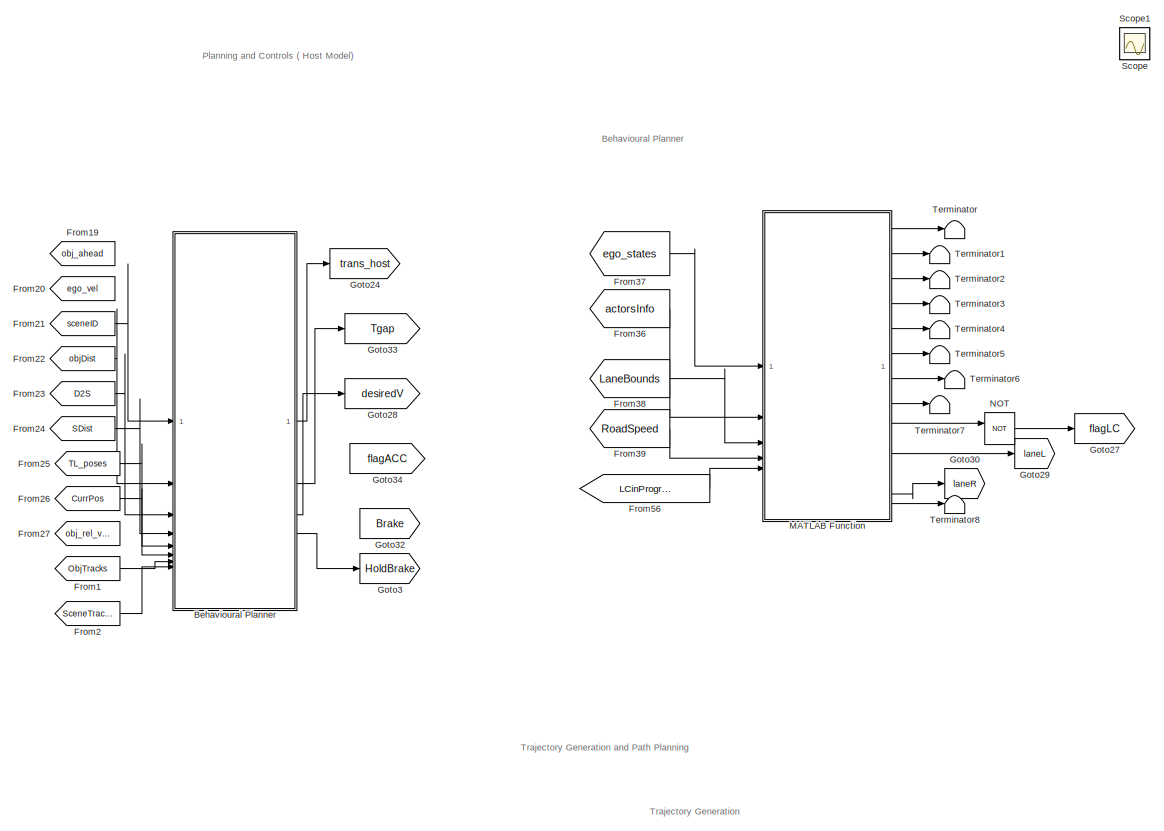
[diagram: root canvas - part 1/5, top right region]
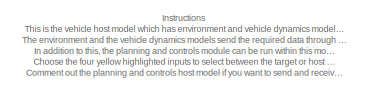
[diagram: root canvas - part 2/5, top left region]
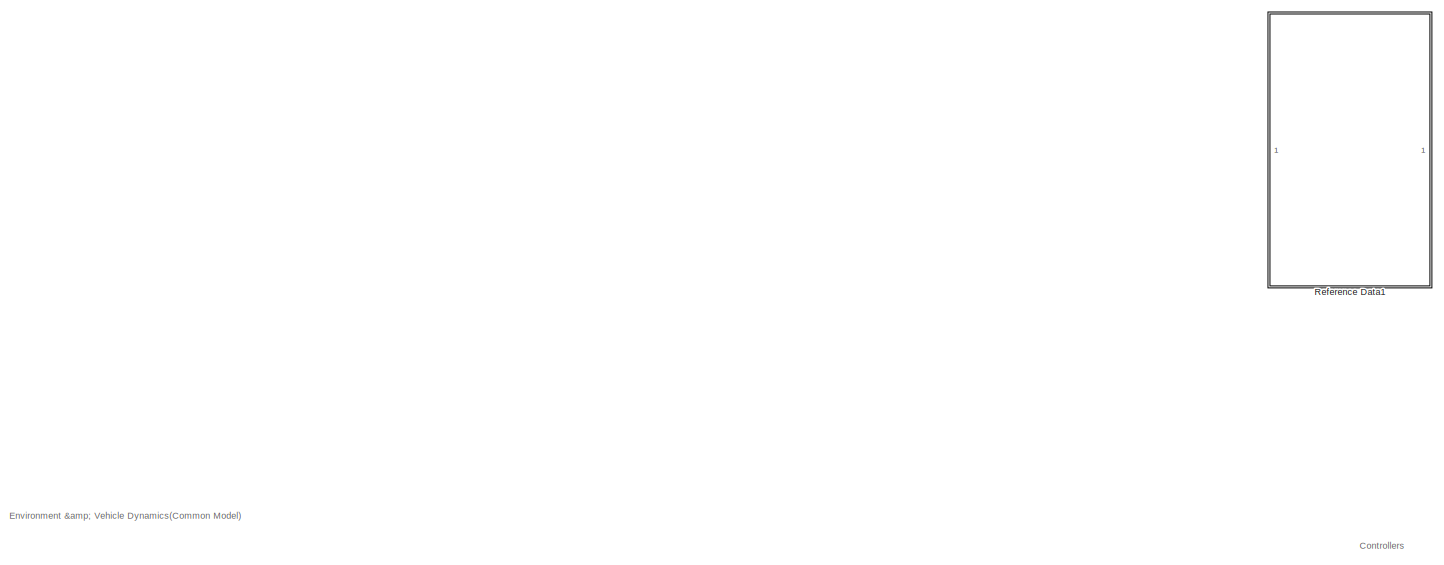
[diagram: root canvas - part 3/5, middle left region]
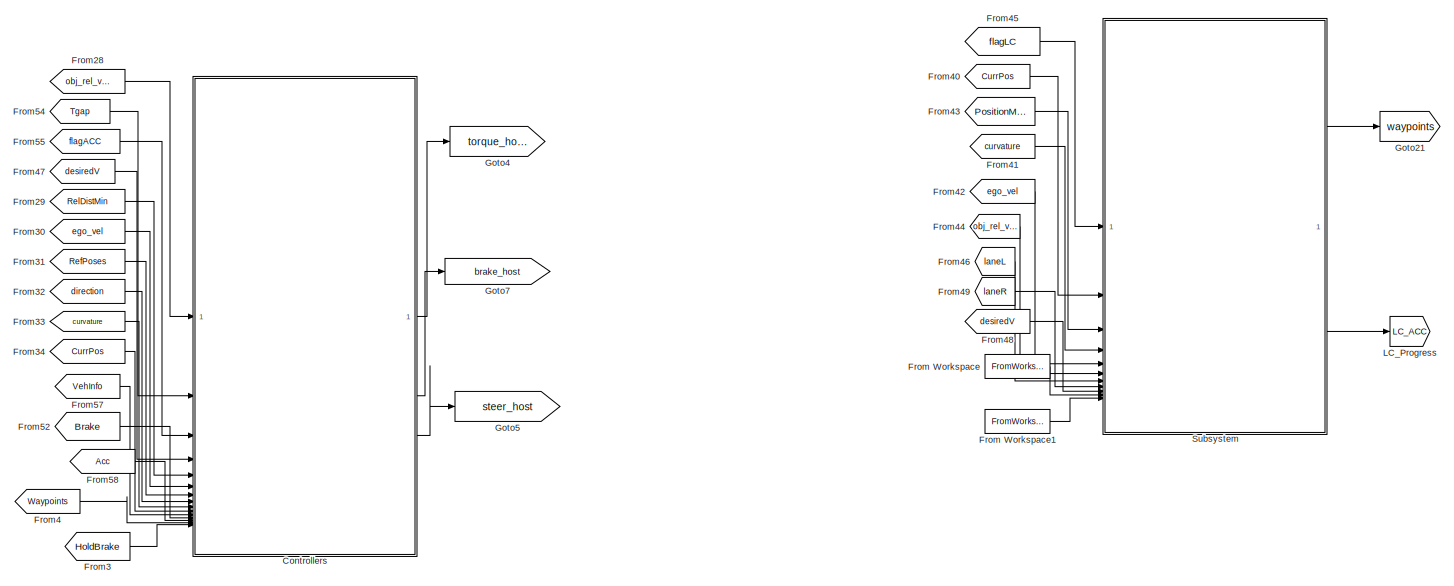
[diagram: root canvas - part 4/5, bottom right region]
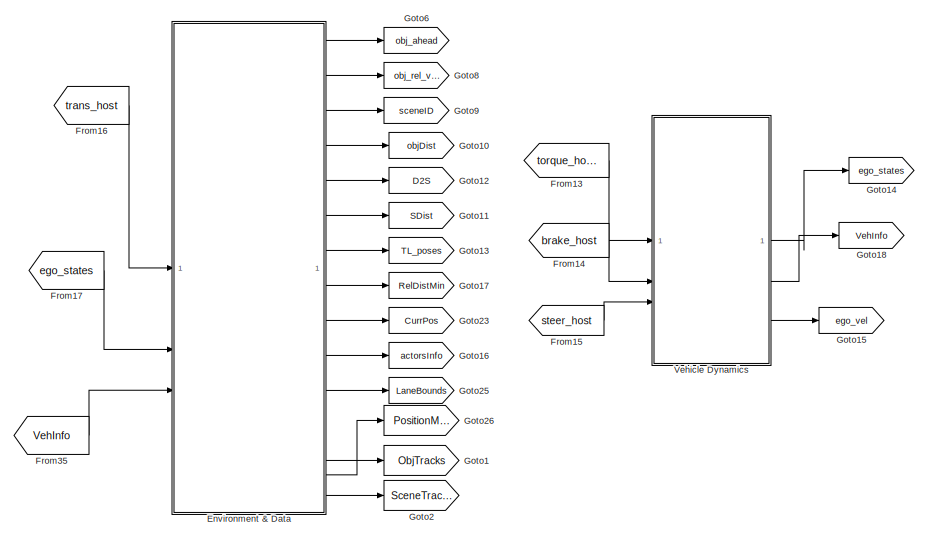
[diagram: root canvas - part 5/5, bottom left region]
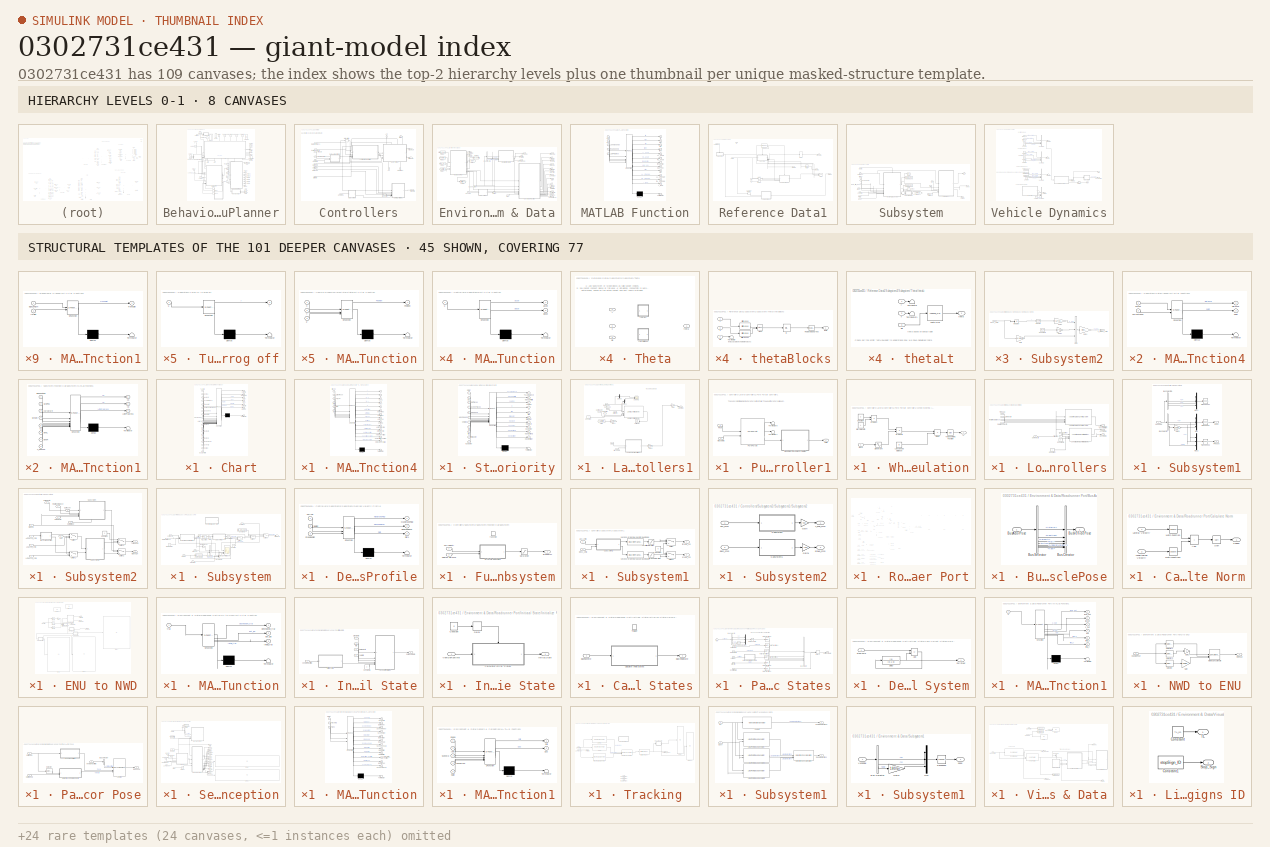
[diagram: thumbnail index - top-2 hierarchy levels (8 canvases) + 45 structural-template representatives of the remaining 101 canvases]
MODEL slx_0302731ce431
KIND model
CONFIG AbsTol = auto
CONFIG EnableMultiTasking = off
CONFIG FixedStep = auto
CONFIG MaxStep = auto
CONFIG MinStep = auto
CONFIG RelTol = 1e-3
CONFIG SampleTimeConstraint = Unconstrained
CONFIG SolverName = VariableStepAuto
CONFIG StartTime = 0.0
CONFIG StopTime = inf
WORKSPACE source: mxarray member
WORKSPACE finalint = 0
WORKSPACE firstWarning = 1
WORKSPACE originalScenarioChecksum = '114339432DE22364D47BB28FC96DC10C'
BLOCK [SubSystem] Behavioural Planner
BLOCK [Constant] Behavioural Planner/Approaching Speed
  NameLocation = top
  Value = 5
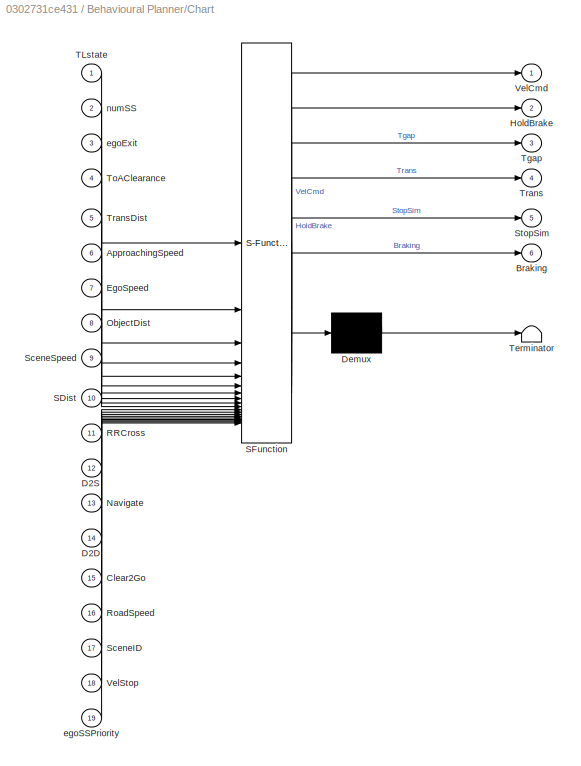
BLOCK [SubSystem] Behavioural Planner/Chart
  ErrorFcn = Stateflow.Translate.translate
  PermitHierarchicalResolution = ExplicitOnly
  PortSchema = {"entries":[{"content":{"sides":[{"content":{"connectorIds":["In17","In18","In19","In2","In5"]},"type":"ConnectorPlacement.EquallySpacedRectSide","uuid":"81aca70f-0947-49fb-b60a-be241e44193b"},{"content":{"connectorIds":["Out6","Out2","In1","Out1","Out3","Out4","Out5"],"side":"RIGHT"},"type":"ConnectorPlacement.EquallySpacedRectSide","uuid":"e7b9645e-3711-4964-ac9b-0199dd335e99"},{"content":{"conn...<+535ch>
  SFBlockType = Chart
  TreatAsAtomicUnit = on
BLOCK [Demux] Behavioural Planner/Chart/ Demux 
  Outputs = 1
BLOCK [S-Function] Behavioural Planner/Chart/ SFunction 
  EnableBusSupport = on
  FunctionName = sf_sfun
  PortCounts = [19 7]
  SFcnIsStateOwnerBlock = off
  SFunctionDeploymentMode = off
  Tag = Stateflow S-Function 21
BLOCK [Terminator] Behavioural Planner/Chart/ Terminator 
BLOCK [Inport] Behavioural Planner/Chart/ApproachingSpeed
  Port = 6
BLOCK [Outport] Behavioural Planner/Chart/Braking
  Port = 6
BLOCK [Inport] Behavioural Planner/Chart/Clear2Go
  Port = 15
BLOCK [Inport] Behavioural Planner/Chart/D2D
  Port = 14
BLOCK [Inport] Behavioural Planner/Chart/D2S
  Port = 12
BLOCK [Inport] Behavioural Planner/Chart/EgoSpeed
  Port = 7
BLOCK [Outport] Behavioural Planner/Chart/HoldBrake
  Port = 2
BLOCK [Inport] Behavioural Planner/Chart/Navigate
  Port = 13
BLOCK [Inport] Behavioural Planner/Chart/ObjectDist
  Port = 8
BLOCK [Inport] Behavioural Planner/Chart/RRCross
  Port = 11
BLOCK [Inport] Behavioural Planner/Chart/RoadSpeed
  Port = 16
BLOCK [Inport] Behavioural Planner/Chart/SDist
  Port = 10
BLOCK [Inport] Behavioural Planner/Chart/SceneID
  Port = 17
BLOCK [Inport] Behavioural Planner/Chart/SceneSpeed
  Port = 9
BLOCK [Outport] Behavioural Planner/Chart/StopSim
  Port = 5
BLOCK [Inport] Behavioural Planner/Chart/TLstate
BLOCK [Outport] Behavioural Planner/Chart/Tgap
  Port = 3
BLOCK [Inport] Behavioural Planner/Chart/ToAClearance
  Port = 4
BLOCK [Outport] Behavioural Planner/Chart/Trans
  Port = 4
BLOCK [Inport] Behavioural Planner/Chart/TransDist
  Port = 5
BLOCK [Outport] Behavioural Planner/Chart/VelCmd
BLOCK [Inport] Behavioural Planner/Chart/VelStop
  Port = 18
BLOCK [Inport] Behavioural Planner/Chart/egoExit
  Port = 3
BLOCK [Inport] Behavioural Planner/Chart/egoSSPriority
  Port = 19
BLOCK [Inport] Behavioural Planner/Chart/numSS
  Port = 2
BLOCK [ToggleSwitchBlock] Behavioural Planner/Clear 2 Go
BLOCK [Constant] Behavioural Planner/Clear2Go
  NameLocation = top
BLOCK [Clock] Behavioural Planner/Clock
BLOCK [Constant] Behavioural Planner/Constant
  Value = L
BLOCK [Constant] Behavioural Planner/Constant1
  Value = WB
BLOCK [Constant] Behavioural Planner/Constant2
  Value = 0.05
BLOCK [Constant] Behavioural Planner/Constant4
BLOCK [Inport] Behavioural Planner/CurrentPose
  Port = 6
BLOCK [Inport] Behavioural Planner/D2S
  NameLocation = right
  Port = 3
BLOCK [From] Behavioural Planner/From2
  GotoTag = Tracks
  TagVisibility = global
BLOCK [From] Behavioural Planner/From3
  GotoTag = Dest
  TagVisibility = global
BLOCK [From] Behavioural Planner/From4
  GotoTag = RRPose
  TagVisibility = global
BLOCK [From] Behavioural Planner/From5
  GotoTag = Speed
  TagVisibility = global
BLOCK [From] Behavioural Planner/From6
  GotoTag = RRPose
  NameLocation = top
  TagVisibility = global
BLOCK [From] Behavioural Planner/From7
  GotoTag = Sig
  NameLocation = top
  TagVisibility = global
BLOCK [Goto] Behavioural Planner/Goto1
  GotoTag = LeftTurnInput
  TagVisibility = global
BLOCK [Outport] Behavioural Planner/HoldBrake
  Port = 4
BLOCK [Constant] Behavioural Planner/Intersection Dist
  Value = 25
BLOCK [SubSystem] Behavioural Planner/MATLAB Function1
  ErrorFcn = Stateflow.Translate.translate
  LibrarySourceBlock = simulink/User-Defined\nFunctions/MATLAB Function
  PermitHierarchicalResolution = ExplicitOnly
  SFBlockType = MATLAB Function
  TreatAsAtomicUnit = on
BLOCK [Demux] Behavioural Planner/MATLAB Function1/ Demux 
  Outputs = 1
BLOCK [S-Function] Behavioural Planner/MATLAB Function1/ SFunction 
  EnableBusSupport = on
  FunctionName = sf_sfun
  PortCounts = [2 2]
  SFcnIsStateOwnerBlock = off
  SFunctionDeploymentMode = off
  Tag = Stateflow S-Function 25
BLOCK [Terminator] Behavioural Planner/MATLAB Function1/ Terminator 
BLOCK [Inport] Behavioural Planner/MATLAB Function1/EgoLength
BLOCK [Inport] Behavioural Planner/MATLAB Function1/IntDist
  Port = 2
BLOCK [Outport] Behavioural Planner/MATLAB Function1/TransDist
BLOCK [SubSystem] Behavioural Planner/MATLAB Function2
  ErrorFcn = Stateflow.Translate.translate
  LibrarySourceBlock = simulink/User-Defined\nFunctions/MATLAB Function
  NameLocation = top
  PermitHierarchicalResolution = ExplicitOnly
  SFBlockType = MATLAB Function
  TreatAsAtomicUnit = on
BLOCK [Demux] Behavioural Planner/MATLAB Function2/ Demux 
  Outputs = 1
BLOCK [S-Function] Behavioural Planner/MATLAB Function2/ SFunction 
  EnableBusSupport = on
  FunctionName = sf_sfun
  PortCounts = [2 2]
  SFcnIsStateOwnerBlock = off
  SFunctionDeploymentMode = off
  Tag = Stateflow S-Function 51
BLOCK [Terminator] Behavioural Planner/MATLAB Function2/ Terminator 
BLOCK [Inport] Behavioural Planner/MATLAB Function2/current_pos
  Port = 2
BLOCK [Inport] Behavioural Planner/MATLAB Function2/signal
BLOCK [Outport] Behavioural Planner/MATLAB Function2/y
BLOCK [SubSystem] Behavioural Planner/MATLAB Function3
  ErrorFcn = Stateflow.Translate.translate
  PermitHierarchicalResolution = ExplicitOnly
  SFBlockType = MATLAB Function
  TreatAsAtomicUnit = on
BLOCK [Demux] Behavioural Planner/MATLAB Function3/ Demux 
  Outputs = 1
BLOCK [S-Function] Behavioural Planner/MATLAB Function3/ SFunction 
  EnableBusSupport = on
  FunctionName = sf_sfun
  PortCounts = [2 2]
  SFcnIsStateOwnerBlock = off
  SFunctionDeploymentMode = off
  Tag = Stateflow S-Function 20
BLOCK [Terminator] Behavioural Planner/MATLAB Function3/ Terminator 
BLOCK [Inport] Behavioural Planner/MATLAB Function3/CurrentPose
  Port = 2
BLOCK [Outport] Behavioural Planner/MATLAB Function3/D2D
BLOCK [Inport] Behavioural Planner/MATLAB Function3/Dest
BLOCK [SubSystem] Behavioural Planner/MATLAB Function4
  ErrorFcn = Stateflow.Translate.translate
  LibrarySourceBlock = simulink/User-Defined\nFunctions/MATLAB Function
  PermitHierarchicalResolution = ExplicitOnly
  SFBlockType = MATLAB Function
  TreatAsAtomicUnit = on
BLOCK [Demux] Behavioural Planner/MATLAB Function4/ Demux 
  Outputs = 1
BLOCK [S-Function] Behavioural Planner/MATLAB Function4/ SFunction 
  EnableBusSupport = on
  FunctionName = sf_sfun
  PortCounts = [6 15]
  SFcnIsStateOwnerBlock = off
  SFunctionDeploymentMode = off
  Tag = Stateflow S-Function 40
BLOCK [Terminator] Behavioural Planner/MATLAB Function4/ Terminator 
BLOCK [Inport] Behavioural Planner/MATLAB Function4/CurrentPose
  Port = 2
BLOCK [Inport] Behavioural Planner/MATLAB Function4/Go
  Port = 6
BLOCK [Outport] Behavioural Planner/MATLAB Function4/Te_e
  Port = 3
BLOCK [Outport] Behavioural Planner/MATLAB Function4/Te_l
  Port = 4
BLOCK [Inport] Behavioural Planner/MATLAB Function4/curr_vel
  Port = 3
BLOCK [Outport] Behavioural Planner/MATLAB Function4/entryPed
  Port = 8
BLOCK [Outport] Behavioural Planner/MATLAB Function4/entryProjected
  Port = 10
BLOCK [Outport] Behavioural Planner/MATLAB Function4/entryTimes
  Port = 6
BLOCK [Outport] Behavioural Planner/MATLAB Function4/exitPed
  Port = 9
BLOCK [Outport] Behavioural Planner/MATLAB Function4/exitProjected
  Port = 11
BLOCK [Outport] Behavioural Planner/MATLAB Function4/exitTimes
  Port = 7
BLOCK [Outport] Behavioural Planner/MATLAB Function4/g
  Port = 2
BLOCK [Outport] Behavioural Planner/MATLAB Function4/h
  Port = 5
BLOCK [Outport] Behavioural Planner/MATLAB Function4/pedestrianoverlap
  Port = 13
BLOCK [Outport] Behavioural Planner/MATLAB Function4/projectedoverlap
  Port = 14
BLOCK [Inport] Behavioural Planner/MATLAB Function4/state
  Port = 5
BLOCK [Inport] Behavioural Planner/MATLAB Function4/tracks
BLOCK [Inport] Behavioural Planner/MATLAB Function4/tsim
  Port = 4
BLOCK [Outport] Behavioural Planner/MATLAB Function4/vehicleoverlap
  Port = 12
BLOCK [Outport] Behavioural Planner/MATLAB Function4/y
BLOCK [Memory] Behavioural Planner/Memory
  NameLocation = top
BLOCK [Memory] Behavioural Planner/Memory1
  InitialCondition = [0 0]
  NameLocation = top
BLOCK [Memory] Behavioural Planner/Memory2
  NameLocation = top
BLOCK [ToggleSwitchBlock] Behavioural Planner/Navigate
BLOCK [Constant] Behavioural Planner/Navigating Flag
  NameLocation = left
BLOCK [Inport] Behavioural Planner/ObjTracks
  Port = 7
BLOCK [Inport] Behavioural Planner/ObjectDist
  Port = 2
BLOCK [Constant] Behavioural Planner/RR Crossing
  NameLocation = top
  Value = 0
BLOCK [ToggleSwitchBlock] Behavioural Planner/RRCrossing
BLOCK [Constant] Behavioural Planner/RoadSpeed
  NameLocation = top
  Value = 10
BLOCK [Inport] Behavioural Planner/SDist
  NameLocation = right
  Port = 4
BLOCK [Constant] Behavioural Planner/Scene Speed
  NameLocation = top
  Value = 5
BLOCK [Inport] Behavioural Planner/SceneID
BLOCK [Inport] Behavioural Planner/SceneTracks
  Port = 8
BLOCK [Stop] Behavioural Planner/Stop Simulation1
BLOCK [SubSystem] Behavioural Planner/StopSignPriority
  ErrorFcn = Stateflow.Translate.translate
  LibrarySourceBlock = simulink/User-Defined\nFunctions/MATLAB Function
  PermitHierarchicalResolution = ExplicitOnly
  SFBlockType = MATLAB Function
  TreatAsAtomicUnit = on
BLOCK [Demux] Behavioural Planner/StopSignPriority/ Demux 
  Outputs = 1
BLOCK [S-Function] Behavioural Planner/StopSignPriority/ SFunction 
  EnableBusSupport = on
  FunctionName = sf_sfun
  PortCounts = [11 11]
  SFcnIsStateOwnerBlock = off
  SFunctionDeploymentMode = off
  Tag = Stateflow S-Function 24
BLOCK [Terminator] Behavioural Planner/StopSignPriority/ Terminator 
BLOCK [Inport] Behavioural Planner/StopSignPriority/D2S
  Port = 2
BLOCK [Inport] Behavioural Planner/StopSignPriority/ObjTracks
  Port = 3
BLOCK [Inport] Behavioural Planner/StopSignPriority/SDist
BLOCK [Inport] Behavioural Planner/StopSignPriority/SceneTracks
  Port = 4
BLOCK [Outport] Behavioural Planner/StopSignPriority/ToAClearance
BLOCK [Inport] Behavioural Planner/StopSignPriority/VelStop
  Port = 7
BLOCK [Inport] Behavioural Planner/StopSignPriority/WB
  Port = 8
BLOCK [Outport] Behavioural Planner/StopSignPriority/d
  Port = 4
BLOCK [Outport] Behavioural Planner/StopSignPriority/egoEnter
  Port = 8
BLOCK [Inport] Behavioural Planner/StopSignPriority/egoEnter 
  Port = 11
BLOCK [Outport] Behavioural Planner/StopSignPriority/egoExit
  Port = 7
BLOCK [Outport] Behavioural Planner/StopSignPriority/egoExitang
  Port = 9
BLOCK [Outport] Behavioural Planner/StopSignPriority/egoExitdist
  Port = 10
BLOCK [Inport] Behavioural Planner/StopSignPriority/egoPose
  Port = 5
BLOCK [Outport] Behavioural Planner/StopSignPriority/egoSSPriority
  Port = 2
BLOCK [Inport] Behavioural Planner/StopSignPriority/egoSpeed
  Port = 6
BLOCK [Outport] Behavioural Planner/StopSignPriority/flag
  Port = 5
BLOCK [Inport] Behavioural Planner/StopSignPriority/flag 
  Port = 9
BLOCK [Outport] Behavioural Planner/StopSignPriority/midpoint
  Port = 6
BLOCK [Inport] Behavioural Planner/StopSignPriority/midpoint 
  Port = 10
BLOCK [Outport] Behavioural Planner/StopSignPriority/numSS
  Port = 3
BLOCK [Inport] Behavioural Planner/TLposes
  Port = 5
BLOCK [Terminator] Behavioural Planner/Terminator
BLOCK [Terminator] Behavioural Planner/Terminator1
BLOCK [Terminator] Behavioural Planner/Terminator2
BLOCK [Terminator] Behavioural Planner/Terminator3
BLOCK [Terminator] Behavioural Planner/Terminator4
BLOCK [Terminator] Behavioural Planner/Terminator5
BLOCK [Terminator] Behavioural Planner/Terminator6
BLOCK [Terminator] Behavioural Planner/Terminator7
BLOCK [Outport] Behavioural Planner/Tgap
  Port = 2
BLOCK [Outport] Behavioural Planner/Trans
BLOCK [Outport] Behavioural Planner/VelCmd
  Port = 3
BLOCK [SubSystem] Controllers
BLOCK [Inport] Controllers/ACC
  NameLocation = left
  Port = 3
BLOCK [Inport] Controllers/Acc
  NameLocation = right
  Port = 13
BLOCK [Inport] Controllers/Brake
  Port = 12
BLOCK [Outport] Controllers/BrakeCm
  Port = 2
BLOCK [Inport] Controllers/CurrVelocity
  Port = 6
BLOCK [Inport] Controllers/Curvature
  Port = 9
BLOCK [Inport] Controllers/Direction
  Port = 8
BLOCK [Inport] Controllers/HoldBrake
  NameLocation = right
  Port = 15
BLOCK [SubSystem] Controllers/Lateral Controllers1
BLOCK [Constant] Controllers/Lateral Controllers1/Constant
  Commented = on
BLOCK [Inport] Controllers/Lateral Controllers1/CurrPoses
  Port = 2
BLOCK [Inport] Controllers/Lateral Controllers1/CurrVelocity
BLOCK [Inport] Controllers/Lateral Controllers1/Curvature
  Port = 5
BLOCK [Demux] Controllers/Lateral Controllers1/Demux
  Commented = on
  Outputs = 3
BLOCK [Demux] Controllers/Lateral Controllers1/Demux1
  Commented = on
  Outputs = 3
BLOCK [Inport] Controllers/Lateral Controllers1/Direction
  Port = 4
BLOCK [From] Controllers/Lateral Controllers1/From
  Commented = on
  GotoTag = yawrate
  IconDisplay = Signal name
  TagVisibility = global
BLOCK [Gain] Controllers/Lateral Controllers1/Gain
  Gain = 1/STEER_RATIO
BLOCK [Gain] Controllers/Lateral Controllers1/Gain1
  Commented = on
  Gain = 180/pi
BLOCK [Gain] Controllers/Lateral Controllers1/Gain2
  Gain = 180/pi
BLOCK [Reference] Controllers/Lateral Controllers1/Lateral Controller Stanley  REF=drivingvehiclecontroller/Lateral Controller Stanley
  Commented = on
  SourceBlock = drivingvehiclecontroller/Lateral Controller Stanley
  SourceType = Lateral Controller Stanley
BLOCK [Inport] Controllers/Lateral Controllers1/Pose
  Port = 7
BLOCK [SubSystem] Controllers/Lateral Controllers1/Pure Pursuit Controller1
BLOCK [Inport] Controllers/Lateral Controllers1/Pure Pursuit Controller1/Pose
BLOCK [Reference] Controllers/Lateral Controllers1/Pure Pursuit Controller1/Pure Pursuit  REF=robotalgslib/Pure Pursuit
  SourceBlock = robotalgslib/Pure Pursuit
  SourceType = nav.slalgs.internal.PurePursuit
BLOCK [Terminator] Controllers/Lateral Controllers1/Pure Pursuit Controller1/Terminator6
BLOCK [Terminator] Controllers/Lateral Controllers1/Pure Pursuit Controller1/Terminator7
BLOCK [Inport] Controllers/Lateral Controllers1/Pure Pursuit Controller1/Waypoints
  Port = 2
BLOCK [SubSystem] Controllers/Lateral Controllers1/Pure Pursuit Controller1/Wheel Steering Angle Formulation
BLOCK [Outport] Controllers/Lateral Controllers1/Pure Pursuit Controller1/Wheel Steering Angle Formulation/Al
BLOCK [Constant] Controllers/Lateral Controllers1/Pure Pursuit Controller1/Wheel Steering Angle Formulation/Bicycle length
  Value = L
BLOCK [Constant] Controllers/Lateral Controllers1/Pure Pursuit Controller1/Wheel Steering Angle Formulation/Constant
  Value = 2
BLOCK [Product] Controllers/Lateral Controllers1/Pure Pursuit Controller1/Wheel Steering Angle Formulation/Divide
  Inputs = */
BLOCK [Constant] Controllers/Lateral Controllers1/Pure Pursuit Controller1/Wheel Steering Angle Formulation/Lookahead distance
  Value = ld
BLOCK [Product] Controllers/Lateral Controllers1/Pure Pursuit Controller1/Wheel Steering Angle Formulation/Product
BLOCK [Product] Controllers/Lateral Controllers1/Pure Pursuit Controller1/Wheel Steering Angle Formulation/Product1
BLOCK [Sin] Controllers/Lateral Controllers1/Pure Pursuit Controller1/Wheel Steering Angle Formulation/Sine Wave
  SampleTime = 0
  TimeSource = Use external signal
BLOCK [Trigonometry] Controllers/Lateral Controllers1/Pure Pursuit Controller1/Wheel Steering Angle Formulation/Trigonometric Function
  Operator = atan
BLOCK [Inport] Controllers/Lateral Controllers1/Pure Pursuit Controller1/Wheel Steering Angle Formulation/alpha
  NameLocation = top
BLOCK [Outport] Controllers/Lateral Controllers1/Pure Pursuit Controller1/delta
BLOCK [Inport] Controllers/Lateral Controllers1/RefPoses
  Port = 3
BLOCK [Scope] Controllers/Lateral Controllers1/Scope2
  Commented = on
  Floating = off
  NumInputPorts = 2
  ScopeSpecificationString = Simulink.scopes.TimeScopeBlockCfg('CurrentConfiguration', extmgr.ConfigurationSet(extmgr.Configuration('Core','General UI',true),extmgr.Configuration('Core','Source UI',true),extmgr.Configuration('Sources','WiredSimulink',true,'DataLoggingVariableName','ScopeData1'),extmgr.Configuration('Visuals','Time Domain',true,'SerializedDisplays',{struct('MinYLimReal','-14.58282','MaxYLimReal','-5.65284','YL...<+1435ch>
BLOCK [UnitDelay] Controllers/Lateral Controllers1/Unit Delay
  Commented = on
  HasFrameUpgradeWarning = on
  NameLocation = top
  SampleTime = -1
BLOCK [Inport] Controllers/Lateral Controllers1/Waypoints
  Port = 6
BLOCK [Outport] Controllers/Lateral Controllers1/steerCmd
BLOCK [SubSystem] Controllers/Longitudinal Controllers
BLOCK [Outport] Controllers/Longitudinal Controllers/AccelCmd
  Port = 2
BLOCK [Reference] Controllers/Longitudinal Controllers/Adaptive Cruise Control System  REF=mpcadaslib/Adaptive Cruise Control System
  SourceBlock = mpcadaslib/Adaptive Cruise Control System
  SourceType = Adaptive cruise control (ACC) system
BLOCK [Constant] Controllers/Longitudinal Controllers/Constant
BLOCK [Constant] Controllers/Longitudinal Controllers/Constant3
  Value = 0
BLOCK [Inport] Controllers/Longitudinal Controllers/Curr Velocity
  NameLocation = top
BLOCK [Inport] Controllers/Longitudinal Controllers/CurrVel
  Port = 6
BLOCK [Outport] Controllers/Longitudinal Controllers/DecelCmd
  Port = 3
BLOCK [Inport] Controllers/Longitudinal Controllers/Direction
  Port = 7
BLOCK [Reference] Controllers/Longitudinal Controllers/Longitudinal Controller Stanley  REF=drivingvehiclecontroller/Longitudinal Controller Stanley
  SourceBlock = drivingvehiclecontroller/Longitudinal Controller Stanley
  SourceType = Longitudinal Controller Stanley
BLOCK [Outport] Controllers/Longitudinal Controllers/Longitudinal acceleration
BLOCK [Inport] Controllers/Longitudinal Controllers/Relative distance
  Port = 3
BLOCK [Inport] Controllers/Longitudinal Controllers/Relative velocity
  Port = 2
BLOCK [Inport] Controllers/Longitudinal Controllers/Set velocity
  Port = 5
BLOCK [Inport] Controllers/Longitudinal Controllers/Time gap
  Port = 4
BLOCK [SubSystem] Controllers/MATLAB Function2
  ErrorFcn = Stateflow.Translate.translate
  PermitHierarchicalResolution = ExplicitOnly
  SFBlockType = MATLAB Function
  TreatAsAtomicUnit = on
BLOCK [Demux] Controllers/MATLAB Function2/ Demux 
  Outputs = 1
BLOCK [S-Function] Controllers/MATLAB Function2/ SFunction 
  EnableBusSupport = on
  FunctionName = sf_sfun
  PortCounts = [2 2]
  SFcnIsStateOwnerBlock = off
  SFunctionDeploymentMode = off
  Tag = Stateflow S-Function 11
BLOCK [Terminator] Controllers/MATLAB Function2/ Terminator 
BLOCK [Outport] Controllers/MATLAB Function2/RefVelCmd
BLOCK [Inport] Controllers/MATLAB Function2/curvature
  Port = 2
BLOCK [Inport] Controllers/MATLAB Function2/v
BLOCK [RateLimiter] Controllers/Rate Limiter
  Commented = through
  RisingSlewLimit = 2
  SampleTimeMode = inherited
BLOCK [Inport] Controllers/RefPoses
  Port = 7
BLOCK [Inport] Controllers/Relative distance
  Port = 5
BLOCK [Inport] Controllers/Relative velocity
BLOCK [Outport] Controllers/SteerCmd
  Port = 3
BLOCK [SubSystem] Controllers/Subsystem1
  NameLocation = top
BLOCK [BusSelector] Controllers/Subsystem1/Bus Selector
  OutputSignals = InertFrm.Cg.Disp.X,InertFrm.Cg.Disp.Y,InertFrm.Cg.Ang.psi
BLOCK [BusSelector] Controllers/Subsystem1/Bus Selector1
  Commented = on
  OutputSignals = InertFrm.Cg.Disp.X,InertFrm.Cg.Disp.Y,InertFrm.Cg.Disp.Z
BLOCK [Gain] Controllers/Subsystem1/Gain1
  Gain = 180/pi
BLOCK [Mux] Controllers/Subsystem1/Mux
  DisplayOption = bar
  Inputs = 3
BLOCK [Mux] Controllers/Subsystem1/Mux1
  Commented = on
  DisplayOption = bar
  Inputs = 3
BLOCK [Mux] Controllers/Subsystem1/Mux2
  DisplayOption = bar
  Inputs = 3
BLOCK [Outport] Controllers/Subsystem1/PPpose
  Port = 2
BLOCK [Math] Controllers/Subsystem1/Transpose
  Operator = transpose
  SignedPower = on
BLOCK [Math] Controllers/Subsystem1/Transpose1
  Commented = on
  Operator = transpose
  SignedPower = on
BLOCK [Math] Controllers/Subsystem1/Transpose2
  Operator = transpose
  SignedPower = on
BLOCK [Inport] Controllers/Subsystem1/VehFdbk
BLOCK [Outport] Controllers/Subsystem1/pose
BLOCK [SubSystem] Controllers/Subsystem2
  PortSchema = {"entries":[{"content":{"sides":[{"content":{"connectorIds":["In1","In2","In3","In4"]},"type":"ConnectorPlacement.EquallySpacedRectSide","uuid":"a23b1a10-3bcb-40a0-900c-c9a3f160b173"},{"content":{"connectorIds":["Out1","Out2"],"side":"RIGHT"},"type":"ConnectorPlacement.EquallySpacedRectSide","uuid":"88840b66-912f-4184-aeec-297642319416"},{"content":{"connectorIds":["In5","In6","In7","In8"],"side":...<+444ch>
BLOCK [Inport] Controllers/Subsystem2/ACC
  Port = 5
BLOCK [Inport] Controllers/Subsystem2/ACCaccel_cmd
BLOCK [Outport] Controllers/Subsystem2/BrakeCm
  Port = 2
BLOCK [Inport] Controllers/Subsystem2/Braking
  Port = 8
BLOCK [Constant] Controllers/Subsystem2/Constant
  Value = 0
BLOCK [Inport] Controllers/Subsystem2/CurrAccel
  Port = 9
BLOCK [Inport] Controllers/Subsystem2/CurrVelocity
  Port = 6
BLOCK [Inport] Controllers/Subsystem2/HoldBrake
  Port = 10
BLOCK [Inport] Controllers/Subsystem2/LCaccel_cmd
  Port = 2
BLOCK [Inport] Controllers/Subsystem2/LCdeccel_cmd
  Port = 3
BLOCK [SubSystem] Controllers/Subsystem2/MATLAB Function
  ErrorFcn = Stateflow.Translate.translate
  PermitHierarchicalResolution = ExplicitOnly
  SFBlockType = MATLAB Function
  TreatAsAtomicUnit = on
BLOCK [Demux] Controllers/Subsystem2/MATLAB Function/ Demux 
  Outputs = 1
BLOCK [S-Function] Controllers/Subsystem2/MATLAB Function/ SFunction 
  EnableBusSupport = on
  FunctionName = sf_sfun
  PortCounts = [1 3]
  SFcnIsStateOwnerBlock = off
  SFunctionDeploymentMode = off
  Tag = Stateflow S-Function 43
BLOCK [Terminator] Controllers/Subsystem2/MATLAB Function/ Terminator 
BLOCK [Outport] Controllers/Subsystem2/MATLAB Function/accel
  VectorParamsAs1DForOutWhenUnconnected = off
BLOCK [Outport] Controllers/Subsystem2/MATLAB Function/decel
  Port = 2
BLOCK [Inport] Controllers/Subsystem2/MATLAB Function/u
BLOCK [Inport] Controllers/Subsystem2/Relative Distance
  Port = 7
BLOCK [Inport] Controllers/Subsystem2/Set Velocity
  Port = 4
BLOCK [SubSystem] Controllers/Subsystem2/Subsystem
  PortSchema = {"entries":[{"content":{"sides":[{"content":{"connectorIds":["In1","In2","In3","In4","In5"]},"type":"ConnectorPlacement.EquallySpacedRectSide","uuid":"6c9a9437-5364-4180-a50b-e6d6b79cdde7"},{"content":{"connectorIds":["Out1"],"side":"RIGHT"},"type":"ConnectorPlacement.EquallySpacedRectSide","uuid":"0c9d90ab-7b55-4efa-a55f-4d6656a67f49"},{"content":{"side":"TOP"},"type":"ConnectorPlacement.EquallyS...<+395ch>
BLOCK [Saturate] Controllers/Subsystem2/Subsystem/Brake Saturation
  LowerLimit = MIN_BRAKE
  UpperLimit = MAX_BRAKE
BLOCK [Outport] Controllers/Subsystem2/Subsystem/BrakeCm
BLOCK [Inport] Controllers/Subsystem2/Subsystem/Braking 
  Port = 4
BLOCK [Scope] Controllers/Subsystem2/Subsystem/Braking Performance
  Floating = off
  NumInputPorts = 4
  ScopeSpecificationString = Simulink.scopes.TimeScopeBlockCfg('CurrentConfiguration', extmgr.ConfigurationSet(extmgr.Configuration('Core','General UI',true,'FigureColor',[0 0 0]),extmgr.Configuration('Core','Source UI',true),extmgr.Configuration('Sources','WiredSimulink',true,'DataLoggingVariableName','ScopeData1'),extmgr.Configuration('Visuals','Time Domain',true,'SerializedDisplays',{struct('MinYLimReal','-3411.96035','Max...<+4479ch>
BLOCK [BusCreator] Controllers/Subsystem2/Subsystem/Bus Creator
  DisplayOption = bar
  InheritFromInputs = on
  Inputs = 3
BLOCK [BusCreator] Controllers/Subsystem2/Subsystem/Bus Creator1
  DisplayOption = bar
  InheritFromInputs = on
  Inputs = 3
BLOCK [DataTypeConversion] Controllers/Subsystem2/Subsystem/Cast To Double
  OutDataTypeStr = double
  RndMeth = Floor
  SaturateOnIntegerOverflow = off
BLOCK [Constant] Controllers/Subsystem2/Subsystem/Constant
  Value = 0
BLOCK [Constant] Controllers/Subsystem2/Subsystem/Constant1
  Value = MIN_BRAKE/20
BLOCK [Inport] Controllers/Subsystem2/Subsystem/CurrAccel
  Port = 3
BLOCK [Inport] Controllers/Subsystem2/Subsystem/CurrVelocity
BLOCK [Gain] Controllers/Subsystem2/Subsystem/Desired Decel
  Gain = -1
BLOCK [SubSystem] Controllers/Subsystem2/Subsystem/Desired Velocity Profile
  ErrorFcn = Stateflow.Translate.translate
  LibrarySourceBlock = simulink/User-Defined\nFunctions/MATLAB Function
  PermitHierarchicalResolution = ExplicitOnly
  SFBlockType = MATLAB Function
  TreatAsAtomicUnit = on
BLOCK [Demux] Controllers/Subsystem2/Subsystem/Desired Velocity Profile/ Demux 
  Outputs = 1
BLOCK [S-Function] Controllers/Subsystem2/Subsystem/Desired Velocity Profile/ SFunction 
  EnableBusSupport = on
  FunctionName = sf_sfun
  PortCounts = [3 4]
  SFcnIsStateOwnerBlock = off
  SFunctionDeploymentMode = off
  Tag = Stateflow S-Function 44
BLOCK [Terminator] Controllers/Subsystem2/Subsystem/Desired Velocity Profile/ Terminator 
BLOCK [Inport] Controllers/Subsystem2/Subsystem/Desired Velocity Profile/CurrVel
BLOCK [Outport] Controllers/Subsystem2/Subsystem/Desired Velocity Profile/DesiredDecel
  Port = 2
BLOCK [Outport] Controllers/Subsystem2/Subsystem/Desired Velocity Profile/Dist1
  Port = 3
BLOCK [Outport] Controllers/Subsystem2/Subsystem/Desired Velocity Profile/MaxBrakeFlag
BLOCK [Inport] Controllers/Subsystem2/Subsystem/Desired Velocity Profile/RelDist
  Port = 2
BLOCK [Inport] Controllers/Subsystem2/Subsystem/Desired Velocity Profile/StoppingDist
  Port = 3
BLOCK [SubSystem] Controllers/Subsystem2/Subsystem/Function-Call Subsystem
  Commented = on
  TreatAsAtomicUnit = on
BLOCK [Outport] Controllers/Subsystem2/Subsystem/Function-Call Subsystem/BrakingAcc
BLOCK [Inport] Controllers/Subsystem2/Subsystem/Function-Call Subsystem/CurrVelocity
BLOCK [SubSystem] Controllers/Subsystem2/Subsystem/Function-Call Subsystem/MATLAB Function1
  ErrorFcn = Stateflow.Translate.translate
  LibrarySourceBlock = simulink/User-Defined\nFunctions/MATLAB Function
  PermitHierarchicalResolution = ExplicitOnly
  SFBlockType = MATLAB Function
  TreatAsAtomicUnit = on
BLOCK [Demux] Controllers/Subsystem2/Subsystem/Function-Call Subsystem/MATLAB Function1/ Demux 
  Outputs = 1
BLOCK [S-Function] Controllers/Subsystem2/Subsystem/Function-Call Subsystem/MATLAB Function1/ SFunction 
  EnableBusSupport = on
  FunctionName = sf_sfun
  PortCounts = [2 2]
  SFcnIsStateOwnerBlock = off
  SFunctionDeploymentMode = off
  Tag = Stateflow S-Function 45
BLOCK [Terminator] Controllers/Subsystem2/Subsystem/Function-Call Subsystem/MATLAB Function1/ Terminator 
BLOCK [Outport] Controllers/Subsystem2/Subsystem/Function-Call Subsystem/MATLAB Function1/BrakingAcc
BLOCK [Inport] Controllers/Subsystem2/Subsystem/Function-Call Subsystem/MATLAB Function1/RelDist
  Port = 2
BLOCK [Inport] Controllers/Subsystem2/Subsystem/Function-Call Subsystem/MATLAB Function1/Vel
BLOCK [Inport] Controllers/Subsystem2/Subsystem/Function-Call Subsystem/Relative Distance
  Port = 2
BLOCK [Saturate] Controllers/Subsystem2/Subsystem/Function-Call Subsystem/Saturation
  LowerLimit = 0
  UpperLimit = 0.3*9.8
BLOCK [TriggerPort] Controllers/Subsystem2/Subsystem/Function-Call Subsystem/function
  ShowOutputPort = on
  StatesWhenEnabling = held
  VariantControl = (inherit)
BLOCK [Gain] Controllers/Subsystem2/Subsystem/Gain
  Gain = -400
BLOCK [Inport] Controllers/Subsystem2/Subsystem/HoldBrake
  Port = 6
BLOCK [Reference] Controllers/Subsystem2/Subsystem/PID Controller  REF=slpidlib/PID Controller
  LibrarySourceBlock = simulink/Continuous/PID Controller
  SourceBlock = slpidlib/PID Controller
  SourceType = PID 1dof
BLOCK [Inport] Controllers/Subsystem2/Subsystem/Relative Distance
  Port = 2
BLOCK [Inport] Controllers/Subsystem2/Subsystem/Set Velocity
  Port = 5
BLOCK [Constant] Controllers/Subsystem2/Subsystem/StoppingDist
  Value = 2
BLOCK [SubSystem] Controllers/Subsystem2/Subsystem/Subsystem2
  Commented = through
BLOCK [Constant] Controllers/Subsystem2/Subsystem/Subsystem2/Constant1
  Value = MCAR
BLOCK [Gain] Controllers/Subsystem2/Subsystem/Subsystem2/Gain
  Gain = 1.1*MCAR
BLOCK [Gain] Controllers/Subsystem2/Subsystem/Subsystem2/Gain1
  Gain = 1.2*0.3*2/2
BLOCK [Gain] Controllers/Subsystem2/Subsystem/Subsystem2/Gain2
  Gain = 0.7*9.81
BLOCK [Gain] Controllers/Subsystem2/Subsystem/Subsystem2/Gain4
  Gain = -R/(7.05*0.8)
BLOCK [Integrator] Controllers/Subsystem2/Subsystem/Subsystem2/Integrator
  ExternalReset = falling
BLOCK [Math] Controllers/Subsystem2/Subsystem/Subsystem2/Square
  Operator = square
BLOCK [Sum] Controllers/Subsystem2/Subsystem/Subsystem2/Sum
  IconShape = rectangular
  Inputs = +++
BLOCK [Outport] Controllers/Subsystem2/Subsystem/Subsystem2/T_brake_cmd
BLOCK [Inport] Controllers/Subsystem2/Subsystem/Subsystem2/decc_cmd
BLOCK [Sum] Controllers/Subsystem2/Subsystem/Sum
  Inputs = |++
BLOCK [Switch] Controllers/Subsystem2/Subsystem/Switch
  Criteria = u2 > Threshold
  InputSameDT = off
  SaturateOnIntegerOverflow = off
BLOCK [Switch] Controllers/Subsystem2/Subsystem/Switch1
  Criteria = u2 > Threshold
  InputSameDT = off
  NameLocation = top
  SaturateOnIntegerOverflow = off
BLOCK [Switch] Controllers/Subsystem2/Subsystem/Switch2
  Criteria = u2 > Threshold
  InputSameDT = off
  NameLocation = top
  SaturateOnIntegerOverflow = off
BLOCK [SubSystem] Controllers/Subsystem2/Subsystem1
BLOCK [Saturate] Controllers/Subsystem2/Subsystem1/Brake Saturation
  LowerLimit = MIN_BRAKE
  UpperLimit = MAX_BRAKE
BLOCK [Constant] Controllers/Subsystem2/Subsystem1/Constant
  Value = 0
BLOCK [SubSystem] Controllers/Subsystem2/Subsystem1/Subsystem2
BLOCK [Gain] Controllers/Subsystem2/Subsystem1/Subsystem2/Gain
  Gain = 400
BLOCK [Gain] Controllers/Subsystem2/Subsystem1/Subsystem2/Gain1
  Gain = -400
BLOCK [SubSystem] Controllers/Subsystem2/Subsystem1/Subsystem2/Subsystem
  Commented = through
BLOCK [Constant] Controllers/Subsystem2/Subsystem1/Subsystem2/Subsystem/Constant1
  Value = MCAR
BLOCK [Gain] Controllers/Subsystem2/Subsystem1/Subsystem2/Subsystem/Gain
  Gain = 1.1*MCAR
BLOCK [Gain] Controllers/Subsystem2/Subsystem1/Subsystem2/Subsystem/Gain1
  Gain = 1.2*0.3*2/2
BLOCK [Gain] Controllers/Subsystem2/Subsystem1/Subsystem2/Subsystem/Gain2
  Gain = 0.7*9.81
BLOCK [Gain] Controllers/Subsystem2/Subsystem1/Subsystem2/Subsystem/Gain4
  Gain = R/(7.05*0.8)
BLOCK [Integrator] Controllers/Subsystem2/Subsystem1/Subsystem2/Subsystem/Integrator
  ExternalReset = falling
BLOCK [Math] Controllers/Subsystem2/Subsystem1/Subsystem2/Subsystem/Square
  Operator = square
BLOCK [Sum] Controllers/Subsystem2/Subsystem1/Subsystem2/Subsystem/Sum
  IconShape = rectangular
  Inputs = +++
BLOCK [Outport] Controllers/Subsystem2/Subsystem1/Subsystem2/Subsystem/T_eng_cmd
BLOCK [Inport] Controllers/Subsystem2/Subsystem1/Subsystem2/Subsystem/acc_cmd
BLOCK [SubSystem] Controllers/Subsystem2/Subsystem1/Subsystem2/Subsystem1
  Commented = through
BLOCK [Constant] Controllers/Subsystem2/Subsystem1/Subsystem2/Subsystem1/Constant1
  Value = MCAR
BLOCK [Gain] Controllers/Subsystem2/Subsystem1/Subsystem2/Subsystem1/Gain
  Gain = 1.1*MCAR
BLOCK [Gain] Controllers/Subsystem2/Subsystem1/Subsystem2/Subsystem1/Gain1
  Gain = 1.2*0.3*2/2
BLOCK [Gain] Controllers/Subsystem2/Subsystem1/Subsystem2/Subsystem1/Gain2
  Gain = 0.7*9.81
BLOCK [Gain] Controllers/Subsystem2/Subsystem1/Subsystem2/Subsystem1/Gain4
  Gain = -R/(7.05*0.8)
BLOCK [Integrator] Controllers/Subsystem2/Subsystem1/Subsystem2/Subsystem1/Integrator
  ExternalReset = falling
BLOCK [Math] Controllers/Subsystem2/Subsystem1/Subsystem2/Subsystem1/Square
  Operator = square
BLOCK [Sum] Controllers/Subsystem2/Subsystem1/Subsystem2/Subsystem1/Sum
  IconShape = rectangular
  Inputs = +++
BLOCK [Outport] Controllers/Subsystem2/Subsystem1/Subsystem2/Subsystem1/T_brake_cmd
BLOCK [Inport] Controllers/Subsystem2/Subsystem1/Subsystem2/Subsystem1/decc_cmd
BLOCK [Outport] Controllers/Subsystem2/Subsystem1/Subsystem2/T_eng_cmd
BLOCK [Inport] Controllers/Subsystem2/Subsystem1/Subsystem2/acc_cmd
BLOCK [Outport] Controllers/Subsystem2/Subsystem1/Subsystem2/brake_cmd
  Port = 2
BLOCK [Inport] Controllers/Subsystem2/Subsystem1/Subsystem2/decc_cmd
  Port = 2
BLOCK [Switch] Controllers/Subsystem2/Subsystem1/Switch
  Criteria = u2 > Threshold
  InputSameDT = off
  SaturateOnIntegerOverflow = off
  Threshold = 500
BLOCK [Switch] Controllers/Subsystem2/Subsystem1/Switch1
  Criteria = u2 > Threshold
  InputSameDT = off
  SaturateOnIntegerOverflow = off
  Threshold = -500
BLOCK [Saturate] Controllers/Subsystem2/Subsystem1/Throttle Saturation
  LowerLimit = MIN_TORQUE
  UpperLimit = MAX_TORQUE
BLOCK [Inport] Controllers/Subsystem2/Subsystem1/acc_cmd
BLOCK [Outport] Controllers/Subsystem2/Subsystem1/brake_cm
  Port = 2
BLOCK [Inport] Controllers/Subsystem2/Subsystem1/decc_cmd
  Port = 2
BLOCK [DiscreteTransferFcn] Controllers/Subsystem2/Subsystem1/second-order low-pass brake model1
  Commented = through
  Denominator = NUMD_B
  InputPortMap = u0
  Numerator = DEND_B
  SampleTime = ts
BLOCK [DiscreteTransferFcn] Controllers/Subsystem2/Subsystem1/second-order low-pass torque model
  Commented = through
  Denominator = NUMD_T
  InputPortMap = u0
  Numerator = DEND_T
  SampleTime = ts
BLOCK [Outport] Controllers/Subsystem2/Subsystem1/torque_cm
BLOCK [Switch] Controllers/Subsystem2/Switch
  Criteria = u2 > Threshold
  InputSameDT = off
  SaturateOnIntegerOverflow = off
BLOCK [Switch] Controllers/Subsystem2/Switch1
  Criteria = u2 > Threshold
  InputSameDT = off
  SaturateOnIntegerOverflow = off
BLOCK [Switch] Controllers/Subsystem2/Switch2
  Criteria = u2 > Threshold
  InputSameDT = off
  SaturateOnIntegerOverflow = off
BLOCK [Switch] Controllers/Subsystem2/Switch3
  Criteria = u2 > Threshold
  InputSameDT = off
  SaturateOnIntegerOverflow = off
BLOCK [Outport] Controllers/Subsystem2/TorgueCm
BLOCK [Inport] Controllers/Time gap
  Port = 2
BLOCK [Outport] Controllers/TorgueCm
BLOCK [Inport] Controllers/VehFdbk
  Port = 11
BLOCK [Inport] Controllers/Waypoints
  Port = 14
BLOCK [Inport] Controllers/curr poses
  Port = 10
BLOCK [Inport] Controllers/velocity desired
  Port = 4
BLOCK [SubSystem] Environment & Data
BLOCK [BusSelector] Environment & Data/Bus Selector4
  Commented = on
  OutputSignals = Velocity,Acceleration,Position
BLOCK [Outport] Environment & Data/CurrPos
  Port = 9
BLOCK [Inport] Environment & Data/EgoVehStates
  Port = 2
BLOCK [From] Environment & Data/From57
  GotoTag = yawrate
  IconDisplay = Signal name
  TagVisibility = global
BLOCK [From] Environment & Data/From58
  GotoTag = VehInfo
  IconDisplay = Signal name
  TagVisibility = global
BLOCK [From] Environment & Data/From59
  GotoTag = steer_host
  IconDisplay = Signal name
  TagVisibility = global
BLOCK [From] Environment & Data/From60
  GotoTag = ego_vel
  TagVisibility = global
BLOCK [Goto] Environment & Data/Goto1
  GotoTag = Dest
  TagVisibility = global
BLOCK [Goto] Environment & Data/Goto2
  GotoTag = InitialPos
  TagVisibility = global
BLOCK [Goto] Environment & Data/Goto38
  GotoTag = Waypoints
  TagVisibility = global
BLOCK [Outport] Environment & Data/LaneBounds
  Port = 11
BLOCK [Outport] Environment & Data/ObjAhead
BLOCK [Outport] Environment & Data/ObjRelVel
  Port = 2
BLOCK [Outport] Environment & Data/ObjTracks
  Port = 13
BLOCK [Outport] Environment & Data/ObjectDist
  Port = 4
BLOCK [Outport] Environment & Data/PositionMIO
  Port = 12
BLOCK [Outport] Environment & Data/RelDistmin
  Port = 8
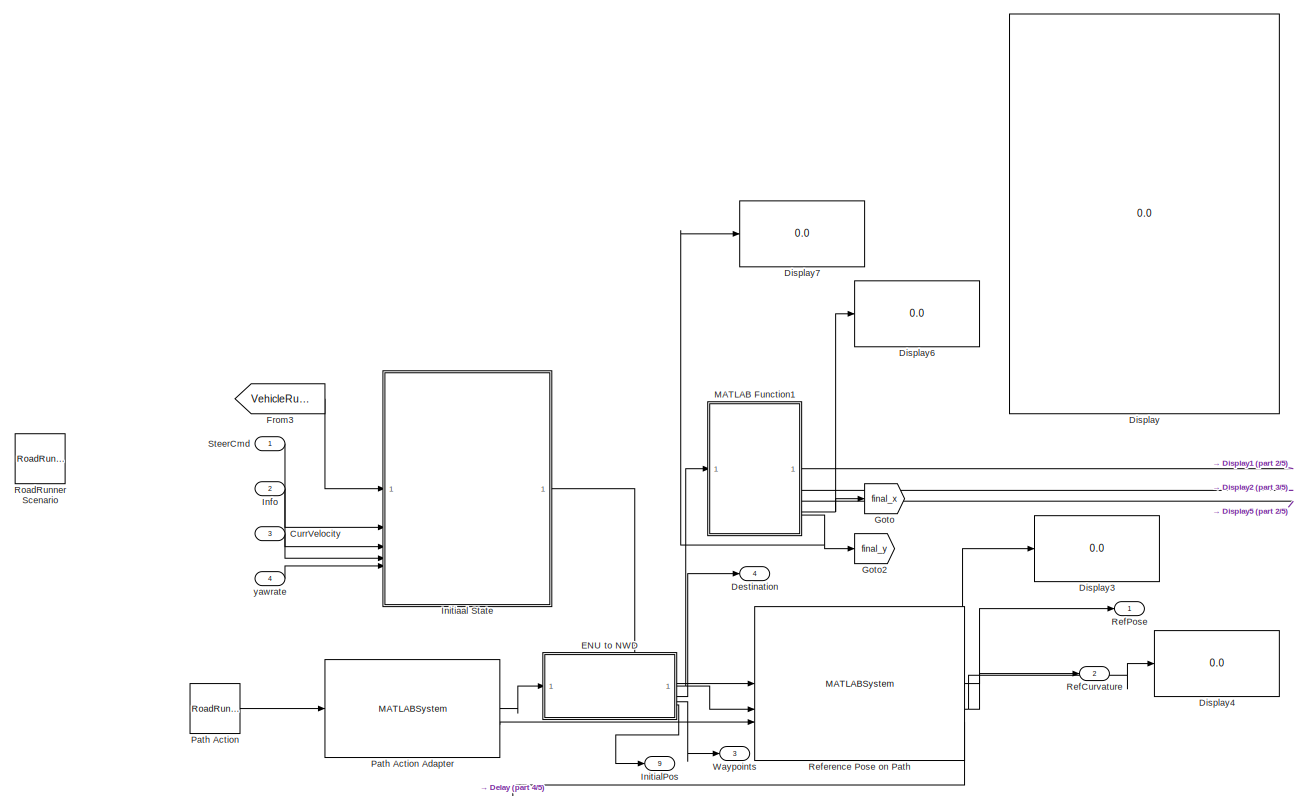
[diagram: Environment & Data/Roadrunner Port - part 1/5, top left region]
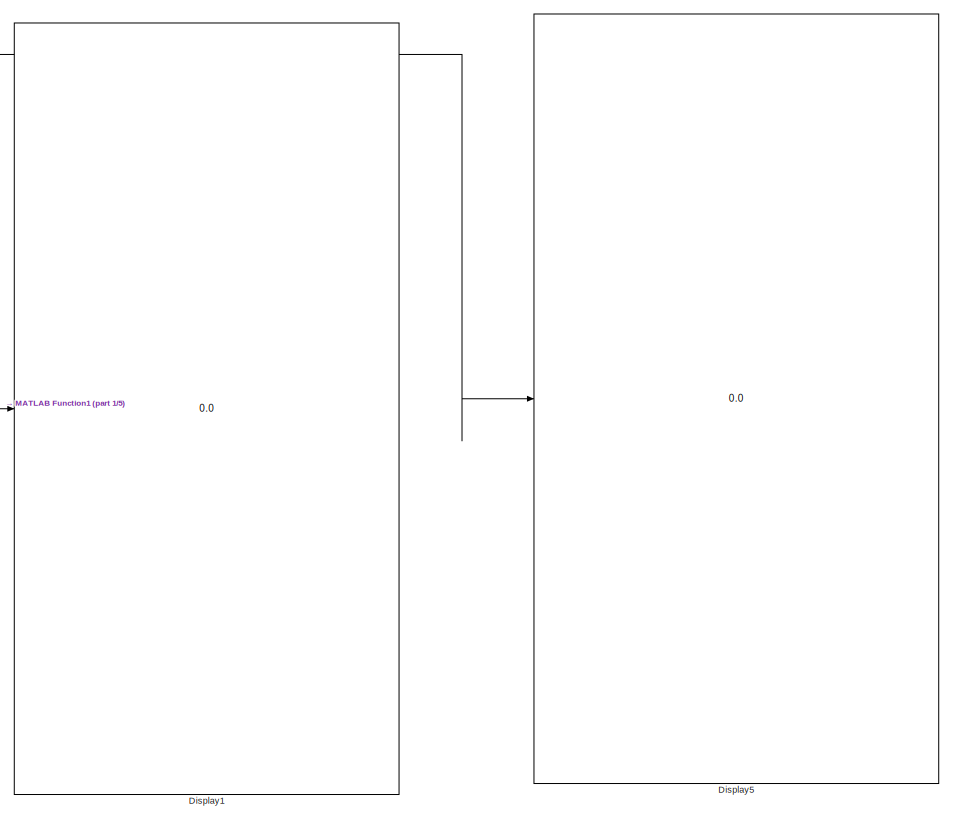
[diagram: Environment & Data/Roadrunner Port - part 2/5, top right region]
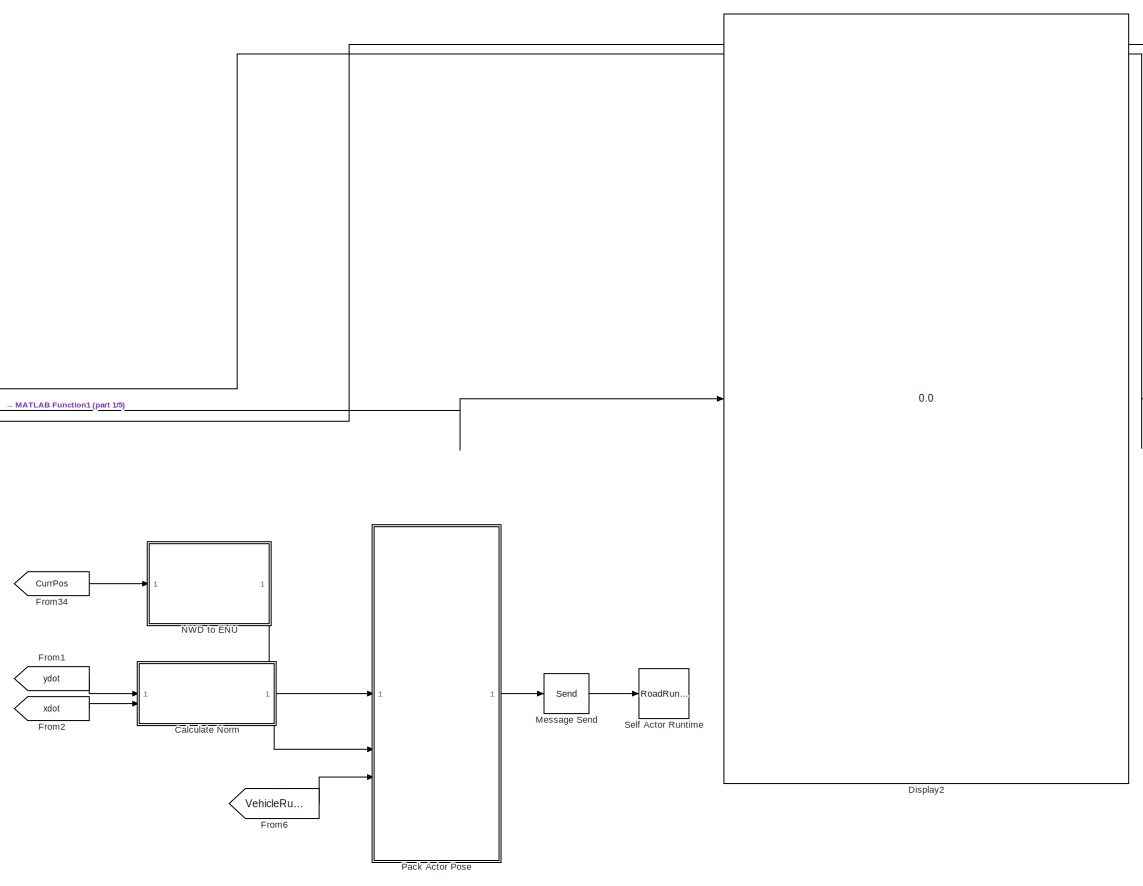
[diagram: Environment & Data/Roadrunner Port - part 3/5, top center region]
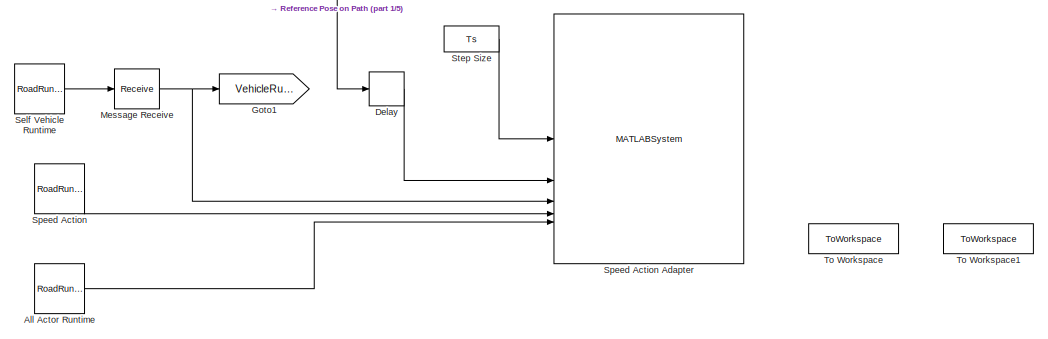
[diagram: Environment & Data/Roadrunner Port - part 4/5, middle left region]
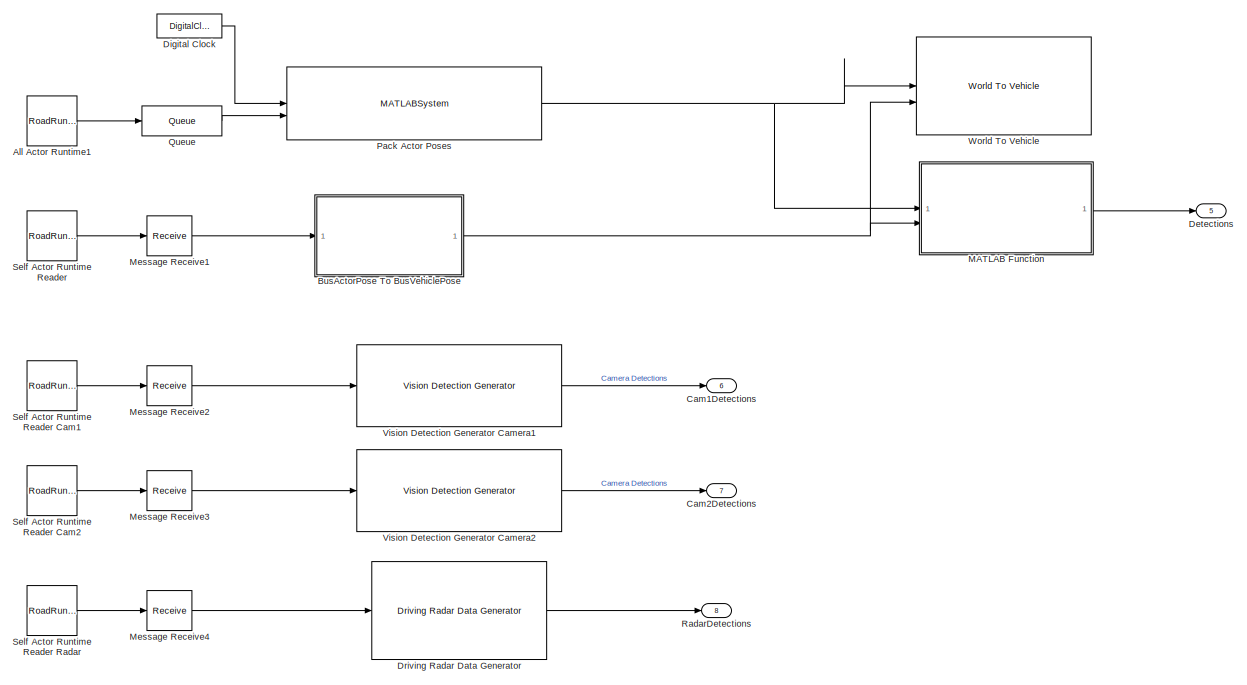
[diagram: Environment & Data/Roadrunner Port - part 5/5, bottom left region]
BLOCK [SubSystem] Environment & Data/Roadrunner Port
BLOCK [Reference] Environment & Data/Roadrunner Port/All Actor Runtime  REF=roadrunnerscenario/RoadRunner Scenario
Reader
  Commented = on
  SourceBlock = roadrunnerscenario/RoadRunner Scenario\nReader
BLOCK [Reference] Environment & Data/Roadrunner Port/All Actor Runtime1  REF=roadrunnerscenario/RoadRunner Scenario
Reader
  SourceBlock = roadrunnerscenario/RoadRunner Scenario\nReader
BLOCK [SubSystem] Environment & Data/Roadrunner Port/BusActorPose To BusVehiclePose
BLOCK [BusCreator] Environment & Data/Roadrunner Port/BusActorPose To BusVehiclePose/Bus Creator
  DisplayOption = bar
  InheritFromInputs = off
  Inputs = 7
  NonVirtualBus = on
  OutDataTypeStr = Bus: BusVehiclePose
BLOCK [BusSelector] Environment & Data/Roadrunner Port/BusActorPose To BusVehiclePose/Bus Selector
  OutputSignals = ActorID,Position,Velocity,Roll,Pitch,Yaw,AngularVelocity
BLOCK [Inport] Environment & Data/Roadrunner Port/BusActorPose To BusVehiclePose/BusActorPose
BLOCK [Outport] Environment & Data/Roadrunner Port/BusActorPose To BusVehiclePose/BusVehiclePose
BLOCK [SubSystem] Environment & Data/Roadrunner Port/Calculate Norm
BLOCK [Sum] Environment & Data/Roadrunner Port/Calculate Norm/Add
  IconShape = rectangular
BLOCK [Inport] Environment & Data/Roadrunner Port/Calculate Norm/Lateral Velocity
BLOCK [Inport] Environment & Data/Roadrunner Port/Calculate Norm/Longitudinal Velocity
  Port = 2
BLOCK [Math] Environment & Data/Roadrunner Port/Calculate Norm/Math Function
  Operator = square
BLOCK [Math] Environment & Data/Roadrunner Port/Calculate Norm/Math Function1
  Operator = square
BLOCK [Outport] Environment & Data/Roadrunner Port/Calculate Norm/Speed
BLOCK [Sqrt] Environment & Data/Roadrunner Port/Calculate Norm/Sqrt
BLOCK [Outport] Environment & Data/Roadrunner Port/Cam1Detections
  Port = 6
BLOCK [Outport] Environment & Data/Roadrunner Port/Cam2Detections
  Port = 7
BLOCK [Inport] Environment & Data/Roadrunner Port/CurrVelocity
  Port = 3
BLOCK [Delay] Environment & Data/Roadrunner Port/Delay
  Commented = on
  DelayLength = 1
  InitialCondition = logical(0)
  InputPortMap = u0
BLOCK [Outport] Environment & Data/Roadrunner Port/Destination
  Port = 4
BLOCK [Outport] Environment & Data/Roadrunner Port/Detections
  Port = 5
BLOCK [DigitalClock] Environment & Data/Roadrunner Port/Digital Clock
  SampleTime = Ts
BLOCK [Display] Environment & Data/Roadrunner Port/Display
  Decimation = 1
BLOCK [Display] Environment & Data/Roadrunner Port/Display1
  Commented = on
  Decimation = 1
BLOCK [Display] Environment & Data/Roadrunner Port/Display2
  Commented = on
  Decimation = 1
BLOCK [Display] Environment & Data/Roadrunner Port/Display3
  Decimation = 1
BLOCK [Display] Environment & Data/Roadrunner Port/Display4
  Decimation = 1
BLOCK [Display] Environment & Data/Roadrunner Port/Display5
  Commented = on
  Decimation = 1
BLOCK [Display] Environment & Data/Roadrunner Port/Display6
  Decimation = 1
BLOCK [Display] Environment & Data/Roadrunner Port/Display7
  Decimation = 1
BLOCK [Reference] Environment & Data/Roadrunner Port/Driving Radar Data Generator  REF=drivingscenarioandsensors/Driving Radar Data Generator
  Commented = on
  SourceBlock = drivingscenarioandsensors/Driving Radar Data Generator
  SourceType = drivingRadarDataGenerator
BLOCK [SubSystem] Environment & Data/Roadrunner Port/ENU to NWD
BLOCK [SubSystem] Environment & Data/Roadrunner Port/ENU to NWD/2D RefWaypoints
  ErrorFcn = Stateflow.Translate.translate
  LibrarySourceBlock = simulink/User-Defined\nFunctions/MATLAB Function
  PermitHierarchicalResolution = ExplicitOnly
  SFBlockType = MATLAB Function
  TreatAsAtomicUnit = on
BLOCK [Demux] Environment & Data/Roadrunner Port/ENU to NWD/2D RefWaypoints/ Demux 
  Outputs = 1
BLOCK [S-Function] Environment & Data/Roadrunner Port/ENU to NWD/2D RefWaypoints/ SFunction 
  EnableBusSupport = on
  FunctionName = sf_sfun
  PortCounts = [1 2]
  SFcnIsStateOwnerBlock = off
  SFunctionDeploymentMode = off
  Tag = Stateflow S-Function 39
BLOCK [Terminator] Environment & Data/Roadrunner Port/ENU to NWD/2D RefWaypoints/ Terminator 
BLOCK [Inport] Environment & Data/Roadrunner Port/ENU to NWD/2D RefWaypoints/u
BLOCK [Outport] Environment & Data/Roadrunner Port/ENU to NWD/2D RefWaypoints/y
BLOCK [Outport] Environment & Data/Roadrunner Port/ENU to NWD/Cuboid Position
BLOCK [Display] Environment & Data/Roadrunner Port/ENU to NWD/Display
  Commented = on
  Decimation = 1
BLOCK [Display] Environment & Data/Roadrunner Port/ENU to NWD/Display1
  Decimation = 1
BLOCK [Display] Environment & Data/Roadrunner Port/ENU to NWD/Display2
  Commented = on
  Decimation = 1
BLOCK [Display] Environment & Data/Roadrunner Port/ENU to NWD/Display4
  Decimation = 1
BLOCK [Display] Environment & Data/Roadrunner Port/ENU to NWD/Display5
  Decimation = 1
BLOCK [Gain] Environment & Data/Roadrunner Port/ENU to NWD/Gain
  Gain = -1
BLOCK [SubSystem] Environment & Data/Roadrunner Port/ENU to NWD/MATLAB Function
  ErrorFcn = Stateflow.Translate.translate
  LibrarySourceBlock = simulink/User-Defined\nFunctions/MATLAB Function
  PermitHierarchicalResolution = ExplicitOnly
  SFBlockType = MATLAB Function
  TreatAsAtomicUnit = on
BLOCK [Demux] Environment & Data/Roadrunner Port/ENU to NWD/MATLAB Function/ Demux 
  Outputs = 1
BLOCK [S-Function] Environment & Data/Roadrunner Port/ENU to NWD/MATLAB Function/ SFunction 
  EnableBusSupport = on
  FunctionName = sf_sfun
  PortCounts = [1 4]
  SFcnIsStateOwnerBlock = off
  SFunctionDeploymentMode = off
  Tag = Stateflow S-Function 27
BLOCK [Terminator] Environment & Data/Roadrunner Port/ENU to NWD/MATLAB Function/ Terminator 
BLOCK [Outport] Environment & Data/Roadrunner Port/ENU to NWD/MATLAB Function/Initial_traj
  Port = 3
BLOCK [Outport] Environment & Data/Roadrunner Port/ENU to NWD/MATLAB Function/destination_traj
BLOCK [Outport] Environment & Data/Roadrunner Port/ENU to NWD/MATLAB Function/last_idx
  Port = 2
BLOCK [Inport] Environment & Data/Roadrunner Port/ENU to NWD/MATLAB Function/traj
BLOCK [SubSystem] Environment & Data/Roadrunner Port/ENU to NWD/MATLAB Function1
  Commented = on
  ErrorFcn = Stateflow.Translate.translate
  LibrarySourceBlock = simulink/User-Defined\nFunctions/MATLAB Function
  PermitHierarchicalResolution = ExplicitOnly
  SFBlockType = MATLAB Function
  TreatAsAtomicUnit = on
BLOCK [Demux] Environment & Data/Roadrunner Port/ENU to NWD/MATLAB Function1/ Demux 
  Outputs = 1
BLOCK [S-Function] Environment & Data/Roadrunner Port/ENU to NWD/MATLAB Function1/ SFunction 
  EnableBusSupport = on
  FunctionName = sf_sfun
  PortCounts = [1 2]
  SFcnIsStateOwnerBlock = off
  SFunctionDeploymentMode = off
  Tag = Stateflow S-Function 28
BLOCK [Terminator] Environment & Data/Roadrunner Port/ENU to NWD/MATLAB Function1/ Terminator 
BLOCK [Inport] Environment & Data/Roadrunner Port/ENU to NWD/MATLAB Function1/traj
BLOCK [Outport] Environment & Data/Roadrunner Port/ENU to NWD/MATLAB Function1/trajectory_way
BLOCK [SubSystem] Environment & Data/Roadrunner Port/ENU to NWD/MATLAB Function2
  ErrorFcn = Stateflow.Translate.translate
  LibrarySourceBlock = simulink/User-Defined\nFunctions/MATLAB Function
  PermitHierarchicalResolution = ExplicitOnly
  SFBlockType = MATLAB Function
  TreatAsAtomicUnit = on
BLOCK [Demux] Environment & Data/Roadrunner Port/ENU to NWD/MATLAB Function2/ Demux 
  Outputs = 1
BLOCK [S-Function] Environment & Data/Roadrunner Port/ENU to NWD/MATLAB Function2/ SFunction 
  EnableBusSupport = on
  FunctionName = sf_sfun
  PortCounts = [1 3]
  SFcnIsStateOwnerBlock = off
  SFunctionDeploymentMode = off
  Tag = Stateflow S-Function 38
BLOCK [Terminator] Environment & Data/Roadrunner Port/ENU to NWD/MATLAB Function2/ Terminator 
BLOCK [Inport] Environment & Data/Roadrunner Port/ENU to NWD/MATLAB Function2/u
BLOCK [Outport] Environment & Data/Roadrunner Port/ENU to NWD/MATLAB Function2/y
BLOCK [Outport] Environment & Data/Roadrunner Port/ENU to NWD/MATLAB Function2/y1
  Port = 2
BLOCK [Concatenate] Environment & Data/Roadrunner Port/ENU to NWD/Matrix Concatenate
  ConcatenateDimension = 2
  Mode = Multidimensional array
  NumInputs = 3
BLOCK [Inport] Environment & Data/Roadrunner Port/ENU to NWD/RR Position
BLOCK [Selector] Environment & Data/Roadrunner Port/ENU to NWD/Selector
  IndexOptions = Select all,Index vector (dialog)
  Indices = [1 3],1
  InputPortWidth = 3
  NumberOfDimensions = 2
  OutputSizes = 1,1
BLOCK [Selector] Environment & Data/Roadrunner Port/ENU to NWD/Selector1
  IndexOptions = Select all,Index vector (dialog)
  Indices = [1 3],2
  InputPortWidth = 3
  NumberOfDimensions = 2
  OutputSizes = 1,1
BLOCK [Selector] Environment & Data/Roadrunner Port/ENU to NWD/Selector2
  IndexOptions = Select all,Index vector (dialog)
  Indices = [1 3],3
  InputPortWidth = 3
  NumberOfDimensions = 2
  OutputSizes = 1,1
BLOCK [Outport] Environment & Data/Roadrunner Port/ENU to NWD/Trajectory Destination
  Port = 2
BLOCK [Outport] Environment & Data/Roadrunner Port/ENU to NWD/Trajectory Start
  Port = 4
BLOCK [Outport] Environment & Data/Roadrunner Port/ENU to NWD/Waypts_traj
  Port = 3
  VarSizeSig = No
BLOCK [From] Environment & Data/Roadrunner Port/From1
  GotoTag = ydot
  TagVisibility = global
BLOCK [From] Environment & Data/Roadrunner Port/From2
  GotoTag = xdot
  TagVisibility = global
BLOCK [From] Environment & Data/Roadrunner Port/From3
  GotoTag = VehicleRuntime
BLOCK [From] Environment & Data/Roadrunner Port/From34
  GotoTag = CurrPos
  TagVisibility = global
BLOCK [From] Environment & Data/Roadrunner Port/From6
  GotoTag = VehicleRuntime
BLOCK [Goto] Environment & Data/Roadrunner Port/Goto
  GotoTag = final_x
  TagVisibility = global
BLOCK [Goto] Environment & Data/Roadrunner Port/Goto1
  GotoTag = VehicleRuntime
BLOCK [Goto] Environment & Data/Roadrunner Port/Goto2
  GotoTag = final_y
  TagVisibility = global
BLOCK [Inport] Environment & Data/Roadrunner Port/Info
  Port = 2
BLOCK [SubSystem] Environment & Data/Roadrunner Port/Initiaal State
BLOCK [Constant] Environment & Data/Roadrunner Port/Initiaal State/Constant5
BLOCK [Outport] Environment & Data/Roadrunner Port/Initiaal State/CurrVehicleInfo
BLOCK [Inport] Environment & Data/Roadrunner Port/Initiaal State/CurrVelocity
  Port = 4
BLOCK [Inport] Environment & Data/Roadrunner Port/Initiaal State/Info
  Port = 3
BLOCK [SubSystem] Environment & Data/Roadrunner Port/Initiaal State/Initialize State
BLOCK [SubSystem] Environment & Data/Roadrunner Port/Initiaal State/Initialize State/Calculate Initial States
BLOCK [SubSystem] Environment & Data/Roadrunner Port/Initiaal State/Initialize State/Calculate Initial States/Calculate Initial States
  ErrorFcn = Stateflow.Translate.translate
  PermitHierarchicalResolution = ExplicitOnly
  SFBlockType = MATLAB Function
  TreatAsAtomicUnit = on
BLOCK [Demux] Environment & Data/Roadrunner Port/Initiaal State/Initialize State/Calculate Initial States/Calculate Initial States/ Demux 
  Outputs = 1
BLOCK [S-Function] Environment & Data/Roadrunner Port/Initiaal State/Initialize State/Calculate Initial States/Calculate Initial States/ SFunction 
  EnableBusSupport = on
  FunctionName = sf_sfun
  PortCounts = [1 2]
  SFcnIsStateOwnerBlock = off
  SFunctionDeploymentMode = off
  Tag = Stateflow S-Function 29
BLOCK [Terminator] Environment & Data/Roadrunner Port/Initiaal State/Initialize State/Calculate Initial States/Calculate Initial States/ Terminator 
BLOCK [Outport] Environment & Data/Roadrunner Port/Initiaal State/Initialize State/Calculate Initial States/Calculate Initial States/egoInitialState
BLOCK [Inport] Environment & Data/Roadrunner Port/Initiaal State/Initialize State/Calculate Initial States/Calculate Initial States/egoRuntime
BLOCK [Outport] Environment & Data/Roadrunner Port/Initiaal State/Initialize State/Calculate Initial States/EgoInitialState
BLOCK [Inport] Environment & Data/Roadrunner Port/Initiaal State/Initialize State/Calculate Initial States/EgoRuntime
BLOCK [TriggerPort] Environment & Data/Roadrunner Port/Initiaal State/Initialize State/Calculate Initial States/Trigger
  InitialTriggerSignalState = negative
  PortDimensions = 1
  StatesWhenEnabling = held
  VariantControl = (inherit)
BLOCK [Constant] Environment & Data/Roadrunner Port/Initiaal State/Initialize State/Constant
  SampleTime = 0.05
  Value = 0
BLOCK [Delay] Environment & Data/Roadrunner Port/Initiaal State/Initialize State/Delay
  DelayLength = 1
  InitialCondition = 1
  InputPortMap = u0
BLOCK [Outport] Environment & Data/Roadrunner Port/Initiaal State/Initialize State/InitialState
BLOCK [Inport] Environment & Data/Roadrunner Port/Initiaal State/Initialize State/VehicleRuntime
BLOCK [SubSystem] Environment & Data/Roadrunner Port/Initiaal State/Pack Current States
BLOCK [BusCreator] Environment & Data/Roadrunner Port/Initiaal State/Pack Current States/Bus Creator
  DisplayOption = bar
  InheritFromInputs = off
  Inputs = 5
  NonVirtualBus = on
  OutDataTypeStr = Bus: BusVehicleInfo
BLOCK [BusSelector] Environment & Data/Roadrunner Port/Initiaal State/Pack Current States/Bus Selector
  OutputSignals = InertFrm.RearAxl.Disp.X,InertFrm.RearAxl.Disp.Y,InertFrm.Cg.Ang.psi
BLOCK [Inport] Environment & Data/Roadrunner Port/Initiaal State/Pack Current States/CurrSteer
BLOCK [Outport] Environment & Data/Roadrunner Port/Initiaal State/Pack Current States/CurrVehicleInfo
  VectorParamsAs1DForOutWhenUnconnected = off
BLOCK [Inport] Environment & Data/Roadrunner Port/Initiaal State/Pack Current States/CurrVelocity
  Port = 3
BLOCK [Inport] Environment & Data/Roadrunner Port/Initiaal State/Pack Current States/CurrYawRate
  Port = 4
BLOCK [Delay] Environment & Data/Roadrunner Port/Initiaal State/Pack Current States/Delay1
  DelayLength = 1
  InitialConditionSource = Input port
  InputPortMap = u0,p4
BLOCK [SubSystem] Environment & Data/Roadrunner Port/Initiaal State/Pack Current States/Delayed Steering System
BLOCK [Sum] Environment & Data/Roadrunner Port/Initiaal State/Pack Current States/Delayed Steering System/Add
  IconShape = rectangular
  Inputs = +-
BLOCK [Outport] Environment & Data/Roadrunner Port/Initiaal State/Pack Current States/Delayed Steering System/CurrSteer
  VectorParamsAs1DForOutWhenUnconnected = off
BLOCK [TransferFcn] Environment & Data/Roadrunner Port/Initiaal State/Pack Current States/Delayed Steering System/Delay
  Denominator = [0.1 0]
BLOCK [Inport] Environment & Data/Roadrunner Port/Initiaal State/Pack Current States/Delayed Steering System/SteerCmd
BLOCK [Inport] Environment & Data/Roadrunner Port/Initiaal State/Pack Current States/Direction
  Port = 6
BLOCK [Inport] Environment & Data/Roadrunner Port/Initiaal State/Pack Current States/Info
  Port = 2
BLOCK [Math] Environment & Data/Roadrunner Port/Initiaal State/Pack Current States/Math Function
  Operator = transpose
  SignedPower = on
BLOCK [Mux] Environment & Data/Roadrunner Port/Initiaal State/Pack Current States/Mux
  DisplayOption = bar
  Inputs = 3
BLOCK [Reference] Environment & Data/Roadrunner Port/Initiaal State/Pack Current States/Radians to Degrees  REF=simulink_extras/Transformations/Radians
to Degrees
  SourceBlock = simulink_extras/Transformations/Radians\nto Degrees
  SourceType = RadiansToDegrees
BLOCK [RateTransition] Environment & Data/Roadrunner Port/Initiaal State/Pack Current States/Rate Transition1
  InitialCondition = -1
  OutPortSampleTime = Ts
BLOCK [RateTransition] Environment & Data/Roadrunner Port/Initiaal State/Pack Current States/Rate Transition2
  InitialCondition = -1
  OutPortSampleTime = Ts
BLOCK [RateTransition] Environment & Data/Roadrunner Port/Initiaal State/Pack Current States/Rate Transition3
  InitialCondition = -1
  OutPortSampleTime = Ts
BLOCK [RateTransition] Environment & Data/Roadrunner Port/Initiaal State/Pack Current States/Rate Transition4
  InitialCondition = -1
  OutPortSampleTime = Ts
BLOCK [RateTransition] Environment & Data/Roadrunner Port/Initiaal State/Pack Current States/Rate Transition5
  InitialCondition = -1
  OutPortSampleTime = Ts
BLOCK [RateTransition] Environment & Data/Roadrunner Port/Initiaal State/Pack Current States/Rate Transition6
  InitialCondition = -1
  OutPortSampleTime = Ts
BLOCK [Inport] Environment & Data/Roadrunner Port/Initiaal State/Pack Current States/egoInitialState
  Port = 5
BLOCK [Inport] Environment & Data/Roadrunner Port/Initiaal State/SteerCmd
  Port = 2
BLOCK [Inport] Environment & Data/Roadrunner Port/Initiaal State/VehicleRuntime
BLOCK [Inport] Environment & Data/Roadrunner Port/Initiaal State/yawrate
  Port = 5
BLOCK [Outport] Environment & Data/Roadrunner Port/InitialPos
  Port = 9
BLOCK [SubSystem] Environment & Data/Roadrunner Port/MATLAB Function
  ErrorFcn = Stateflow.Translate.translate
  LibrarySourceBlock = simulink/User-Defined\nFunctions/MATLAB Function
  PermitHierarchicalResolution = ExplicitOnly
  SFBlockType = MATLAB Function
  TreatAsAtomicUnit = on
BLOCK [Demux] Environment & Data/Roadrunner Port/MATLAB Function/ Demux 
  Outputs = 1
BLOCK [S-Function] Environment & Data/Roadrunner Port/MATLAB Function/ SFunction 
  EnableBusSupport = on
  FunctionName = sf_sfun
  PortCounts = [2 2]
  SFcnIsStateOwnerBlock = off
  SFunctionDeploymentMode = off
  Tag = Stateflow S-Function 30
BLOCK [Terminator] Environment & Data/Roadrunner Port/MATLAB Function/ Terminator 
BLOCK [Inport] Environment & Data/Roadrunner Port/MATLAB Function/ActorsIn
BLOCK [Outport] Environment & Data/Roadrunner Port/MATLAB Function/EgoRefActors
BLOCK [Inport] Environment & Data/Roadrunner Port/MATLAB Function/EgoVeh
  Port = 2
BLOCK [SubSystem] Environment & Data/Roadrunner Port/MATLAB Function1
  ErrorFcn = Stateflow.Translate.translate
  LibrarySourceBlock = simulink/User-Defined\nFunctions/MATLAB Function
  PermitHierarchicalResolution = ExplicitOnly
  SFBlockType = MATLAB Function
  TreatAsAtomicUnit = on
BLOCK [Demux] Environment & Data/Roadrunner Port/MATLAB Function1/ Demux 
  Outputs = 1
BLOCK [S-Function] Environment & Data/Roadrunner Port/MATLAB Function1/ SFunction 
  EnableBusSupport = on
  FunctionName = sf_sfun
  PortCounts = [1 7]
  SFcnIsStateOwnerBlock = off
  SFunctionDeploymentMode = off
  Tag = Stateflow S-Function 33
BLOCK [Terminator] Environment & Data/Roadrunner Port/MATLAB Function1/ Terminator 
BLOCK [Outport] Environment & Data/Roadrunner Port/MATLAB Function1/final_x
  Port = 5
BLOCK [Outport] Environment & Data/Roadrunner Port/MATLAB Function1/final_y
  Port = 6
BLOCK [Outport] Environment & Data/Roadrunner Port/MATLAB Function1/lat_out
  Port = 2
BLOCK [Outport] Environment & Data/Roadrunner Port/MATLAB Function1/long_out
BLOCK [Outport] Environment & Data/Roadrunner Port/MATLAB Function1/out
  Port = 4
BLOCK [Inport] Environment & Data/Roadrunner Port/MATLAB Function1/u
BLOCK [Outport] Environment & Data/Roadrunner Port/MATLAB Function1/z_out
  Port = 3
BLOCK [Receive] Environment & Data/Roadrunner Port/Message Receive
  InputPortMap = u0
  InputPortMessageModes = m
  OutputPortMap = o1
BLOCK [Receive] Environment & Data/Roadrunner Port/Message Receive1
  InputPortMap = u0
  InputPortMessageModes = m
  OutputPortMap = o1
  SampleTime = Ts
BLOCK [Receive] Environment & Data/Roadrunner Port/Message Receive2
  Commented = on
  InputPortMap = u0
  InputPortMessageModes = m
  OutputPortMap = o1
  SampleTime = Ts
BLOCK [Receive] Environment & Data/Roadrunner Port/Message Receive3
  Commented = on
  InputPortMap = u0
  InputPortMessageModes = m
  OutputPortMap = o1
  SampleTime = Ts
BLOCK [Receive] Environment & Data/Roadrunner Port/Message Receive4
  Commented = on
  InputPortMap = u0
  InputPortMessageModes = m
  OutputPortMap = o1
  SampleTime = Ts
BLOCK [Send] Environment & Data/Roadrunner Port/Message Send
  InputPortMap = u1
  OutputPortMessageModes = m
BLOCK [SubSystem] Environment & Data/Roadrunner Port/NWD to ENU
BLOCK [Inport] Environment & Data/Roadrunner Port/NWD to ENU/Cuboid Pose
BLOCK [Gain] Environment & Data/Roadrunner Port/NWD to ENU/Gain
  Commented = through
  Gain = 180/pi
BLOCK [Gain] Environment & Data/Roadrunner Port/NWD to ENU/Gain1
  Gain = -1
BLOCK [Concatenate] Environment & Data/Roadrunner Port/NWD to ENU/Matrix Concatenate
  ConcatenateDimension = 2
  Mode = Multidimensional array
  NumInputs = 3
BLOCK [Outport] Environment & Data/Roadrunner Port/NWD to ENU/RR Pose
BLOCK [Selector] Environment & Data/Roadrunner Port/NWD to ENU/Selector
  IndexOptions = Index vector (dialog)
  Indices = 3
  InputPortWidth = 3
  OutputSizes = 1
BLOCK [Selector] Environment & Data/Roadrunner Port/NWD to ENU/Selector1
  IndexOptions = Index vector (dialog)
  Indices = 1
  InputPortWidth = 3
  OutputSizes = 1
BLOCK [Selector] Environment & Data/Roadrunner Port/NWD to ENU/Selector2
  IndexOptions = Index vector (dialog)
  Indices = 2
  InputPortWidth = 3
  OutputSizes = 1
BLOCK [SubSystem] Environment & Data/Roadrunner Port/Pack Actor Pose
BLOCK [BusAssignment] Environment & Data/Roadrunner Port/Pack Actor Pose/Assign
  AssignedSignals = Pose,Velocity
BLOCK [BusSelector] Environment & Data/Roadrunner Port/Pack Actor Pose/Bus Selector
  OutputSignals = ActorRuntime
BLOCK [Inport] Environment & Data/Roadrunner Port/Pack Actor Pose/CurrPose
BLOCK [Inport] Environment & Data/Roadrunner Port/Pack Actor Pose/CurrSpeed
  Port = 2
BLOCK [Outport] Environment & Data/Roadrunner Port/Pack Actor Pose/Ego Pose
BLOCK [SubSystem] Environment & Data/Roadrunner Port/Pack Actor Pose/Pose Generation
  ErrorFcn = Stateflow.Translate.translate
  PermitHierarchicalResolution = ExplicitOnly
  SFBlockType = MATLAB Function
  TreatAsAtomicUnit = on
BLOCK [Demux] Environment & Data/Roadrunner Port/Pack Actor Pose/Pose Generation/ Demux 
  Outputs = 1
BLOCK [S-Function] Environment & Data/Roadrunner Port/Pack Actor Pose/Pose Generation/ SFunction 
  EnableBusSupport = on
  FunctionName = sf_sfun
  PortCounts = [1 2]
  SFcnIsStateOwnerBlock = off
  SFunctionDeploymentMode = off
  Tag = Stateflow S-Function 34
BLOCK [Terminator] Environment & Data/Roadrunner Port/Pack Actor Pose/Pose Generation/ Terminator 
BLOCK [Outport] Environment & Data/Roadrunner Port/Pack Actor Pose/Pose Generation/currPose
BLOCK [Inport] Environment & Data/Roadrunner Port/Pack Actor Pose/Pose Generation/pose
BLOCK [Selector] Environment & Data/Roadrunner Port/Pack Actor Pose/Selector
  IndexOptions = Index vector (dialog)
  Indices = 3
  InputPortWidth = 3
  OutputSizes = 1
BLOCK [Inport] Environment & Data/Roadrunner Port/Pack Actor Pose/VehicleRuntime
  Port = 3
BLOCK [SubSystem] Environment & Data/Roadrunner Port/Pack Actor Pose/Velocity XYZ Components
  ErrorFcn = Stateflow.Translate.translate
  PermitHierarchicalResolution = ExplicitOnly
  SFBlockType = MATLAB Function
  TreatAsAtomicUnit = on
BLOCK [Demux] Environment & Data/Roadrunner Port/Pack Actor Pose/Velocity XYZ Components/ Demux 
  Outputs = 1
BLOCK [S-Function] Environment & Data/Roadrunner Port/Pack Actor Pose/Velocity XYZ Components/ SFunction 
  EnableBusSupport = on
  FunctionName = sf_sfun
  PortCounts = [2 2]
  SFcnIsStateOwnerBlock = off
  SFunctionDeploymentMode = off
  Tag = Stateflow S-Function 35
BLOCK [Terminator] Environment & Data/Roadrunner Port/Pack Actor Pose/Velocity XYZ Components/ Terminator 
BLOCK [Inport] Environment & Data/Roadrunner Port/Pack Actor Pose/Velocity XYZ Components/speed
  Port = 2
BLOCK [Outport] Environment & Data/Roadrunner Port/Pack Actor Pose/Velocity XYZ Components/velocity
BLOCK [Inport] Environment & Data/Roadrunner Port/Pack Actor Pose/Velocity XYZ Components/yaw
BLOCK [MATLABSystem] Environment & Data/Roadrunner Port/Pack Actor Poses
  ActorProfiles = struct( 'ActorID', 1, 'ClassID', 1, 'Length', 4.7, 'Width', 1.8, 'Height', 1.4, 'OriginOffset', [ 0, 0, 0 ], 'FrontOverhang', 0, 'RearOverhang', 0, 'Wheelbase', 0, 'Color', [ 0, 0, 0 ] )
  DefaultActorPoses = Simulink.Bus.createMATLABStruct( "BusActors" )
  EgoActorID = 1
  InputPortMessageModes = n,m
  MaskDisplay = disp(['HelperPack' char(10) 'DrivingScenarioPoses']);\nport_label('input',1,'time');\nport_label('input',2,'msgs');\nport_label('output',1,'TargetPoses');
  MaskType = HelperPackDrivingScenarioPoses
  System = HelperPackDrivingScenarioPoses
BLOCK [Reference] Environment & Data/Roadrunner Port/Path Action  REF=roadrunnerscenario/RoadRunner Scenario
Reader
  SourceBlock = roadrunnerscenario/RoadRunner Scenario\nReader
BLOCK [MATLABSystem] Environment & Data/Roadrunner Port/Path Action Adapter
  InputPortMessageModes = m
  MaskDisplay = disp(['HelperPathActionAdapter' char(10) '' char(10) '']);\nport_label('input',1,'PathAction');\nport_label('output',1,'Path');\nport_label('output',2,'NumPoints');
  MaskType = HelperPathActionAdapter
  System = HelperPathActionAdapter
BLOCK [Queue] Environment & Data/Roadrunner Port/Queue
  Capacity = maxNumActors+1
  InputPortMap = u0
  InputPortMessageModes = m
  OutputPortMap = o5
  OutputPortMessageModes = m
  OverwriteOldest = on
BLOCK [Outport] Environment & Data/Roadrunner Port/RadarDetections
  Port = 8
BLOCK [Outport] Environment & Data/Roadrunner Port/RefCurvature
  Port = 2
BLOCK [Outport] Environment & Data/Roadrunner Port/RefPose
BLOCK [MATLABSystem] Environment & Data/Roadrunner Port/Reference Pose on Path
  Commented = on
  MaskDisplay = disp(['HelperReferencePoseOnPath' char(10) '' char(10) '' char(10) '' char(10) '']);\nport_label('input',1,'PrevVehicleInfo');\nport_label('input',2,'Trajectory');\nport_label('input',3,'NumTrajPoints');\nport_label('output',1,'RefPointOnPath');\nport_label('output',2,'RefCurvature');\nport_label('output',3,'IsGoalReached');
  MaskType = HelperReferencePoseOnPath
  System = HelperReferencePoseOnPath
BLOCK [Reference] Environment & Data/Roadrunner Port/RoadRunner Scenario  REF=roadrunnerscenario/RoadRunner Scenario
  SourceBlock = roadrunnerscenario/RoadRunner Scenario
BLOCK [Reference] Environment & Data/Roadrunner Port/Self Actor Runtime  REF=roadrunnerscenario/RoadRunner Scenario
Writer
  SourceBlock = roadrunnerscenario/RoadRunner Scenario\nWriter
BLOCK [Reference] Environment & Data/Roadrunner Port/Self Actor Runtime Reader  REF=roadrunnerscenario/RoadRunner Scenario
Reader
  SourceBlock = roadrunnerscenario/RoadRunner Scenario\nReader
BLOCK [Reference] Environment & Data/Roadrunner Port/Self Actor Runtime Reader Cam1  REF=roadrunnerscenario/RoadRunner Scenario
Reader
  Commented = on
  SourceBlock = roadrunnerscenario/RoadRunner Scenario\nReader
BLOCK [Reference] Environment & Data/Roadrunner Port/Self Actor Runtime Reader Cam2  REF=roadrunnerscenario/RoadRunner Scenario
Reader
  Commented = on
  SourceBlock = roadrunnerscenario/RoadRunner Scenario\nReader
BLOCK [Reference] Environment & Data/Roadrunner Port/Self Actor Runtime Reader Radar  REF=roadrunnerscenario/RoadRunner Scenario
Reader
  Commented = on
  SourceBlock = roadrunnerscenario/RoadRunner Scenario\nReader
BLOCK [Reference] Environment & Data/Roadrunner Port/Self Vehicle Runtime  REF=roadrunnerscenario/RoadRunner Scenario
Reader
  SourceBlock = roadrunnerscenario/RoadRunner Scenario\nReader
BLOCK [Reference] Environment & Data/Roadrunner Port/Speed Action  REF=roadrunnerscenario/RoadRunner Scenario
Reader
  Commented = on
  SourceBlock = roadrunnerscenario/RoadRunner Scenario\nReader
BLOCK [MATLABSystem] Environment & Data/Roadrunner Port/Speed Action Adapter
  Commented = on
  InputPortMessageModes = n,n,n,m,m
  MaskDisplay = disp(['HelperSpeedActionAdapter' char(10) '' char(10) '']);\nport_label('input',1,'timestep');\nport_label('input',2,'stopVehicle');\nport_label('input',3,'vehicleRuntime');\nport_label('input',4,'msgSpeedAction');\nport_label('input',5,'msgAllVehicleRuntime');\nport_label('output',1,'currentSpeed');
  MaskType = HelperSpeedActionAdapter
  System = HelperSpeedActionAdapter
BLOCK [Inport] Environment & Data/Roadrunner Port/SteerCmd
BLOCK [Constant] Environment & Data/Roadrunner Port/Step Size
  Value = Ts
BLOCK [ToWorkspace] Environment & Data/Roadrunner Port/To Workspace
  Commented = on
  FixptAsFi = on
  MaxDataPoints = inf
  SampleTime = -1
  SaveFormat = Timeseries
  VariableName = simout
BLOCK [ToWorkspace] Environment & Data/Roadrunner Port/To Workspace1
  Commented = on
  FixptAsFi = on
  MaxDataPoints = inf
  SampleTime = -1
  SaveFormat = Timeseries
  VariableName = simout1
BLOCK [Reference] Environment & Data/Roadrunner Port/Vision Detection Generator Camera1  REF=drivingscenarioandsensors/Vision Detection Generator
  Commented = on
  SourceBlock = drivingscenarioandsensors/Vision Detection Generator
  SourceType = visionDetectionGenerator
BLOCK [Reference] Environment & Data/Roadrunner Port/Vision Detection Generator Camera2  REF=drivingscenarioandsensors/Vision Detection Generator
  Commented = on
  SourceBlock = drivingscenarioandsensors/Vision Detection Generator
  SourceType = visionDetectionGenerator
BLOCK [Outport] Environment & Data/Roadrunner Port/Waypoints
  Port = 3
BLOCK [Reference] Environment & Data/Roadrunner Port/World To Vehicle  REF=drivingscenarioandsensors/World To Vehicle
  Commented = on
  SourceBlock = drivingscenarioandsensors/World To Vehicle
  SourceType = driving.scenario.internal.WorldToVehicle
BLOCK [Inport] Environment & Data/Roadrunner Port/yawrate
  Port = 4
BLOCK [Outport] Environment & Data/SDist
  Port = 6
BLOCK [Outport] Environment & Data/SceneDist
  Port = 5
BLOCK [Outport] Environment & Data/SceneID
  Port = 3
BLOCK [Outport] Environment & Data/SceneTracks
  Port = 14
BLOCK [SubSystem] Environment & Data/Sensors & Perception
BLOCK [BusSelector] Environment & Data/Sensors & Perception/Bus Selector2
  OutputSignals = Position,Yaw
BLOCK [Inport] Environment & Data/Sensors & Perception/Cam1Detections
  Port = 2
BLOCK [Inport] Environment & Data/Sensors & Perception/Cam2Detections
  Port = 3
BLOCK [Constant] Environment & Data/Sensors & Perception/Constant1
  Value = 25
BLOCK [Inport] Environment & Data/Sensors & Perception/Detections
BLOCK [Display] Environment & Data/Sensors & Perception/Display
  Commented = on
  Decimation = 1
BLOCK [Display] Environment & Data/Sensors & Perception/Display1
  Commented = on
  Decimation = 1
BLOCK [Inport] Environment & Data/Sensors & Perception/EgoInfo
  Port = 5
BLOCK [Inport] Environment & Data/Sensors & Perception/LaneBounds
  Port = 6
BLOCK [SubSystem] Environment & Data/Sensors & Perception/MATLAB Function
  ErrorFcn = Stateflow.Translate.translate
  PermitHierarchicalResolution = ExplicitOnly
  SFBlockType = MATLAB Function
  TreatAsAtomicUnit = on
BLOCK [Demux] Environment & Data/Sensors & Perception/MATLAB Function/ Demux 
  Outputs = 1
BLOCK [S-Function] Environment & Data/Sensors & Perception/MATLAB Function/ SFunction 
  EnableBusSupport = on
  FunctionName = sf_sfun
  PortCounts = [3 13]
  SFcnIsStateOwnerBlock = off
  SFunctionDeploymentMode = off
  Tag = Stateflow S-Function 4
BLOCK [Terminator] Environment & Data/Sensors & Perception/MATLAB Function/ Terminator 
BLOCK [Outport] Environment & Data/Sensors & Perception/MATLAB Function/ObjAhead
  Port = 6
BLOCK [Outport] Environment & Data/Sensors & Perception/MATLAB Function/ObjRelVel
  Port = 2
BLOCK [Outport] Environment & Data/Sensors & Perception/MATLAB Function/ObjTracks
  Port = 11
BLOCK [Outport] Environment & Data/Sensors & Perception/MATLAB Function/ObjectDist
  Port = 5
BLOCK [Outport] Environment & Data/Sensors & Perception/MATLAB Function/ObjectMIO_Position
  Port = 10
BLOCK [Outport] Environment & Data/Sensors & Perception/MATLAB Function/RelDistmin
  Port = 9
BLOCK [Outport] Environment & Data/Sensors & Perception/MATLAB Function/RelVelmin
  Port = 8
BLOCK [Inport] Environment & Data/Sensors & Perception/MATLAB Function/SDist
BLOCK [Outport] Environment & Data/Sensors & Perception/MATLAB Function/SceneAhead
  Port = 7
BLOCK [Outport] Environment & Data/Sensors & Perception/MATLAB Function/SceneDist
  Port = 4
BLOCK [Outport] Environment & Data/Sensors & Perception/MATLAB Function/SceneID
BLOCK [Outport] Environment & Data/Sensors & Perception/MATLAB Function/SceneRelVel
  Port = 3
BLOCK [Outport] Environment & Data/Sensors & Perception/MATLAB Function/SceneTracks
  Port = 12
BLOCK [Inport] Environment & Data/Sensors & Perception/MATLAB Function/Tracking
  Port = 2
BLOCK [Inport] Environment & Data/Sensors & Perception/MATLAB Function/Trans
  Port = 3
BLOCK [SubSystem] Environment & Data/Sensors & Perception/MATLAB Function1
  Commented = on
  ErrorFcn = Stateflow.Translate.translate
  PermitHierarchicalResolution = ExplicitOnly
  SFBlockType = MATLAB Function
  TreatAsAtomicUnit = on
BLOCK [Demux] Environment & Data/Sensors & Perception/MATLAB Function1/ Demux 
  Outputs = 1
BLOCK [S-Function] Environment & Data/Sensors & Perception/MATLAB Function1/ SFunction 
  EnableBusSupport = on
  FunctionName = sf_sfun
  PortCounts = [5 3]
  SFcnIsStateOwnerBlock = off
  SFunctionDeploymentMode = off
  Tag = Stateflow S-Function 7
BLOCK [Terminator] Environment & Data/Sensors & Perception/MATLAB Function1/ Terminator 
BLOCK [Outport] Environment & Data/Sensors & Perception/MATLAB Function1/D2S
  Port = 2
BLOCK [Inport] Environment & Data/Sensors & Perception/MATLAB Function1/EVpos
BLOCK [Outport] Environment & Data/Sensors & Perception/MATLAB Function1/SDir
BLOCK [Inport] Environment & Data/Sensors & Perception/MATLAB Function1/SDist
  Port = 5
BLOCK [Inport] Environment & Data/Sensors & Perception/MATLAB Function1/SceneID
  Port = 3
BLOCK [Inport] Environment & Data/Sensors & Perception/MATLAB Function1/SceneInfo
  Port = 4
BLOCK [Inport] Environment & Data/Sensors & Perception/MATLAB Function1/yaw
  Port = 2
BLOCK [Outport] Environment & Data/Sensors & Perception/ObjAhead
BLOCK [Outport] Environment & Data/Sensors & Perception/ObjRelVel
  Port = 4
BLOCK [Outport] Environment & Data/Sensors & Perception/ObjTracks
  Port = 12
BLOCK [Outport] Environment & Data/Sensors & Perception/ObjectDist
  Port = 6
BLOCK [Outport] Environment & Data/Sensors & Perception/PositionMIO
  Port = 11
BLOCK [Inport] Environment & Data/Sensors & Perception/RadarDetections
  Port = 4
BLOCK [Outport] Environment & Data/Sensors & Perception/ReVelmin
  Port = 9
BLOCK [Outport] Environment & Data/Sensors & Perception/RelDistmin
  Port = 10
BLOCK [Outport] Environment & Data/Sensors & Perception/SDist
  Port = 8
BLOCK [Constant] Environment & Data/Sensors & Perception/Scene Info
  Value = SceneInfo
  VectorParams1D = off
BLOCK [Outport] Environment & Data/Sensors & Perception/SceneAhead
  Port = 2
BLOCK [Outport] Environment & Data/Sensors & Perception/SceneDist
  Port = 7
BLOCK [Outport] Environment & Data/Sensors & Perception/SceneID
  Port = 3
BLOCK [Outport] Environment & Data/Sensors & Perception/SceneRelVel
  Port = 5
BLOCK [Outport] Environment & Data/Sensors & Perception/SceneTracks
  Port = 13
BLOCK [ToWorkspace] Environment & Data/Sensors & Perception/To Workspace
  FixptAsFi = on
  MaxDataPoints = inf
  SampleTime = -1
  SaveFormat = Timeseries
  VariableName = EgoPose
BLOCK [SubSystem] Environment & Data/Sensors & Perception/Tracking
BLOCK [Inport] Environment & Data/Sensors & Perception/Tracking/Cam1Detections
  Port = 2
BLOCK [Inport] Environment & Data/Sensors & Perception/Tracking/Cam2Detections
  Port = 3
BLOCK [Reference] Environment & Data/Sensors & Perception/Tracking/Camera  REF=drivingscenarioandsensors/Vision Detection Generator
  SourceBlock = drivingscenarioandsensors/Vision Detection Generator
  SourceType = visionDetectionGenerator
BLOCK [Reference] Environment & Data/Sensors & Perception/Tracking/Camera1  REF=drivingscenarioandsensors/Vision Detection Generator
  SourceBlock = drivingscenarioandsensors/Vision Detection Generator
  SourceType = visionDetectionGenerator
BLOCK [Outport] Environment & Data/Sensors & Perception/Tracking/Confirmed_Tracks
  NameLocation = top
BLOCK [Reference] Environment & Data/Sensors & Perception/Tracking/Detection Concatenation  REF=trackingutilitieslib/Detection Concatenation
  SourceBlock = trackingutilitieslib/Detection Concatenation
  SourceType = matlabshared.tracking.internal.DetectionConcatenation
BLOCK [Inport] Environment & Data/Sensors & Perception/Tracking/Detections
BLOCK [Display] Environment & Data/Sensors & Perception/Tracking/Display
  Decimation = 1
BLOCK [Display] Environment & Data/Sensors & Perception/Tracking/Display1
  Decimation = 1
BLOCK [Reference] Environment & Data/Sensors & Perception/Tracking/Driving Radar Data Generator  REF=drivingscenarioandsensors/Driving Radar Data Generator
  SourceBlock = drivingscenarioandsensors/Driving Radar Data Generator
  SourceType = drivingRadarDataGenerator
BLOCK [Inport] Environment & Data/Sensors & Perception/Tracking/LaneBounds
  Port = 5
BLOCK [SubSystem] Environment & Data/Sensors & Perception/Tracking/MATLAB Function
  ErrorFcn = Stateflow.Translate.translate
  LibrarySourceBlock = simulink/User-Defined\nFunctions/MATLAB Function
  PermitHierarchicalResolution = ExplicitOnly
  SFBlockType = MATLAB Function
  TreatAsAtomicUnit = on
BLOCK [Demux] Environment & Data/Sensors & Perception/Tracking/MATLAB Function/ Demux 
  Outputs = 1
BLOCK [S-Function] Environment & Data/Sensors & Perception/Tracking/MATLAB Function/ SFunction 
  EnableBusSupport = on
  FunctionName = sf_sfun
  PortCounts = [1 3]
  SFcnIsStateOwnerBlock = off
  SFunctionDeploymentMode = off
  Tag = Stateflow S-Function 36
BLOCK [Terminator] Environment & Data/Sensors & Perception/Tracking/MATLAB Function/ Terminator 
BLOCK [Inport] Environment & Data/Sensors & Perception/Tracking/MATLAB Function/u
BLOCK [Outport] Environment & Data/Sensors & Perception/Tracking/MATLAB Function/y
BLOCK [Outport] Environment & Data/Sensors & Perception/Tracking/MATLAB Function/y1
  Port = 2
BLOCK [Reference] Environment & Data/Sensors & Perception/Tracking/Multi-Object Tracker  REF=drivinglib/Multi-Object Tracker
  SourceBlock = drivinglib/Multi-Object Tracker
  SourceType = multiObjectTracker
BLOCK [Inport] Environment & Data/Sensors & Perception/Tracking/RadarDetections
  Port = 4
BLOCK [SubSystem] Environment & Data/Sensors & Perception/Tracking/Subsystem1
  Commented = on
BLOCK [Reference] Environment & Data/Sensors & Perception/Tracking/Subsystem1/Camera  REF=drivingscenarioandsensors/Vision Detection Generator
  SourceBlock = drivingscenarioandsensors/Vision Detection Generator
  SourceType = visionDetectionGenerator
BLOCK [Outport] Environment & Data/Sensors & Perception/Tracking/Subsystem1/Camera Detections
BLOCK [Reference] Environment & Data/Sensors & Perception/Tracking/Subsystem1/Detection Concatenation  REF=trackingutilitieslib/Detection Concatenation
  SourceBlock = trackingutilitieslib/Detection Concatenation
  SourceType = matlabshared.tracking.internal.DetectionConcatenation
BLOCK [Inport] Environment & Data/Sensors & Perception/Tracking/Subsystem1/EgoV
  Port = 2
BLOCK [Inport] Environment & Data/Sensors & Perception/Tracking/Subsystem1/In2
BLOCK [Reference] Environment & Data/Sensors & Perception/Tracking/Subsystem1/Lidar Point Cloud Generator  REF=drivingscenarioandsensors/Lidar Point Cloud Generator
  SourceBlock = drivingscenarioandsensors/Lidar Point Cloud Generator
  SourceType = lidarPointCloudGenerator
BLOCK [Reference] Environment & Data/Sensors & Perception/Tracking/Subsystem1/Lidar Point Cloud Generator1  REF=drivingscenarioandsensors/Lidar Point Cloud Generator
  SourceBlock = drivingscenarioandsensors/Lidar Point Cloud Generator
  SourceType = lidarPointCloudGenerator
BLOCK [Reference] Environment & Data/Sensors & Perception/Tracking/Subsystem1/Lidar Point Cloud Generator2  REF=drivingscenarioandsensors/Lidar Point Cloud Generator
  SourceBlock = drivingscenarioandsensors/Lidar Point Cloud Generator
  SourceType = lidarPointCloudGenerator
BLOCK [Outport] Environment & Data/Sensors & Perception/Tracking/Subsystem1/Radar detections
  Port = 2
BLOCK [Terminator] Environment & Data/Sensors & Perception/Tracking/Terminator
BLOCK [Inport] Environment & Data/Sensors & Perception/Trans
  Port = 7
BLOCK [UnitDelay] Environment & Data/Sensors & Perception/Unit Delay1
  HasFrameUpgradeWarning = on
  SampleTime = 0.05
BLOCK [SubSystem] Environment & Data/Subsystem1
BLOCK [BusSelector] Environment & Data/Subsystem1/Bus Selector
  OutputSignals = InertFrm.Cg.Disp.X,InertFrm.Cg.Disp.Y,InertFrm.Cg.Ang.psi
BLOCK [Gain] Environment & Data/Subsystem1/Gain1
  Gain = 180/pi
BLOCK [Mux] Environment & Data/Subsystem1/Mux
  DisplayOption = bar
  Inputs = 3
BLOCK [Math] Environment & Data/Subsystem1/Transpose
  Operator = transpose
  SignedPower = on
BLOCK [Inport] Environment & Data/Subsystem1/VehFdbk
BLOCK [Outport] Environment & Data/Subsystem1/pose
BLOCK [Outport] Environment & Data/TL_poses
  Port = 7
BLOCK [Terminator] Environment & Data/Terminator
BLOCK [Terminator] Environment & Data/Terminator1
BLOCK [Terminator] Environment & Data/Terminator2
BLOCK [Terminator] Environment & Data/Terminator3
BLOCK [Terminator] Environment & Data/Terminator4
BLOCK [Inport] Environment & Data/Trans
BLOCK [Inport] Environment & Data/VehFdbk
  Port = 3
BLOCK [SubSystem] Environment & Data/Visualisation & Data
  Commented = on
BLOCK [Outport] Environment & Data/Visualisation & Data/Actors_VehCoords
BLOCK [BusSelector] Environment & Data/Visualisation & Data/Bus Selector
  OutputSignals = Actors
BLOCK [Display] Environment & Data/Visualisation & Data/Display
  Decimation = 1
BLOCK [Display] Environment & Data/Visualisation & Data/Display3
  Decimation = 1
BLOCK [Inport] Environment & Data/Visualisation & Data/Ego Acceleration
  Port = 3
BLOCK [Inport] Environment & Data/Visualisation & Data/Ego Position
  Port = 4
BLOCK [Inport] Environment & Data/Visualisation & Data/EgoInfo
  Port = 5
BLOCK [Inport] Environment & Data/Visualisation & Data/EgoVehStates
BLOCK [Inport] Environment & Data/Visualisation & Data/EgoVelocity
  Port = 2
BLOCK [Outport] Environment & Data/Visualisation & Data/LaneBounds
  Port = 4
BLOCK [SubSystem] Environment & Data/Visualisation & Data/Lights and Signs ID
BLOCK [Constant] Environment & Data/Visualisation & Data/Lights and Signs ID/Constant
  Value = TL_ID
BLOCK [Constant] Environment & Data/Visualisation & Data/Lights and Signs ID/Constant1
  Value = stopSign_ID
BLOCK [Outport] Environment & Data/Visualisation & Data/Lights and Signs ID/Stop_Sign
  Port = 2
BLOCK [Outport] Environment & Data/Visualisation & Data/Lights and Signs ID/TL
BLOCK [SubSystem] Environment & Data/Visualisation & Data/Positions and States 
BLOCK [Inport] Environment & Data/Visualisation & Data/Positions and States /<Actors>
BLOCK [SubSystem] Environment & Data/Visualisation & Data/Positions and States /MATLAB Function1
  ErrorFcn = Stateflow.Translate.translate
  PermitHierarchicalResolution = ExplicitOnly
  SFBlockType = MATLAB Function
  TreatAsAtomicUnit = on
BLOCK [Demux] Environment & Data/Visualisation & Data/Positions and States /MATLAB Function1/ Demux 
  Outputs = 1
BLOCK [S-Function] Environment & Data/Visualisation & Data/Positions and States /MATLAB Function1/ SFunction 
  EnableBusSupport = on
  FunctionName = sf_sfun
  PortCounts = [2 2]
  SFcnIsStateOwnerBlock = off
  SFunctionDeploymentMode = off
  Tag = Stateflow S-Function 2
BLOCK [Terminator] Environment & Data/Visualisation & Data/Positions and States /MATLAB Function1/ Terminator 
BLOCK [Inport] Environment & Data/Visualisation & Data/Positions and States /MATLAB Function1/Actors
BLOCK [Inport] Environment & Data/Visualisation & Data/Positions and States /MATLAB Function1/TL_State
  Port = 2
BLOCK [Outport] Environment & Data/Visualisation & Data/Positions and States /MATLAB Function1/TL_poses
BLOCK [SubSystem] Environment & Data/Visualisation & Data/Positions and States /MATLAB Function2
  ErrorFcn = Stateflow.Translate.translate
  PermitHierarchicalResolution = ExplicitOnly
  SFBlockType = MATLAB Function
  TreatAsAtomicUnit = on
BLOCK [Demux] Environment & Data/Visualisation & Data/Positions and States /MATLAB Function2/ Demux 
  Outputs = 1
BLOCK [S-Function] Environment & Data/Visualisation & Data/Positions and States /MATLAB Function2/ SFunction 
  EnableBusSupport = on
  FunctionName = sf_sfun
  PortCounts = [2 2]
  SFcnIsStateOwnerBlock = off
  SFunctionDeploymentMode = off
  Tag = Stateflow S-Function 1
BLOCK [Terminator] Environment & Data/Visualisation & Data/Positions and States /MATLAB Function2/ Terminator 
BLOCK [Inport] Environment & Data/Visualisation & Data/Positions and States /MATLAB Function2/Actors
BLOCK [Inport] Environment & Data/Visualisation & Data/Positions and States /MATLAB Function2/ss_State
  Port = 2
BLOCK [Outport] Environment & Data/Visualisation & Data/Positions and States /MATLAB Function2/ss_poses
BLOCK [Inport] Environment & Data/Visualisation & Data/Positions and States /TL_id
  Port = 2
BLOCK [Outport] Environment & Data/Visualisation & Data/Positions and States /TL_poses
BLOCK [SubSystem] Environment & Data/Visualisation & Data/Positions and States /Traffic Light Sensor
BLOCK [BusCreator] Environment & Data/Visualisation & Data/Positions and States /Traffic Light Sensor/Bus Creator
  DisplayOption = bar
  InheritFromInputs = on
  Inputs = 2
BLOCK [Constant] Environment & Data/Visualisation & Data/Positions and States /Traffic Light Sensor/LightConfiguration
  Value = TrafficLightSensorModeSelection
BLOCK [Outport] Environment & Data/Visualisation & Data/Positions and States /Traffic Light Sensor/TL_State
BLOCK [Inport] Environment & Data/Visualisation & Data/Positions and States /Traffic Light Sensor/TL_id
BLOCK [SubSystem] Environment & Data/Visualisation & Data/Positions and States /Traffic Light Sensor/Traffic Light Switching Logic
  ErrorFcn = Stateflow.Translate.translate
  PermitHierarchicalResolution = ExplicitOnly
  SFBlockType = Chart
  TreatAsAtomicUnit = on
BLOCK [Demux] Environment & Data/Visualisation & Data/Positions and States /Traffic Light Sensor/Traffic Light Switching Logic/ Demux 
  Outputs = 1
BLOCK [S-Function] Environment & Data/Visualisation & Data/Positions and States /Traffic Light Sensor/Traffic Light Switching Logic/ SFunction 
  EnableBusSupport = on
  FunctionName = sf_sfun
  PortCounts = [2 3]
  SFcnIsStateOwnerBlock = off
  SFunctionDeploymentMode = off
  Tag = Stateflow S-Function 3
BLOCK [Terminator] Environment & Data/Visualisation & Data/Positions and States /Traffic Light Sensor/Traffic Light Switching Logic/ Terminator 
BLOCK [Inport] Environment & Data/Visualisation & Data/Positions and States /Traffic Light Sensor/Traffic Light Switching Logic/LightConfig
BLOCK [Outport] Environment & Data/Visualisation & Data/Positions and States /Traffic Light Sensor/Traffic Light Switching Logic/TL_ID
BLOCK [Inport] Environment & Data/Visualisation & Data/Positions and States /Traffic Light Sensor/Traffic Light Switching Logic/TL_id
  Port = 2
BLOCK [Outport] Environment & Data/Visualisation & Data/Positions and States /Traffic Light Sensor/Traffic Light Switching Logic/trafficLight
  Port = 2
BLOCK [Inport] Environment & Data/Visualisation & Data/Positions and States /ss_State
  Port = 3
BLOCK [Outport] Environment & Data/Visualisation & Data/Positions and States /ss_poses
  Port = 2
BLOCK [Reference] Environment & Data/Visualisation & Data/Scenario Reader  REF=drivingscenarioandsensors/Scenario Reader
  SourceBlock = drivingscenarioandsensors/Scenario Reader
  SourceType = driving.scenario.internal.ScenarioReader
BLOCK [Outport] Environment & Data/Visualisation & Data/TL_poses
  Port = 2
BLOCK [ToWorkspace] Environment & Data/Visualisation & Data/To Workspace
  FixptAsFi = on
  MaxDataPoints = inf
  SampleTime = -1
  Save2DSignal = 2-D array (concatenate along first dimension)
  VariableName = SimVel
BLOCK [ToWorkspace] Environment & Data/Visualisation & Data/To Workspace1
  FixptAsFi = on
  MaxDataPoints = inf
  SampleTime = -1
  SaveFormat = Timeseries
  VariableName = actors
BLOCK [ToWorkspace] Environment & Data/Visualisation & Data/To Workspace9
  FixptAsFi = on
  MaxDataPoints = inf
  SampleTime = -1
  Save2DSignal = 2-D array (concatenate along first dimension)
  VariableName = SimPos
BLOCK [Reference] Environment & Data/Visualisation & Data/Vehicle To World  REF=drivingscenarioandsensors/Vehicle To World
  SourceBlock = drivingscenarioandsensors/Vehicle To World
  SourceType = driving.scenario.internal.VehicleToWorld
BLOCK [SubSystem] Environment & Data/Visualisation & Data/Visualization
BLOCK [Inport] Environment & Data/Visualisation & Data/Visualization/Actors
  Port = 2
BLOCK [Inport] Environment & Data/Visualisation & Data/Visualization/EgoInfo
  Port = 3
BLOCK [Inport] Environment & Data/Visualisation & Data/Visualization/TL1_poses
BLOCK [MATLABSystem] Environment & Data/Visualisation & Data/Visualization/Visualization
  MaskDisplay = disp('TL_vis');\nport_label('input',1,'TL');\nport_label('input',2,'TargetPoses');\nport_label('input',3,'EgoInfo');\nport_label('input',4,'SS');
  MaskType = TL_vis
  System = TL_vis
BLOCK [Inport] Environment & Data/Visualisation & Data/Visualization/ss1_poses
  Port = 4
BLOCK [Outport] Environment & Data/Visualisation & Data/actorsinfo
  Port = 3
BLOCK [Outport] Environment & Data/actorsinfo
  Port = 10
BLOCK [FromWorkspace] From Workspace
  Commented = on
  VariableName = xRef2
BLOCK [FromWorkspace] From Workspace1
  Commented = on
  VariableName = yRef2
BLOCK [From] From1
  GotoTag = ObjTracks
  TagVisibility = global
BLOCK [From] From13
  GotoTag = torque_host
  TagVisibility = global
BLOCK [From] From14
  GotoTag = brake_host
  TagVisibility = global
BLOCK [From] From15
  GotoTag = steer_host
  TagVisibility = global
BLOCK [From] From16
  GotoTag = trans_host
  TagVisibility = global
BLOCK [From] From17
  GotoTag = ego_states
  TagVisibility = global
BLOCK [From] From19
  GotoTag = obj_ahead
  TagVisibility = global
BLOCK [From] From2
  GotoTag = SceneTracks
  TagVisibility = global
BLOCK [From] From20
  GotoTag = ego_vel
  TagVisibility = global
BLOCK [From] From21
  GotoTag = sceneID
  TagVisibility = global
BLOCK [From] From22
  GotoTag = objDist
  TagVisibility = global
BLOCK [From] From23
  GotoTag = D2S
  TagVisibility = global
BLOCK [From] From24
  GotoTag = SDist
  TagVisibility = global
BLOCK [From] From25
  GotoTag = TL_poses
  TagVisibility = global
BLOCK [From] From26
  GotoTag = CurrPos
  TagVisibility = global
BLOCK [From] From27
  GotoTag = obj_rel_vel
  TagVisibility = global
BLOCK [From] From28
  GotoTag = obj_rel_vel
  TagVisibility = global
BLOCK [From] From29
  GotoTag = RelDistMin
  TagVisibility = global
BLOCK [From] From3
  GotoTag = HoldBrake
  TagVisibility = global
BLOCK [From] From30
  GotoTag = ego_vel
  TagVisibility = global
BLOCK [From] From31
  GotoTag = RefPoses
BLOCK [From] From32
  GotoTag = direction
BLOCK [From] From33
  GotoTag = curvature
BLOCK [From] From34
  GotoTag = CurrPos
  TagVisibility = global
BLOCK [From] From35
  GotoTag = VehInfo
  TagVisibility = global
BLOCK [From] From36
  Commented = on
  GotoTag = actorsInfo
  TagVisibility = global
BLOCK [From] From37
  Commented = on
  GotoTag = ego_states
  TagVisibility = global
BLOCK [From] From38
  Commented = on
  GotoTag = LaneBounds
  TagVisibility = global
BLOCK [From] From39
  Commented = on
  GotoTag = RoadSpeed
  TagVisibility = global
BLOCK [From] From4
  GotoTag = Waypoints
  TagVisibility = global
BLOCK [From] From40
  Commented = on
  GotoTag = CurrPos
  TagVisibility = global
BLOCK [From] From41
  Commented = on
  GotoTag = curvature
BLOCK [From] From42
  Commented = on
  GotoTag = ego_vel
  TagVisibility = global
BLOCK [From] From43
  Commented = on
  GotoTag = PositionMIO
  TagVisibility = global
BLOCK [From] From44
  Commented = on
  GotoTag = obj_rel_vel
  TagVisibility = global
BLOCK [From] From45
  Commented = on
  GotoTag = flagLC
  TagVisibility = global
BLOCK [From] From46
  Commented = on
  GotoTag = laneL
  TagVisibility = global
BLOCK [From] From47
  GotoTag = desiredV
  TagVisibility = global
BLOCK [From] From48
  Commented = on
  GotoTag = desiredV
  TagVisibility = global
BLOCK [From] From49
  Commented = on
  GotoTag = laneR
  TagVisibility = global
BLOCK [From] From52
  GotoTag = Brake
  TagVisibility = global
BLOCK [From] From54
  GotoTag = Tgap
  TagVisibility = global
BLOCK [From] From55
  GotoTag = flagACC
  TagVisibility = global
BLOCK [From] From56
  Commented = on
  GotoTag = LCinProgress
  TagVisibility = global
BLOCK [From] From57
  GotoTag = VehInfo
  TagVisibility = global
BLOCK [From] From58
  GotoTag = Acc
  TagVisibility = global
BLOCK [Goto] Goto1
  GotoTag = ObjTracks
  TagVisibility = global
BLOCK [Goto] Goto10
  GotoTag = objDist
  TagVisibility = global
BLOCK [Goto] Goto11
  GotoTag = SDist
  TagVisibility = global
BLOCK [Goto] Goto12
  GotoTag = D2S
  TagVisibility = global
BLOCK [Goto] Goto13
  GotoTag = TL_poses
  TagVisibility = global
BLOCK [Goto] Goto14
  GotoTag = ego_states
  TagVisibility = global
BLOCK [Goto] Goto15
  GotoTag = ego_vel
  TagVisibility = global
BLOCK [Goto] Goto16
  GotoTag = actorsInfo
  TagVisibility = global
BLOCK [Goto] Goto17
  GotoTag = RelDistMin
  TagVisibility = global
BLOCK [Goto] Goto18
  GotoTag = VehInfo
  TagVisibility = global
BLOCK [Goto] Goto2
  GotoTag = SceneTracks
  TagVisibility = global
BLOCK [Goto] Goto21
  Commented = on
  GotoTag = waypoints
  TagVisibility = global
BLOCK [Goto] Goto23
  GotoTag = CurrPos
  TagVisibility = global
BLOCK [Goto] Goto24
  GotoTag = trans_host
  TagVisibility = global
BLOCK [Goto] Goto25
  GotoTag = LaneBounds
  TagVisibility = global
BLOCK [Goto] Goto26
  GotoTag = PositionMIO
  TagVisibility = global
BLOCK [Goto] Goto27
  Commented = on
  GotoTag = flagLC
  TagVisibility = global
BLOCK [Goto] Goto28
  GotoTag = desiredV
  TagVisibility = global
BLOCK [Goto] Goto29
  Commented = on
  GotoTag = laneL
  TagVisibility = global
BLOCK [Goto] Goto3
  GotoTag = HoldBrake
  TagVisibility = global
BLOCK [Goto] Goto30
  Commented = on
  GotoTag = laneR
  TagVisibility = global
BLOCK [Goto] Goto32
  GotoTag = Brake
  TagVisibility = global
BLOCK [Goto] Goto33
  GotoTag = Tgap
  TagVisibility = global
BLOCK [Goto] Goto34
  GotoTag = flagACC
  TagVisibility = global
BLOCK [Goto] Goto4
  GotoTag = torque_host
  TagVisibility = global
BLOCK [Goto] Goto5
  GotoTag = steer_host
  TagVisibility = global
BLOCK [Goto] Goto6
  GotoTag = obj_ahead
  TagVisibility = global
BLOCK [Goto] Goto7
  GotoTag = brake_host
  TagVisibility = global
BLOCK [Goto] Goto8
  GotoTag = obj_rel_vel
  TagVisibility = global
BLOCK [Goto] Goto9
  GotoTag = sceneID
  TagVisibility = global
BLOCK [Goto] LC_Progress
  Commented = on
  GotoTag = LC_ACC
  TagVisibility = global
BLOCK [SubSystem] MATLAB Function
  Commented = on
  ErrorFcn = Stateflow.Translate.translate
  LibrarySourceBlock = simulink/User-Defined\nFunctions/MATLAB Function
  PermitHierarchicalResolution = ExplicitOnly
  SFBlockType = MATLAB Function
  TreatAsAtomicUnit = on
BLOCK [Demux] MATLAB Function/ Demux 
  Outputs = 1
BLOCK [S-Function] MATLAB Function/ SFunction 
  EnableBusSupport = on
  FunctionName = sf_sfun
  PortCounts = [5 13]
  SFcnIsStateOwnerBlock = off
  SFunctionDeploymentMode = off
  Tag = Stateflow S-Function 14
BLOCK [Terminator] MATLAB Function/ Terminator 
BLOCK [Inport] MATLAB Function/LCinProgress
  Port = 5
BLOCK [Outport] MATLAB Function/LL_Change
  Port = 10
BLOCK [Outport] MATLAB Function/LL_avail
  Port = 5
BLOCK [Inport] MATLAB Function/LaneBounds
  Port = 3
BLOCK [Outport] MATLAB Function/RL_Change
  Port = 11
BLOCK [Outport] MATLAB Function/RL_avail
  Port = 6
BLOCK [Inport] MATLAB Function/RoadSpeed
  Port = 4
BLOCK [Inport] MATLAB Function/act
  Port = 2
BLOCK [Outport] MATLAB Function/dist
  Port = 2
BLOCK [Inport] MATLAB Function/ego
BLOCK [Outport] MATLAB Function/ego_vel
  Port = 8
BLOCK [Outport] MATLAB Function/left
  Port = 3
BLOCK [Outport] MATLAB Function/right
  Port = 4
BLOCK [Outport] MATLAB Function/stay
  Port = 9
BLOCK [Outport] MATLAB Function/tend2stay
  Port = 7
BLOCK [Outport] MATLAB Function/ttc
BLOCK [Outport] MATLAB Function/y_lane
  Port = 12
BLOCK [Logic] NOT
  AllPortsSameDT = off
  Commented = on
  IconShape = distinctive
  Operator = NOT
  OutDataTypeStr = boolean
BLOCK [SubSystem] Reference Data1
  Commented = on
  VariantControl = Stanley
BLOCK [Outport] Reference Data1/CurvatureO
  Port = 4
BLOCK [Outport] Reference Data1/DirectionO
  Port = 3
BLOCK [DiscreteIntegrator] Reference Data1/Discrete-Time Integrator
  ICPrevOutput = DiscIntNeverNeededParam
  ICPrevScaledInput = DiscIntNeverNeededParam
  InitialConditionSetting = Auto
  SampleTime = -1
BLOCK [Inport] Reference Data1/In4
  Port = 4
BLOCK [Inport] Reference Data1/LCinProgress
  Port = 5
BLOCK [Memory] Reference Data1/Memory
BLOCK [Memory] Reference Data1/Memory1
BLOCK [Merge] Reference Data1/Merge
BLOCK [Merge] Reference Data1/Merge1
BLOCK [Outport] Reference Data1/RefPose
  Port = 2
BLOCK [SubSystem] Reference Data1/Subsystem
BLOCK [EnablePort] Reference Data1/Subsystem/Enable
BLOCK [Inport] Reference Data1/Subsystem/In1
BLOCK [Outport] Reference Data1/Subsystem/Out1
BLOCK [Step] Reference Data1/Subsystem/Step
BLOCK [Step] Reference Data1/Subsystem/Step1
  Time = 10
BLOCK [Sum] Reference Data1/Subsystem/Sum
  Inputs = |+-
BLOCK [SubSystem] Reference Data1/Subsystem1
BLOCK [Display] Reference Data1/Subsystem1/Display
  Decimation = 1
BLOCK [Inport] Reference Data1/Subsystem1/Integrator
BLOCK [Outport] Reference Data1/Subsystem1/Ref pose
BLOCK [SubSystem] Reference Data1/Subsystem1/Subsystem2
BLOCK [Outport] Reference Data1/Subsystem1/Subsystem2/CurvatureO
  Port = 3
BLOCK [Outport] Reference Data1/Subsystem1/Subsystem2/DirectionO
  Port = 2
BLOCK [Inport] Reference Data1/Subsystem1/Subsystem2/Integrator
BLOCK [Outport] Reference Data1/Subsystem1/Subsystem2/RefPose
BLOCK [SubSystem] Reference Data1/Subsystem1/Subsystem2/Subsystem
BLOCK [Lookup_n-D] Reference Data1/Subsystem1/Subsystem2/Subsystem/Curvature
  BreakpointsForDimension1 = gradbp
  InputPortMap = u0
  InternalRulePriority = Speed
  NumberOfTableDimensions = 1
  RndMeth = Simplest
  Table = curvature
BLOCK [Outport] Reference Data1/Subsystem1/Subsystem2/Subsystem/CurvatureO
  Port = 3
BLOCK [Lookup_n-D] Reference Data1/Subsystem1/Subsystem2/Subsystem/Direction
  BreakpointsForDimension1 = gradbp
  InputPortMap = u0
  InternalRulePriority = Speed
  NumberOfTableDimensions = 1
  RndMeth = Simplest
  Table = direction
BLOCK [Outport] Reference Data1/Subsystem1/Subsystem2/Subsystem/DirectionO
  Port = 4
BLOCK [FromWorkspace] Reference Data1/Subsystem1/Subsystem2/Subsystem/From Workspace1
  SampleTime = -1
  VariableName = yRef2
BLOCK [FromWorkspace] Reference Data1/Subsystem1/Subsystem2/Subsystem/From Workspace2
  SampleTime = -1
  VariableName = xRef2
BLOCK [FromWorkspace] Reference Data1/Subsystem1/Subsystem2/Subsystem/From Workspace3
  SampleTime = -1
  VariableName = gradbp
BLOCK [Goto] Reference Data1/Subsystem1/Subsystem2/Subsystem/Goto
  Commented = on
  GotoTag = xRef
  TagVisibility = global
BLOCK [Goto] Reference Data1/Subsystem1/Subsystem2/Subsystem/Goto1
  Commented = on
  GotoTag = yRef
  TagVisibility = global
BLOCK [Inport] Reference Data1/Subsystem1/Subsystem2/Subsystem/Integrator
BLOCK [Concatenate] Reference Data1/Subsystem1/Subsystem2/Subsystem/Matrix Concatenate
  ConcatenateDimension = 2
  Mode = Multidimensional array
BLOCK [Mux] Reference Data1/Subsystem1/Subsystem2/Subsystem/Mux
  DisplayOption = bar
  Inputs = 3
BLOCK [Outport] Reference Data1/Subsystem1/Subsystem2/Subsystem/Out1
BLOCK [Outport] Reference Data1/Subsystem1/Subsystem2/Subsystem/Out2
  Port = 2
BLOCK [SwitchCase] Reference Data1/Subsystem1/Subsystem2/Subsystem/Switch Case
BLOCK [SubSystem] Reference Data1/Subsystem1/Subsystem2/Subsystem/Theta
  LabelModeActiveChoice = thetaLookUpTable
  Variant = on
  VariantControlMode = label
BLOCK [Inport] Reference Data1/Subsystem1/Subsystem2/Subsystem/Theta/dis
  Port = 3
BLOCK [Outport] Reference Data1/Subsystem1/Subsystem2/Subsystem/Theta/theta
BLOCK [SubSystem] Reference Data1/Subsystem1/Subsystem2/Subsystem/Theta/thetaBlocks
  VariantControl = thetaSimulinkBlock
BLOCK [Trigonometry] Reference Data1/Subsystem1/Subsystem2/Subsystem/Theta/thetaBlocks/Atan2
  ApproximationMethod = CORDIC
  Operator = atan2
BLOCK [Reference] Reference Data1/Subsystem1/Subsystem2/Subsystem/Theta/thetaBlocks/Difference  REF=simulink/Discrete/Difference
  SourceBlock = simulink/Discrete/Difference
  SourceType = Difference
BLOCK [Reference] Reference Data1/Subsystem1/Subsystem2/Subsystem/Theta/thetaBlocks/Difference1  REF=simulink/Discrete/Difference
  SourceBlock = simulink/Discrete/Difference
  SourceType = Difference
BLOCK [InitialCondition] Reference Data1/Subsystem1/Subsystem2/Subsystem/Theta/thetaBlocks/IC
  Value = psi_o
BLOCK [Reference] Reference Data1/Subsystem1/Subsystem2/Subsystem/Theta/thetaBlocks/Radians to Degrees  REF=simulink_extras/Transformations/Radians
to Degrees
  SourceBlock = simulink_extras/Transformations/Radians\nto Degrees
  SourceType = RadiansToDegrees
BLOCK [Terminator] Reference Data1/Subsystem1/Subsystem2/Subsystem/Theta/thetaBlocks/Terminator
BLOCK [Inport] Reference Data1/Subsystem1/Subsystem2/Subsystem/Theta/thetaBlocks/dis
  Port = 3
BLOCK [Outport] Reference Data1/Subsystem1/Subsystem2/Subsystem/Theta/thetaBlocks/theta
BLOCK [Inport] Reference Data1/Subsystem1/Subsystem2/Subsystem/Theta/thetaBlocks/x
  Port = 2
BLOCK [Inport] Reference Data1/Subsystem1/Subsystem2/Subsystem/Theta/thetaBlocks/y
BLOCK [SubSystem] Reference Data1/Subsystem1/Subsystem2/Subsystem/Theta/thetaLt
  VariantControl = thetaLookUpTable
BLOCK [Terminator] Reference Data1/Subsystem1/Subsystem2/Subsystem/Theta/thetaLt/Terminator
BLOCK [Terminator] Reference Data1/Subsystem1/Subsystem2/Subsystem/Theta/thetaLt/Terminator1
BLOCK [Lookup_n-D] Reference Data1/Subsystem1/Subsystem2/Subsystem/Theta/thetaLt/Theta Ref
  BreakpointsForDimension1 = gradbp
  InputPortMap = u0
  InternalRulePriority = Speed
  NumberOfTableDimensions = 1
  RndMeth = Simplest
  Table = thetaRefs
BLOCK [Inport] Reference Data1/Subsystem1/Subsystem2/Subsystem/Theta/thetaLt/dis
  Port = 3
BLOCK [Outport] Reference Data1/Subsystem1/Subsystem2/Subsystem/Theta/thetaLt/theta
BLOCK [Inport] Reference Data1/Subsystem1/Subsystem2/Subsystem/Theta/thetaLt/x
  Port = 2
BLOCK [Inport] Reference Data1/Subsystem1/Subsystem2/Subsystem/Theta/thetaLt/y
BLOCK [Inport] Reference Data1/Subsystem1/Subsystem2/Subsystem/Theta/x
  Port = 2
BLOCK [Inport] Reference Data1/Subsystem1/Subsystem2/Subsystem/Theta/y
BLOCK [Lookup_n-D] Reference Data1/Subsystem1/Subsystem2/Subsystem/X Ref
  BreakpointsForDimension1 = gradbp
  InputPortMap = u0
  InternalRulePriority = Speed
  NumberOfTableDimensions = 1
  RndMeth = Simplest
  Table = xRef2s
BLOCK [Lookup_n-D] Reference Data1/Subsystem1/Subsystem2/Subsystem/Y Ref
  BreakpointsForDimension1 = gradbp
  BreakpointsForDimension1Source = Input port
  InputPortMap = u0,p221,p5
  InternalRulePriority = Speed
  NumberOfTableDimensions = 1
  RndMeth = Simplest
  Table = yRef2s
  TableSource = Input port
BLOCK [Outport] Reference Data1/Subsystem1/Subsystem2/Subsystem/finalint
  Port = 5
BLOCK [Outport] Reference Data1/Subsystem1/Subsystem2/WayPoints
  Port = 4
BLOCK [Outport] Reference Data1/Subsystem1/Subsystem2/finalint
  Port = 5
BLOCK [SubSystem] Reference Data1/Subsystem1/Subsystem3
BLOCK [Outport] Reference Data1/Subsystem1/Subsystem3/CurvatureO
  Port = 3
BLOCK [Outport] Reference Data1/Subsystem1/Subsystem3/DirectionO
  Port = 2
BLOCK [Outport] Reference Data1/Subsystem1/Subsystem3/RefPose
BLOCK [SubSystem] Reference Data1/Subsystem1/Subsystem3/Subsystem
BLOCK [Bias] Reference Data1/Subsystem1/Subsystem3/Subsystem/Add Constant
  Bias = 6.5
  SaturateOnIntegerOverflow = off
BLOCK [Lookup_n-D] Reference Data1/Subsystem1/Subsystem3/Subsystem/Curvature
  BreakpointsForDimension1 = gradbp
  InputPortMap = u0
  InternalRulePriority = Speed
  NumberOfTableDimensions = 1
  RndMeth = Simplest
  Table = curvature
BLOCK [Outport] Reference Data1/Subsystem1/Subsystem3/Subsystem/CurvatureO
  Port = 3
BLOCK [Lookup_n-D] Reference Data1/Subsystem1/Subsystem3/Subsystem/Direction
  BreakpointsForDimension1 = gradbp
  InputPortMap = u0
  InternalRulePriority = Speed
  NumberOfTableDimensions = 1
  RndMeth = Simplest
  Table = direction
BLOCK [Outport] Reference Data1/Subsystem1/Subsystem3/Subsystem/DirectionO
  Port = 4
BLOCK [FromWorkspace] Reference Data1/Subsystem1/Subsystem3/Subsystem/From Workspace1
  SampleTime = -1
  VariableName = yRef2
BLOCK [FromWorkspace] Reference Data1/Subsystem1/Subsystem3/Subsystem/From Workspace2
  SampleTime = -1
  VariableName = xRef2
BLOCK [FromWorkspace] Reference Data1/Subsystem1/Subsystem3/Subsystem/From Workspace3
  SampleTime = -1
  VariableName = gradbp
BLOCK [Goto] Reference Data1/Subsystem1/Subsystem3/Subsystem/Goto
  Commented = on
  GotoTag = xRef
  TagVisibility = global
BLOCK [Goto] Reference Data1/Subsystem1/Subsystem3/Subsystem/Goto1
  Commented = on
  GotoTag = yRef
  TagVisibility = global
BLOCK [Inport] Reference Data1/Subsystem1/Subsystem3/Subsystem/Integrator
  Port = 3
BLOCK [Concatenate] Reference Data1/Subsystem1/Subsystem3/Subsystem/Matrix Concatenate
  ConcatenateDimension = 2
  Mode = Multidimensional array
BLOCK [Mux] Reference Data1/Subsystem1/Subsystem3/Subsystem/Mux
  DisplayOption = bar
  Inputs = 3
BLOCK [Outport] Reference Data1/Subsystem1/Subsystem3/Subsystem/Out1
BLOCK [Outport] Reference Data1/Subsystem1/Subsystem3/Subsystem/Out2
  Port = 2
BLOCK [SubSystem] Reference Data1/Subsystem1/Subsystem3/Subsystem/Theta
  LabelModeActiveChoice = thetaLookUpTable
  Variant = on
  VariantControlMode = label
BLOCK [Inport] Reference Data1/Subsystem1/Subsystem3/Subsystem/Theta/dis
  Port = 3
BLOCK [Outport] Reference Data1/Subsystem1/Subsystem3/Subsystem/Theta/theta
BLOCK [SubSystem] Reference Data1/Subsystem1/Subsystem3/Subsystem/Theta/thetaBlocks
  VariantControl = thetaSimulinkBlock
BLOCK [Trigonometry] Reference Data1/Subsystem1/Subsystem3/Subsystem/Theta/thetaBlocks/Atan2
  ApproximationMethod = CORDIC
  Operator = atan2
BLOCK [Reference] Reference Data1/Subsystem1/Subsystem3/Subsystem/Theta/thetaBlocks/Difference  REF=simulink/Discrete/Difference
  SourceBlock = simulink/Discrete/Difference
  SourceType = Difference
BLOCK [Reference] Reference Data1/Subsystem1/Subsystem3/Subsystem/Theta/thetaBlocks/Difference1  REF=simulink/Discrete/Difference
  SourceBlock = simulink/Discrete/Difference
  SourceType = Difference
BLOCK [InitialCondition] Reference Data1/Subsystem1/Subsystem3/Subsystem/Theta/thetaBlocks/IC
  Value = psi_o
BLOCK [Reference] Reference Data1/Subsystem1/Subsystem3/Subsystem/Theta/thetaBlocks/Radians to Degrees  REF=simulink_extras/Transformations/Radians
to Degrees
  SourceBlock = simulink_extras/Transformations/Radians\nto Degrees
  SourceType = RadiansToDegrees
BLOCK [Terminator] Reference Data1/Subsystem1/Subsystem3/Subsystem/Theta/thetaBlocks/Terminator
BLOCK [Inport] Reference Data1/Subsystem1/Subsystem3/Subsystem/Theta/thetaBlocks/dis
  Port = 3
BLOCK [Outport] Reference Data1/Subsystem1/Subsystem3/Subsystem/Theta/thetaBlocks/theta
BLOCK [Inport] Reference Data1/Subsystem1/Subsystem3/Subsystem/Theta/thetaBlocks/x
  Port = 2
BLOCK [Inport] Reference Data1/Subsystem1/Subsystem3/Subsystem/Theta/thetaBlocks/y
BLOCK [SubSystem] Reference Data1/Subsystem1/Subsystem3/Subsystem/Theta/thetaLt
  VariantControl = thetaLookUpTable
BLOCK [Terminator] Reference Data1/Subsystem1/Subsystem3/Subsystem/Theta/thetaLt/Terminator
BLOCK [Terminator] Reference Data1/Subsystem1/Subsystem3/Subsystem/Theta/thetaLt/Terminator1
BLOCK [Lookup_n-D] Reference Data1/Subsystem1/Subsystem3/Subsystem/Theta/thetaLt/Theta Ref
  BreakpointsForDimension1 = gradbp
  InputPortMap = u0
  InternalRulePriority = Speed
  NumberOfTableDimensions = 1
  RndMeth = Simplest
  Table = thetaRefs
BLOCK [Inport] Reference Data1/Subsystem1/Subsystem3/Subsystem/Theta/thetaLt/dis
  Port = 3
BLOCK [Outport] Reference Data1/Subsystem1/Subsystem3/Subsystem/Theta/thetaLt/theta
BLOCK [Inport] Reference Data1/Subsystem1/Subsystem3/Subsystem/Theta/thetaLt/x
  Port = 2
BLOCK [Inport] Reference Data1/Subsystem1/Subsystem3/Subsystem/Theta/thetaLt/y
BLOCK [Inport] Reference Data1/Subsystem1/Subsystem3/Subsystem/Theta/x
  Port = 2
BLOCK [Inport] Reference Data1/Subsystem1/Subsystem3/Subsystem/Theta/y
BLOCK [Lookup_n-D] Reference Data1/Subsystem1/Subsystem3/Subsystem/X Ref
  BreakpointsForDimension1 = gradbp
  BreakpointsForDimension1Source = Input port
  InputPortMap = u0,p221,p5
  InternalRulePriority = Speed
  NumberOfTableDimensions = 1
  RndMeth = Simplest
  Table = xRef2s
  TableSource = Input port
BLOCK [Lookup_n-D] Reference Data1/Subsystem1/Subsystem3/Subsystem/Y Ref
  BreakpointsForDimension1 = gradbp
  BreakpointsForDimension1Source = Input port
  InputPortMap = u0,p221,p5
  InternalRulePriority = Speed
  NumberOfTableDimensions = 1
  RndMeth = Simplest
  Table = yRef2s
  TableSource = Input port
BLOCK [Inport] Reference Data1/Subsystem1/Subsystem3/Subsystem/xd
BLOCK [Inport] Reference Data1/Subsystem1/Subsystem3/Subsystem/yd
  Port = 2
BLOCK [Outport] Reference Data1/Subsystem1/Subsystem3/WayPoints
  Port = 4
BLOCK [Inport] Reference Data1/Subsystem1/Subsystem3/integrator
  Port = 2
BLOCK [Inport] Reference Data1/Subsystem1/Subsystem3/xd
BLOCK [Inport] Reference Data1/Subsystem1/Subsystem3/yd
  Port = 3
BLOCK [Switch] Reference Data1/Subsystem1/Switch
  InputSameDT = off
  SaturateOnIntegerOverflow = off
  Threshold = 1
BLOCK [Inport] Reference Data1/Subsystem1/enable
  Port = 2
BLOCK [SubSystem] Reference Data1/Subsystem2
BLOCK [ActionPort] Reference Data1/Subsystem2/Action Port
BLOCK [Outport] Reference Data1/Subsystem2/CurvatureO
  Port = 3
BLOCK [Outport] Reference Data1/Subsystem2/DirectionO
  Port = 2
BLOCK [Outport] Reference Data1/Subsystem2/RefPose
BLOCK [SubSystem] Reference Data1/Subsystem2/Subsystem
BLOCK [Lookup_n-D] Reference Data1/Subsystem2/Subsystem/Curvature
  BreakpointsForDimension1 = gradbp
  InputPortMap = u0
  InternalRulePriority = Speed
  NumberOfTableDimensions = 1
  RndMeth = Simplest
  Table = curvature
BLOCK [Outport] Reference Data1/Subsystem2/Subsystem/CurvatureO
  Port = 3
BLOCK [Lookup_n-D] Reference Data1/Subsystem2/Subsystem/Direction
  BreakpointsForDimension1 = gradbp
  InputPortMap = u0
  InternalRulePriority = Speed
  NumberOfTableDimensions = 1
  RndMeth = Simplest
  Table = direction
BLOCK [Outport] Reference Data1/Subsystem2/Subsystem/DirectionO
  Port = 4
BLOCK [DiscreteIntegrator] Reference Data1/Subsystem2/Subsystem/Discrete-Time Integrator
  ICPrevOutput = DiscIntNeverNeededParam
  ICPrevScaledInput = DiscIntNeverNeededParam
  InitialConditionSetting = Auto
  SampleTime = -1
BLOCK [FromWorkspace] Reference Data1/Subsystem2/Subsystem/From Workspace1
  SampleTime = -1
  VariableName = yRef2
BLOCK [FromWorkspace] Reference Data1/Subsystem2/Subsystem/From Workspace2
  SampleTime = -1
  VariableName = xRef2
BLOCK [FromWorkspace] Reference Data1/Subsystem2/Subsystem/From Workspace3
  SampleTime = -1
  VariableName = gradbp
BLOCK [Goto] Reference Data1/Subsystem2/Subsystem/Goto
  GotoTag = xRef
  TagVisibility = global
BLOCK [Goto] Reference Data1/Subsystem2/Subsystem/Goto1
  GotoTag = yRef
  TagVisibility = global
BLOCK [Inport] Reference Data1/Subsystem2/Subsystem/In1
BLOCK [Concatenate] Reference Data1/Subsystem2/Subsystem/Matrix Concatenate
  ConcatenateDimension = 2
  Mode = Multidimensional array
BLOCK [Mux] Reference Data1/Subsystem2/Subsystem/Mux
  DisplayOption = bar
  Inputs = 3
BLOCK [Outport] Reference Data1/Subsystem2/Subsystem/Out1
BLOCK [Outport] Reference Data1/Subsystem2/Subsystem/Out2
  Port = 2
BLOCK [SwitchCase] Reference Data1/Subsystem2/Subsystem/Switch Case
BLOCK [SubSystem] Reference Data1/Subsystem2/Subsystem/Theta
  LabelModeActiveChoice = thetaLookUpTable
  Variant = on
  VariantControlMode = label
BLOCK [Inport] Reference Data1/Subsystem2/Subsystem/Theta/dis
  Port = 3
BLOCK [Outport] Reference Data1/Subsystem2/Subsystem/Theta/theta
BLOCK [SubSystem] Reference Data1/Subsystem2/Subsystem/Theta/thetaBlocks
  VariantControl = thetaSimulinkBlock
BLOCK [Trigonometry] Reference Data1/Subsystem2/Subsystem/Theta/thetaBlocks/Atan2
  ApproximationMethod = CORDIC
  Operator = atan2
BLOCK [Reference] Reference Data1/Subsystem2/Subsystem/Theta/thetaBlocks/Difference  REF=simulink/Discrete/Difference
  SourceBlock = simulink/Discrete/Difference
  SourceType = Difference
BLOCK [Reference] Reference Data1/Subsystem2/Subsystem/Theta/thetaBlocks/Difference1  REF=simulink/Discrete/Difference
  SourceBlock = simulink/Discrete/Difference
  SourceType = Difference
BLOCK [InitialCondition] Reference Data1/Subsystem2/Subsystem/Theta/thetaBlocks/IC
  Value = psi_o
BLOCK [Reference] Reference Data1/Subsystem2/Subsystem/Theta/thetaBlocks/Radians to Degrees  REF=simulink_extras/Transformations/Radians
to Degrees
  SourceBlock = simulink_extras/Transformations/Radians\nto Degrees
  SourceType = RadiansToDegrees
BLOCK [Terminator] Reference Data1/Subsystem2/Subsystem/Theta/thetaBlocks/Terminator
BLOCK [Inport] Reference Data1/Subsystem2/Subsystem/Theta/thetaBlocks/dis
  Port = 3
BLOCK [Outport] Reference Data1/Subsystem2/Subsystem/Theta/thetaBlocks/theta
BLOCK [Inport] Reference Data1/Subsystem2/Subsystem/Theta/thetaBlocks/x
  Port = 2
BLOCK [Inport] Reference Data1/Subsystem2/Subsystem/Theta/thetaBlocks/y
BLOCK [SubSystem] Reference Data1/Subsystem2/Subsystem/Theta/thetaLt
  VariantControl = thetaLookUpTable
BLOCK [Terminator] Reference Data1/Subsystem2/Subsystem/Theta/thetaLt/Terminator
BLOCK [Terminator] Reference Data1/Subsystem2/Subsystem/Theta/thetaLt/Terminator1
BLOCK [Lookup_n-D] Reference Data1/Subsystem2/Subsystem/Theta/thetaLt/Theta Ref
  BreakpointsForDimension1 = gradbp
  InputPortMap = u0
  InternalRulePriority = Speed
  NumberOfTableDimensions = 1
  RndMeth = Simplest
  Table = thetaRefs
BLOCK [Inport] Reference Data1/Subsystem2/Subsystem/Theta/thetaLt/dis
  Port = 3
BLOCK [Outport] Reference Data1/Subsystem2/Subsystem/Theta/thetaLt/theta
BLOCK [Inport] Reference Data1/Subsystem2/Subsystem/Theta/thetaLt/x
  Port = 2
BLOCK [Inport] Reference Data1/Subsystem2/Subsystem/Theta/thetaLt/y
BLOCK [Inport] Reference Data1/Subsystem2/Subsystem/Theta/x
  Port = 2
BLOCK [Inport] Reference Data1/Subsystem2/Subsystem/Theta/y
BLOCK [Lookup_n-D] Reference Data1/Subsystem2/Subsystem/X Ref
  BreakpointsForDimension1 = gradbp
  InputPortMap = u0
  InternalRulePriority = Speed
  NumberOfTableDimensions = 1
  RndMeth = Simplest
  Table = xRef2s
BLOCK [Lookup_n-D] Reference Data1/Subsystem2/Subsystem/Y Ref
  BreakpointsForDimension1 = gradbp
  BreakpointsForDimension1Source = Input port
  InputPortMap = u0,p221,p5
  InternalRulePriority = Speed
  NumberOfTableDimensions = 1
  RndMeth = Simplest
  Table = yRef2s
  TableSource = Input port
BLOCK [Outport] Reference Data1/Subsystem2/Subsystem/finalint
  Port = 5
BLOCK [Inport] Reference Data1/Subsystem2/VelFdbk
BLOCK [Outport] Reference Data1/Subsystem2/WayPoints
  Port = 4
BLOCK [Outport] Reference Data1/Subsystem2/finalint
  Port = 5
BLOCK [SubSystem] Reference Data1/Subsystem3
BLOCK [ActionPort] Reference Data1/Subsystem3/Action Port
BLOCK [Outport] Reference Data1/Subsystem3/CurvatureO
  Port = 3
BLOCK [Outport] Reference Data1/Subsystem3/DirectionO
  Port = 2
BLOCK [Outport] Reference Data1/Subsystem3/RefPose
BLOCK [SubSystem] Reference Data1/Subsystem3/Subsystem
BLOCK [Bias] Reference Data1/Subsystem3/Subsystem/Add Constant
  Bias = 8
  SaturateOnIntegerOverflow = off
BLOCK [Lookup_n-D] Reference Data1/Subsystem3/Subsystem/Curvature
  BreakpointsForDimension1 = gradbp
  InputPortMap = u0
  InternalRulePriority = Speed
  NumberOfTableDimensions = 1
  RndMeth = Simplest
  Table = curvature
BLOCK [Outport] Reference Data1/Subsystem3/Subsystem/CurvatureO
  Port = 3
BLOCK [Lookup_n-D] Reference Data1/Subsystem3/Subsystem/Direction
  BreakpointsForDimension1 = gradbp
  InputPortMap = u0
  InternalRulePriority = Speed
  NumberOfTableDimensions = 1
  RndMeth = Simplest
  Table = direction
BLOCK [Outport] Reference Data1/Subsystem3/Subsystem/DirectionO
  Port = 4
BLOCK [DiscreteIntegrator] Reference Data1/Subsystem3/Subsystem/Discrete-Time Integrator
  ICPrevOutput = DiscIntNeverNeededParam
  ICPrevScaledInput = DiscIntNeverNeededParam
  InitialCondition = finalint
  InitialConditionSetting = Auto
  InitialConditionSource = external
  SampleTime = -1
BLOCK [FromWorkspace] Reference Data1/Subsystem3/Subsystem/From Workspace1
  SampleTime = -1
  VariableName = yRef2
BLOCK [FromWorkspace] Reference Data1/Subsystem3/Subsystem/From Workspace2
  SampleTime = -1
  VariableName = xRef2
BLOCK [FromWorkspace] Reference Data1/Subsystem3/Subsystem/From Workspace3
  SampleTime = -1
  VariableName = gradbp
BLOCK [Goto] Reference Data1/Subsystem3/Subsystem/Goto
  Commented = on
  GotoTag = xRef
  TagVisibility = global
BLOCK [Goto] Reference Data1/Subsystem3/Subsystem/Goto1
  Commented = on
  GotoTag = yRef
  TagVisibility = global
BLOCK [Inport] Reference Data1/Subsystem3/Subsystem/In1
BLOCK [Concatenate] Reference Data1/Subsystem3/Subsystem/Matrix Concatenate
  ConcatenateDimension = 2
  Mode = Multidimensional array
BLOCK [Mux] Reference Data1/Subsystem3/Subsystem/Mux
  DisplayOption = bar
  Inputs = 3
BLOCK [Outport] Reference Data1/Subsystem3/Subsystem/Out1
BLOCK [Outport] Reference Data1/Subsystem3/Subsystem/Out2
  Port = 2
BLOCK [SubSystem] Reference Data1/Subsystem3/Subsystem/Theta
  LabelModeActiveChoice = thetaLookUpTable
  Variant = on
  VariantControlMode = label
BLOCK [Inport] Reference Data1/Subsystem3/Subsystem/Theta/dis
  Port = 3
BLOCK [Outport] Reference Data1/Subsystem3/Subsystem/Theta/theta
BLOCK [SubSystem] Reference Data1/Subsystem3/Subsystem/Theta/thetaBlocks
  VariantControl = thetaSimulinkBlock
BLOCK [Trigonometry] Reference Data1/Subsystem3/Subsystem/Theta/thetaBlocks/Atan2
  ApproximationMethod = CORDIC
  Operator = atan2
BLOCK [Reference] Reference Data1/Subsystem3/Subsystem/Theta/thetaBlocks/Difference  REF=simulink/Discrete/Difference
  SourceBlock = simulink/Discrete/Difference
  SourceType = Difference
BLOCK [Reference] Reference Data1/Subsystem3/Subsystem/Theta/thetaBlocks/Difference1  REF=simulink/Discrete/Difference
  SourceBlock = simulink/Discrete/Difference
  SourceType = Difference
BLOCK [InitialCondition] Reference Data1/Subsystem3/Subsystem/Theta/thetaBlocks/IC
  Value = psi_o
BLOCK [Reference] Reference Data1/Subsystem3/Subsystem/Theta/thetaBlocks/Radians to Degrees  REF=simulink_extras/Transformations/Radians
to Degrees
  SourceBlock = simulink_extras/Transformations/Radians\nto Degrees
  SourceType = RadiansToDegrees
BLOCK [Terminator] Reference Data1/Subsystem3/Subsystem/Theta/thetaBlocks/Terminator
BLOCK [Inport] Reference Data1/Subsystem3/Subsystem/Theta/thetaBlocks/dis
  Port = 3
BLOCK [Outport] Reference Data1/Subsystem3/Subsystem/Theta/thetaBlocks/theta
BLOCK [Inport] Reference Data1/Subsystem3/Subsystem/Theta/thetaBlocks/x
  Port = 2
BLOCK [Inport] Reference Data1/Subsystem3/Subsystem/Theta/thetaBlocks/y
BLOCK [SubSystem] Reference Data1/Subsystem3/Subsystem/Theta/thetaLt
  VariantControl = thetaLookUpTable
BLOCK [Terminator] Reference Data1/Subsystem3/Subsystem/Theta/thetaLt/Terminator
BLOCK [Terminator] Reference Data1/Subsystem3/Subsystem/Theta/thetaLt/Terminator1
BLOCK [Lookup_n-D] Reference Data1/Subsystem3/Subsystem/Theta/thetaLt/Theta Ref
  BreakpointsForDimension1 = gradbp
  InputPortMap = u0
  InternalRulePriority = Speed
  NumberOfTableDimensions = 1
  RndMeth = Simplest
  Table = thetaRefs
BLOCK [Inport] Reference Data1/Subsystem3/Subsystem/Theta/thetaLt/dis
  Port = 3
BLOCK [Outport] Reference Data1/Subsystem3/Subsystem/Theta/thetaLt/theta
BLOCK [Inport] Reference Data1/Subsystem3/Subsystem/Theta/thetaLt/x
  Port = 2
BLOCK [Inport] Reference Data1/Subsystem3/Subsystem/Theta/thetaLt/y
BLOCK [Inport] Reference Data1/Subsystem3/Subsystem/Theta/x
  Port = 2
BLOCK [Inport] Reference Data1/Subsystem3/Subsystem/Theta/y
BLOCK [Lookup_n-D] Reference Data1/Subsystem3/Subsystem/X Ref
  BreakpointsForDimension1 = gradbp
  BreakpointsForDimension1Source = Input port
  InputPortMap = u0,p221,p5
  InternalRulePriority = Speed
  NumberOfTableDimensions = 1
  RndMeth = Simplest
  Table = xRef2s
  TableSource = Input port
BLOCK [Lookup_n-D] Reference Data1/Subsystem3/Subsystem/Y Ref
  BreakpointsForDimension1 = gradbp
  BreakpointsForDimension1Source = Input port
  InputPortMap = u0,p221,p5
  InternalRulePriority = Speed
  NumberOfTableDimensions = 1
  RndMeth = Simplest
  Table = yRef2s
  TableSource = Input port
BLOCK [Inport] Reference Data1/Subsystem3/Subsystem/finalint
  Port = 3
BLOCK [Inport] Reference Data1/Subsystem3/Subsystem/xd
  Port = 2
BLOCK [Inport] Reference Data1/Subsystem3/Subsystem/yd
  Port = 4
BLOCK [Inport] Reference Data1/Subsystem3/VelFdbk
BLOCK [Outport] Reference Data1/Subsystem3/WayPoints
  Port = 4
BLOCK [Inport] Reference Data1/Subsystem3/finalint
  Port = 3
BLOCK [Inport] Reference Data1/Subsystem3/xd
  Port = 2
BLOCK [Inport] Reference Data1/Subsystem3/yd
  Port = 4
BLOCK [Switch] Reference Data1/Switch
  Criteria = u2 ~= 0
  InputSameDT = off
  SaturateOnIntegerOverflow = off
BLOCK [SwitchCase] Reference Data1/Switch Case
  CaseConditions = {1,0}
  ShowDefaultCase = off
BLOCK [Inport] Reference Data1/velEgo
BLOCK [Outport] Reference Data1/waypointPP
BLOCK [Inport] Reference Data1/xd
  Port = 2
BLOCK [Inport] Reference Data1/yd
  Port = 3
BLOCK [Scope] Scope
  Floating = off
  IOType = viewer
  NumInputPorts = 1
  ScopeSpecificationString = Simulink.scopes.TimeScopeBlockCfg('CurrentConfiguration', extmgr.ConfigurationSet(extmgr.Configuration('Core','General UI',true),extmgr.Configuration('Core','Source UI',true),extmgr.Configuration('Sources','WiredSimulink',true,'DataLoggingVariableName','ScopeData1'),extmgr.Configuration('Visuals','Time Domain',true,'SerializedDisplays',{struct('MinYLimReal','-12.23755','MaxYLimReal','85.04144','YL...<+1365ch>
BLOCK [Scope] Scope1
  Floating = off
  IOType = viewer
  NumInputPorts = 1
  ScopeSpecificationString = Simulink.scopes.TimeScopeBlockCfg('CurrentConfiguration', extmgr.ConfigurationSet(extmgr.Configuration('Core','General UI',true),extmgr.Configuration('Core','Source UI',true),extmgr.Configuration('Sources','WiredSimulink',true,'DataLoggingVariableName','ScopeData2'),extmgr.Configuration('Visuals','Time Domain',true,'SerializedDisplays',{struct('MinYLimReal','-11.94055','MaxYLimReal','85.00844','YL...<+1365ch>
BLOCK [SubSystem] Subsystem
  Commented = on
BLOCK [Inport] Subsystem/CurrentPose
  Port = 2
BLOCK [Delay] Subsystem/Delay
  DelayLength = 1
  InputPortMap = u0
BLOCK [From] Subsystem/From61
  GotoTag = flagLC
BLOCK [SubSystem] Subsystem/Function-Call Subsystem
  TreatAsAtomicUnit = on
BLOCK [Inport] Subsystem/Function-Call Subsystem/EgoPosition
  NameLocation = top
BLOCK [Outport] Subsystem/Function-Call Subsystem/LCinProgress
  InitialOutput = 0
  Port = 3
BLOCK [SubSystem] Subsystem/Function-Call Subsystem/MATLAB Function1
  Commented = on
  ErrorFcn = Stateflow.Translate.translate
  LibrarySourceBlock = simulink/User-Defined\nFunctions/MATLAB Function
  PermitHierarchicalResolution = ExplicitOnly
  SFBlockType = MATLAB Function
  TreatAsAtomicUnit = on
BLOCK [Demux] Subsystem/Function-Call Subsystem/MATLAB Function1/ Demux 
  Outputs = 1
BLOCK [S-Function] Subsystem/Function-Call Subsystem/MATLAB Function1/ SFunction 
  EnableBusSupport = on
  FunctionName = sf_sfun
  PortCounts = [8 4]
  SFcnIsStateOwnerBlock = off
  SFunctionDeploymentMode = off
  Tag = Stateflow S-Function 23
BLOCK [Terminator] Subsystem/Function-Call Subsystem/MATLAB Function1/ Terminator 
BLOCK [Inport] Subsystem/Function-Call Subsystem/MATLAB Function1/EgoPosition
BLOCK [Outport] Subsystem/Function-Call Subsystem/MATLAB Function1/LCinProgress
  Port = 3
BLOCK [Inport] Subsystem/Function-Call Subsystem/MATLAB Function1/MIOPos
  Port = 2
BLOCK [Inport] Subsystem/Function-Call Subsystem/MATLAB Function1/MIOVel
  Port = 4
BLOCK [Inport] Subsystem/Function-Call Subsystem/MATLAB Function1/V_desired
  Port = 8
BLOCK [Inport] Subsystem/Function-Call Subsystem/MATLAB Function1/V_i
  Port = 5
BLOCK [Inport] Subsystem/Function-Call Subsystem/MATLAB Function1/curvature
  Port = 3
BLOCK [Inport] Subsystem/Function-Call Subsystem/MATLAB Function1/laneL
  Port = 6
BLOCK [Inport] Subsystem/Function-Call Subsystem/MATLAB Function1/laneR
  Port = 7
BLOCK [Outport] Subsystem/Function-Call Subsystem/MATLAB Function1/xd
BLOCK [Outport] Subsystem/Function-Call Subsystem/MATLAB Function1/yd
  Port = 2
BLOCK [SubSystem] Subsystem/Function-Call Subsystem/MATLAB Function2
  ErrorFcn = Stateflow.Translate.translate
  LibrarySourceBlock = simulink/User-Defined\nFunctions/MATLAB Function
  PermitHierarchicalResolution = ExplicitOnly
  SFBlockType = MATLAB Function
  TreatAsAtomicUnit = on
BLOCK [Demux] Subsystem/Function-Call Subsystem/MATLAB Function2/ Demux 
  Outputs = 1
BLOCK [S-Function] Subsystem/Function-Call Subsystem/MATLAB Function2/ SFunction 
  EnableBusSupport = on
  FunctionName = sf_sfun
  PortCounts = [8 4]
  SFcnIsStateOwnerBlock = off
  SFunctionDeploymentMode = off
  Tag = Stateflow S-Function 8
BLOCK [Terminator] Subsystem/Function-Call Subsystem/MATLAB Function2/ Terminator 
BLOCK [Inport] Subsystem/Function-Call Subsystem/MATLAB Function2/EgoPosition
BLOCK [Outport] Subsystem/Function-Call Subsystem/MATLAB Function2/LCinProgress
  Port = 3
BLOCK [Inport] Subsystem/Function-Call Subsystem/MATLAB Function2/MIOPos
  Port = 2
BLOCK [Inport] Subsystem/Function-Call Subsystem/MATLAB Function2/MIOVel
  Port = 4
BLOCK [Inport] Subsystem/Function-Call Subsystem/MATLAB Function2/V_desired
  Port = 8
BLOCK [Inport] Subsystem/Function-Call Subsystem/MATLAB Function2/V_i
  Port = 5
BLOCK [Inport] Subsystem/Function-Call Subsystem/MATLAB Function2/curvature
  Port = 3
BLOCK [Inport] Subsystem/Function-Call Subsystem/MATLAB Function2/laneL
  Port = 6
BLOCK [Inport] Subsystem/Function-Call Subsystem/MATLAB Function2/laneR
  Port = 7
BLOCK [Outport] Subsystem/Function-Call Subsystem/MATLAB Function2/xd
BLOCK [Outport] Subsystem/Function-Call Subsystem/MATLAB Function2/yd
  Port = 2
BLOCK [Inport] Subsystem/Function-Call Subsystem/MIOPos
  Port = 2
BLOCK [Inport] Subsystem/Function-Call Subsystem/MIOVel
  Port = 5
BLOCK [Gain] Subsystem/Function-Call Subsystem/Multiply
  Commented = through
  Gain = -1
BLOCK [Gain] Subsystem/Function-Call Subsystem/Multiply1
  Gain = -1
BLOCK [Inport] Subsystem/Function-Call Subsystem/Road Curvature
  Port = 3
BLOCK [Scope] Subsystem/Function-Call Subsystem/Scope
  Floating = off
  NumInputPorts = 2
  ScopeSpecificationString = Simulink.scopes.TimeScopeBlockCfg('CurrentConfiguration', extmgr.ConfigurationSet(extmgr.Configuration('Core','General UI',true),extmgr.Configuration('Core','Source UI',true),extmgr.Configuration('Sources','WiredSimulink',true,'DataLoggingVariableName','ScopeData1'),extmgr.Configuration('Visuals','Time Domain',true,'SerializedDisplays',{struct('MinYLimReal','-17.62258','MaxYLimReal','21.43242','YL...<+6098ch>
BLOCK [Inport] Subsystem/Function-Call Subsystem/V_desired
  Port = 6
BLOCK [Inport] Subsystem/Function-Call Subsystem/Velocity_Initial_Ego
  Port = 4
BLOCK [TriggerPort] Subsystem/Function-Call Subsystem/function
  ShowOutputPort = on
  StatesWhenEnabling = held
  VariantControl = (inherit)
BLOCK [Inport] Subsystem/Function-Call Subsystem/laneL
  Port = 7
BLOCK [Inport] Subsystem/Function-Call Subsystem/laneR
  Port = 8
BLOCK [Outport] Subsystem/Function-Call Subsystem/xd
  InitialOutput = zeros(99,1)
BLOCK [Outport] Subsystem/Function-Call Subsystem/yd
  InitialOutput = zeros(99,1)
  Port = 2
BLOCK [Goto] Subsystem/Goto31
  GotoTag = xd
  TagVisibility = global
BLOCK [Goto] Subsystem/Goto32
  GotoTag = yd
  TagVisibility = global
BLOCK [Goto] Subsystem/Goto35
  GotoTag = LCinProgress
  TagVisibility = global
BLOCK [Inport] Subsystem/MIOPos
  Port = 3
BLOCK [Inport] Subsystem/MIOVel
  Port = 6
BLOCK [SubSystem] Subsystem/PathPlanner
BLOCK [DataTypeConversion] Subsystem/PathPlanner/Cast To Boolean
  OutDataTypeStr = boolean
  RndMeth = Floor
  SaturateOnIntegerOverflow = off
BLOCK [Inport] Subsystem/PathPlanner/CurrentPose
BLOCK [Delay] Subsystem/PathPlanner/Delay1
  DelayLength = 1
  InputPortMap = u0
BLOCK [Delay] Subsystem/PathPlanner/Delay2
  DelayLength = 1
  InputPortMap = u0
BLOCK [Demux] Subsystem/PathPlanner/Demux
  Outputs = 3
BLOCK [Inport] Subsystem/PathPlanner/LC
  Port = 6
BLOCK [SubSystem] Subsystem/PathPlanner/MATLAB Function3
  ErrorFcn = Stateflow.Translate.translate
  LibrarySourceBlock = simulink/User-Defined\nFunctions/MATLAB Function
  PermitHierarchicalResolution = ExplicitOnly
  SFBlockType = MATLAB Function
  TreatAsAtomicUnit = on
BLOCK [Demux] Subsystem/PathPlanner/MATLAB Function3/ Demux 
  Outputs = 1
BLOCK [S-Function] Subsystem/PathPlanner/MATLAB Function3/ SFunction 
  EnableBusSupport = on
  FunctionName = sf_sfun
  PortCounts = [7 4]
  SFcnIsStateOwnerBlock = off
  SFunctionDeploymentMode = off
  Tag = Stateflow S-Function 31
BLOCK [Terminator] Subsystem/PathPlanner/MATLAB Function3/ Terminator 
BLOCK [Inport] Subsystem/PathPlanner/MATLAB Function3/LC
  Port = 5
BLOCK [Inport] Subsystem/PathPlanner/MATLAB Function3/Xref
BLOCK [Inport] Subsystem/PathPlanner/MATLAB Function3/Yref
  Port = 2
BLOCK [Outport] Subsystem/PathPlanner/MATLAB Function3/check
  Port = 2
BLOCK [Inport] Subsystem/PathPlanner/MATLAB Function3/current_pos
  Port = 6
BLOCK [Inport] Subsystem/PathPlanner/MATLAB Function3/d2f
  Port = 7
BLOCK [Outport] Subsystem/PathPlanner/MATLAB Function3/dcheck
  Port = 3
BLOCK [Outport] Subsystem/PathPlanner/MATLAB Function3/out
BLOCK [Inport] Subsystem/PathPlanner/MATLAB Function3/xd
  Port = 3
BLOCK [Inport] Subsystem/PathPlanner/MATLAB Function3/yd
  Port = 4
BLOCK [SubSystem] Subsystem/PathPlanner/MATLAB Function4
  ErrorFcn = Stateflow.Translate.translate
  LibrarySourceBlock = simulink/User-Defined\nFunctions/MATLAB Function
  PermitHierarchicalResolution = ExplicitOnly
  SFBlockType = MATLAB Function
  TreatAsAtomicUnit = on
BLOCK [Demux] Subsystem/PathPlanner/MATLAB Function4/ Demux 
  Outputs = 1
BLOCK [S-Function] Subsystem/PathPlanner/MATLAB Function4/ SFunction 
  EnableBusSupport = on
  FunctionName = sf_sfun
  PortCounts = [2 3]
  SFcnIsStateOwnerBlock = off
  SFunctionDeploymentMode = off
  Tag = Stateflow S-Function 6
BLOCK [Terminator] Subsystem/PathPlanner/MATLAB Function4/ Terminator 
BLOCK [Inport] Subsystem/PathPlanner/MATLAB Function4/CurrentPose
  Port = 2
BLOCK [Outport] Subsystem/PathPlanner/MATLAB Function4/Distance
BLOCK [Inport] Subsystem/PathPlanner/MATLAB Function4/output
BLOCK [Outport] Subsystem/PathPlanner/MATLAB Function4/point
  Port = 2
BLOCK [RateTransition] Subsystem/PathPlanner/Rate Transition
BLOCK [Terminator] Subsystem/PathPlanner/Terminator
BLOCK [Outport] Subsystem/PathPlanner/check
  Port = 2
BLOCK [Outport] Subsystem/PathPlanner/dcheck
  Port = 3
BLOCK [Outport] Subsystem/PathPlanner/out
BLOCK [Inport] Subsystem/PathPlanner/xd
  Port = 2
BLOCK [Inport] Subsystem/PathPlanner/xref
  Port = 3
BLOCK [Inport] Subsystem/PathPlanner/yd
  Port = 5
BLOCK [Inport] Subsystem/PathPlanner/yref
  Port = 4
BLOCK [Inport] Subsystem/Road Curvature
  Port = 4
BLOCK [Terminator] Subsystem/Terminator
BLOCK [ToWorkspace] Subsystem/To Workspace2
  FixptAsFi = on
  MaxDataPoints = inf
  SampleTime = -1
  Save2DSignal = 2-D array (concatenate along first dimension)
  VariableName = xd
BLOCK [ToWorkspace] Subsystem/To Workspace3
  FixptAsFi = on
  MaxDataPoints = inf
  SampleTime = -1
  Save2DSignal = 2-D array (concatenate along first dimension)
  VariableName = yd
BLOCK [SubSystem] Subsystem/Turns LC in prog off
  ErrorFcn = Stateflow.Translate.translate
  LibrarySourceBlock = simulink/User-Defined\nFunctions/MATLAB Function
  PermitHierarchicalResolution = ExplicitOnly
  SFBlockType = MATLAB Function
  TreatAsAtomicUnit = on
BLOCK [Demux] Subsystem/Turns LC in prog off/ Demux 
  Outputs = 1
BLOCK [S-Function] Subsystem/Turns LC in prog off/ SFunction 
  EnableBusSupport = on
  FunctionName = sf_sfun
  PortCounts = [1 2]
  SFcnIsStateOwnerBlock = off
  SFunctionDeploymentMode = off
  Tag = Stateflow S-Function 26
BLOCK [Terminator] Subsystem/Turns LC in prog off/ Terminator 
BLOCK [Inport] Subsystem/Turns LC in prog off/u
BLOCK [Outport] Subsystem/Turns LC in prog off/y
BLOCK [Inport] Subsystem/V_desired
  Port = 9
BLOCK [Inport] Subsystem/Velocity_Initial_Ego
  Port = 5
BLOCK [Outport] Subsystem/check
  Port = 2
BLOCK [Inport] Subsystem/function
BLOCK [Inport] Subsystem/laneL
  Port = 7
BLOCK [Inport] Subsystem/laneR
  Port = 8
BLOCK [Outport] Subsystem/out
BLOCK [Inport] Subsystem/xref
  Port = 10
BLOCK [Inport] Subsystem/yref
  Port = 11
BLOCK [Terminator] Terminator
  Commented = on
BLOCK [Terminator] Terminator1
  Commented = on
BLOCK [Terminator] Terminator2
  Commented = on
BLOCK [Terminator] Terminator3
  Commented = on
BLOCK [Terminator] Terminator4
  Commented = on
BLOCK [Terminator] Terminator5
  Commented = on
BLOCK [Terminator] Terminator6
  Commented = on
BLOCK [Terminator] Terminator7
  Commented = on
BLOCK [Terminator] Terminator8
  Commented = on
BLOCK [SubSystem] Vehicle Dynamics
BLOCK [BusCreator] Vehicle Dynamics/Bus Creator1
  DisplayOption = bar
  InheritFromInputs = on
  Inputs = 4
BLOCK [BusCreator] Vehicle Dynamics/Bus Creator2
  DisplayOption = bar
  InheritFromInputs = on
  Inputs = 4
BLOCK [BusCreator] Vehicle Dynamics/Bus Creator3
  DisplayOption = bar
  InheritFromInputs = on
  Inputs = 4
BLOCK [BusCreator] Vehicle Dynamics/Bus Creator4
  DisplayOption = bar
  InheritFromInputs = on
  Inputs = 4
BLOCK [Constant] Vehicle Dynamics/Constant
  Value = 120
BLOCK [Constant] Vehicle Dynamics/Constant1
  Value = 0
BLOCK [Constant] Vehicle Dynamics/Constant2
  Value = -1000
BLOCK [Constant] Vehicle Dynamics/Constant3
BLOCK [Constant] Vehicle Dynamics/Constant4
BLOCK [Constant] Vehicle Dynamics/Constant5
BLOCK [Constant] Vehicle Dynamics/Constant9
BLOCK [Outport] Vehicle Dynamics/EgoVehStates
BLOCK [FromWorkspace] Vehicle Dynamics/From Workspace
  SampleTime = ts
  VariableName = BRAKE_CMD
BLOCK [FromWorkspace] Vehicle Dynamics/From Workspace1
  SampleTime = ts
  VariableName = STEER_CMD
BLOCK [FromWorkspace] Vehicle Dynamics/From Workspace4
  SampleTime = ts
  VariableName = TORQUE_CMD
BLOCK [Outport] Vehicle Dynamics/Info
  Port = 2
BLOCK [SubSystem] Vehicle Dynamics/Info2ActorState
BLOCK [Outport] Vehicle Dynamics/Info2ActorState/ActorState
BLOCK [BusCreator] Vehicle Dynamics/Info2ActorState/Bus Creator
  DisplayOption = bar
  InheritFromInputs = on
  Inputs = ActorID,Position,Velocity,Acceleration,Roll,Pitch,Yaw,AngularVelocity
  NonVirtualBus = on
  OutDataTypeStr = Bus: BusActorState
BLOCK [BusSelector] Vehicle Dynamics/Info2ActorState/Bus Selector
  OutputSignals = InertFrm.Cg.Disp.X,InertFrm.Cg.Disp.Y,InertFrm.Cg.Disp.Z,InertFrm.Cg.Vel.Xdot,InertFrm.Cg.Vel.Ydot,InertFrm.Cg.Vel.Zdot,InertFrm.Cg.Ang.phi,InertFrm.Cg.Ang.theta,InertFrm.Cg.Ang.psi
BLOCK [Constant] Vehicle Dynamics/Info2ActorState/Constant
  SampleTime = 0.05
  Value = session.data.EgoCarId
BLOCK [Derivative] Vehicle Dynamics/Info2ActorState/Derivative
BLOCK [Derivative] Vehicle Dynamics/Info2ActorState/Derivative1
BLOCK [Derivative] Vehicle Dynamics/Info2ActorState/Derivative2
BLOCK [Derivative] Vehicle Dynamics/Info2ActorState/Derivative3
BLOCK [Derivative] Vehicle Dynamics/Info2ActorState/Derivative4
BLOCK [Derivative] Vehicle Dynamics/Info2ActorState/Derivative5
BLOCK [Gain] Vehicle Dynamics/Info2ActorState/Gain
  Gain = -180/pi
BLOCK [Gain] Vehicle Dynamics/Info2ActorState/Gain1
  Gain = -180/pi
BLOCK [Gain] Vehicle Dynamics/Info2ActorState/Gain2
  Gain = -180/pi
BLOCK [Gain] Vehicle Dynamics/Info2ActorState/Gain3
  Gain = -1
BLOCK [Gain] Vehicle Dynamics/Info2ActorState/Gain4
  Gain = -1
BLOCK [Gain] Vehicle Dynamics/Info2ActorState/Gain5
  Gain = -1
BLOCK [Gain] Vehicle Dynamics/Info2ActorState/Gain6
  Gain = -1
BLOCK [Inport] Vehicle Dynamics/Info2ActorState/Info
BLOCK [SubSystem] Vehicle Dynamics/Info2ActorState/MATLAB Function
  ErrorFcn = Stateflow.Translate.translate
  PermitHierarchicalResolution = ExplicitOnly
  SFBlockType = MATLAB Function
  SystemSampleTime = 0.05
  TreatAsAtomicUnit = on
BLOCK [Demux] Vehicle Dynamics/Info2ActorState/MATLAB Function/ Demux 
  Outputs = 1
BLOCK [S-Function] Vehicle Dynamics/Info2ActorState/MATLAB Function/ SFunction 
  EnableBusSupport = on
  FunctionName = sf_sfun
  PortCounts = [3 2]
  SFcnIsStateOwnerBlock = off
  SFunctionDeploymentMode = off
  Tag = Stateflow S-Function 5
BLOCK [Terminator] Vehicle Dynamics/Info2ActorState/MATLAB Function/ Terminator 
BLOCK [Outport] Vehicle Dynamics/Info2ActorState/MATLAB Function/Position
BLOCK [Inport] Vehicle Dynamics/Info2ActorState/MATLAB Function/X
BLOCK [Inport] Vehicle Dynamics/Info2ActorState/MATLAB Function/Y
  Port = 2
BLOCK [Inport] Vehicle Dynamics/Info2ActorState/MATLAB Function/Z
  Port = 3
BLOCK [SubSystem] Vehicle Dynamics/Info2ActorState/MATLAB Function1
  ErrorFcn = Stateflow.Translate.translate
  PermitHierarchicalResolution = ExplicitOnly
  SFBlockType = MATLAB Function
  SystemSampleTime = 0.05
  TreatAsAtomicUnit = on
BLOCK [Demux] Vehicle Dynamics/Info2ActorState/MATLAB Function1/ Demux 
  Outputs = 1
BLOCK [S-Function] Vehicle Dynamics/Info2ActorState/MATLAB Function1/ SFunction 
  EnableBusSupport = on
  FunctionName = sf_sfun
  PortCounts = [3 2]
  SFcnIsStateOwnerBlock = off
  SFunctionDeploymentMode = off
  Tag = Stateflow S-Function 12
BLOCK [Terminator] Vehicle Dynamics/Info2ActorState/MATLAB Function1/ Terminator 
BLOCK [Outport] Vehicle Dynamics/Info2ActorState/MATLAB Function1/Velocity
BLOCK [Inport] Vehicle Dynamics/Info2ActorState/MATLAB Function1/Xdot
BLOCK [Inport] Vehicle Dynamics/Info2ActorState/MATLAB Function1/Ydot
  Port = 2
BLOCK [Inport] Vehicle Dynamics/Info2ActorState/MATLAB Function1/Zdot
  Port = 3
BLOCK [SubSystem] Vehicle Dynamics/Info2ActorState/MATLAB Function2
  ErrorFcn = Stateflow.Translate.translate
  PermitHierarchicalResolution = ExplicitOnly
  SFBlockType = MATLAB Function
  SystemSampleTime = 0.05
  TreatAsAtomicUnit = on
BLOCK [Demux] Vehicle Dynamics/Info2ActorState/MATLAB Function2/ Demux 
  Outputs = 1
BLOCK [S-Function] Vehicle Dynamics/Info2ActorState/MATLAB Function2/ SFunction 
  EnableBusSupport = on
  FunctionName = sf_sfun
  PortCounts = [3 2]
  SFcnIsStateOwnerBlock = off
  SFunctionDeploymentMode = off
  Tag = Stateflow S-Function 15
BLOCK [Terminator] Vehicle Dynamics/Info2ActorState/MATLAB Function2/ Terminator 
BLOCK [Outport] Vehicle Dynamics/Info2ActorState/MATLAB Function2/Acceleration
BLOCK [Inport] Vehicle Dynamics/Info2ActorState/MATLAB Function2/aX
BLOCK [Inport] Vehicle Dynamics/Info2ActorState/MATLAB Function2/aY
  Port = 2
BLOCK [Inport] Vehicle Dynamics/Info2ActorState/MATLAB Function2/aZ
  Port = 3
BLOCK [SubSystem] Vehicle Dynamics/Info2ActorState/MATLAB Function3
  ErrorFcn = Stateflow.Translate.translate
  PermitHierarchicalResolution = ExplicitOnly
  SFBlockType = MATLAB Function
  SystemSampleTime = 0.05
  TreatAsAtomicUnit = on
BLOCK [Demux] Vehicle Dynamics/Info2ActorState/MATLAB Function3/ Demux 
  Outputs = 1
BLOCK [S-Function] Vehicle Dynamics/Info2ActorState/MATLAB Function3/ SFunction 
  EnableBusSupport = on
  FunctionName = sf_sfun
  PortCounts = [3 2]
  SFcnIsStateOwnerBlock = off
  SFunctionDeploymentMode = off
  Tag = Stateflow S-Function 16
BLOCK [Terminator] Vehicle Dynamics/Info2ActorState/MATLAB Function3/ Terminator 
BLOCK [Outport] Vehicle Dynamics/Info2ActorState/MATLAB Function3/AngularVelocity
BLOCK [Inport] Vehicle Dynamics/Info2ActorState/MATLAB Function3/phiDot
BLOCK [Inport] Vehicle Dynamics/Info2ActorState/MATLAB Function3/psiDot
  Port = 3
BLOCK [Inport] Vehicle Dynamics/Info2ActorState/MATLAB Function3/thetaDot
  Port = 2
BLOCK [RateTransition] Vehicle Dynamics/Info2ActorState/Rate Transition
  OutPortSampleTime = 0.05
BLOCK [RateTransition] Vehicle Dynamics/Info2ActorState/Rate Transition1
  OutPortSampleTime = 0.05
BLOCK [RateTransition] Vehicle Dynamics/Info2ActorState/Rate Transition2
  OutPortSampleTime = 0.05
BLOCK [Scope] Vehicle Dynamics/Info2ActorState/Scope
  Floating = off
  NumInputPorts = 1
  ScopeSpecificationString = Simulink.scopes.TimeScopeBlockCfg('CurrentConfiguration', extmgr.ConfigurationSet(extmgr.Configuration('Core','General UI',true),extmgr.Configuration('Core','Source UI',true),extmgr.Configuration('Sources','WiredSimulink',true,'DataLoggingVariableName','ScopeData1'),extmgr.Configuration('Visuals','Time Domain',true,'SerializedDisplays',{struct('MinYLimReal','-1.00000','MaxYLimReal','1.00000','YLab...<+1416ch>
BLOCK [Scope] Vehicle Dynamics/Info2ActorState/Scope1
  Floating = off
  NumInputPorts = 1
  ScopeSpecificationString = Simulink.scopes.TimeScopeBlockCfg('CurrentConfiguration', extmgr.ConfigurationSet(extmgr.Configuration('Core','General UI',true),extmgr.Configuration('Core','Source UI',true),extmgr.Configuration('Sources','WiredSimulink',true,'DataLoggingVariableName','ScopeData2'),extmgr.Configuration('Visuals','Time Domain',true),extmgr.Configuration('Tools','Plot Navigation',true),extmgr.Configuration('Tools',...<+40ch>
BLOCK [Saturate] Vehicle Dynamics/Saturation
  LowerLimit = 0.001
  UpperLimit = inf
BLOCK [SubSystem] Vehicle Dynamics/Subsystem
  Commented = on
BLOCK [Gain] Vehicle Dynamics/Subsystem/Gain
  Gain = MAX_TORQUE*0.1
BLOCK [Gain] Vehicle Dynamics/Subsystem/Gain1
  Gain = MIN_BRAKE*0.06
BLOCK [Gain] Vehicle Dynamics/Subsystem/Gain2
  Gain = MAX_STEER/4.5
BLOCK [SubSystem] Vehicle Dynamics/Subsystem/Signal Builder
  ClipboardFcn = sigbuilder_block('clipboard');
  CloseFcn = sigbuilder_block('close');
  ContinueFcn = sigbuilder_block('continue');
  CopyFcn = sigbuilder_block('copy');
  DeleteFcn = sigbuilder_block('delete');
  LoadFcn = sigbuilder_block('load');
  MaskHideContents = on
  ModelCloseFcn = sigbuilder_block('modelClose');
  NameChangeFcn = sigbuilder_block('namechange');
  OpenFcn = sigbuilder_block('open',[0 30 960 455.5 ]);
  PauseFcn = sigbuilder_block('pause');
  PreSaveFcn = sigbuilder_block('preSave');
  StartFcn = sigbuilder_block('start');
  StopFcn = sigbuilder_block('stop');
  Tag = STV Subsys
BLOCK [Demux] Vehicle Dynamics/Subsystem/Signal Builder/Demux
  DisplayOption = none
  Outputs = 3
  Tag = STV Demux
BLOCK [FromWorkspace] Vehicle Dynamics/Subsystem/Signal Builder/FromWs
  Tag = STV FromWs
  VariableName = tuvar
BLOCK [Outport] Vehicle Dynamics/Subsystem/Signal Builder/Normalized Brake
  Port = 2
  Tag = STV Outport
BLOCK [Outport] Vehicle Dynamics/Subsystem/Signal Builder/Normalized Steer
  Port = 3
  Tag = STV Outport
BLOCK [Outport] Vehicle Dynamics/Subsystem/Signal Builder/Normalized Torque
  Tag = STV Outport
BLOCK [Outport] Vehicle Dynamics/Subsystem/brake_cmd (Nm)
  Port = 2
BLOCK [Outport] Vehicle Dynamics/Subsystem/steer_cmd (deg)
  Port = 3
BLOCK [Outport] Vehicle Dynamics/Subsystem/torque_cmd (Nm)
BLOCK [Terminator] Vehicle Dynamics/Terminator
BLOCK [Terminator] Vehicle Dynamics/Terminator1
BLOCK [Terminator] Vehicle Dynamics/Terminator2
BLOCK [Terminator] Vehicle Dynamics/Terminator3
BLOCK [Terminator] Vehicle Dynamics/Terminator4
BLOCK [SubSystem] Vehicle Dynamics/VehicleDynamics
BLOCK [Inport] Vehicle Dynamics/VehicleDynamics/CAN_cmd
BLOCK [Outport] Vehicle Dynamics/VehicleDynamics/CAN_fbk
  Port = 2
  VectorParamsAs1DForOutWhenUnconnected = off
BLOCK [Constant] Vehicle Dynamics/VehicleDynamics/Constant1
  Commented = on
  Value = X_o
BLOCK [Constant] Vehicle Dynamics/VehicleDynamics/Constant2
  Value = 0
BLOCK [Constant] Vehicle Dynamics/VehicleDynamics/Constant3
  Commented = on
  Value = Y_o
BLOCK [Constant] Vehicle Dynamics/VehicleDynamics/Constant4
  Value = psi_o
BLOCK [Derivative] Vehicle Dynamics/VehicleDynamics/Derivative
BLOCK [FirstOrderHold] Vehicle Dynamics/VehicleDynamics/First Order Hold
  ErrorTolerance = inf
BLOCK [FirstOrderHold] Vehicle Dynamics/VehicleDynamics/First Order Hold1
  ErrorTolerance = inf
BLOCK [From] Vehicle Dynamics/VehicleDynamics/From
  GotoTag = InitialPos
  TagVisibility = global
BLOCK [From] Vehicle Dynamics/VehicleDynamics/From1
  Commented = on
  GotoTag = delta
BLOCK [Goto] Vehicle Dynamics/VehicleDynamics/Goto
  GotoTag = omega
BLOCK [Goto] Vehicle Dynamics/VehicleDynamics/Goto1
  GotoTag = delta
BLOCK [Goto] Vehicle Dynamics/VehicleDynamics/Goto2
  GotoTag = yawrate
  TagVisibility = global
BLOCK [Goto] Vehicle Dynamics/VehicleDynamics/Goto3
  GotoTag = Acc
  TagVisibility = global
BLOCK [Goto] Vehicle Dynamics/VehicleDynamics/Goto4
  GotoTag = ydot
  TagVisibility = global
BLOCK [Goto] Vehicle Dynamics/VehicleDynamics/Goto5
  GotoTag = xdot
  TagVisibility = global
BLOCK [Outport] Vehicle Dynamics/VehicleDynamics/Info
BLOCK [SubSystem] Vehicle Dynamics/VehicleDynamics/MATLAB Function
  ErrorFcn = Stateflow.Translate.translate
  LibrarySourceBlock = simulink/User-Defined\nFunctions/MATLAB Function
  PermitHierarchicalResolution = ExplicitOnly
  SFBlockType = MATLAB Function
  TreatAsAtomicUnit = on
BLOCK [Demux] Vehicle Dynamics/VehicleDynamics/MATLAB Function/ Demux 
  Outputs = 1
BLOCK [S-Function] Vehicle Dynamics/VehicleDynamics/MATLAB Function/ SFunction 
  EnableBusSupport = on
  FunctionName = sf_sfun
  PortCounts = [1 3]
  SFcnIsStateOwnerBlock = off
  SFunctionDeploymentMode = off
  Tag = Stateflow S-Function 37
BLOCK [Terminator] Vehicle Dynamics/VehicleDynamics/MATLAB Function/ Terminator 
BLOCK [Inport] Vehicle Dynamics/VehicleDynamics/MATLAB Function/InitialPos
BLOCK [Outport] Vehicle Dynamics/VehicleDynamics/MATLAB Function/Xo
BLOCK [Outport] Vehicle Dynamics/VehicleDynamics/MATLAB Function/Yo
  Port = 2
BLOCK [Scope] Vehicle Dynamics/VehicleDynamics/Scope
  Floating = off
  NumInputPorts = 3
  ScopeSpecificationString = Simulink.scopes.TimeScopeBlockCfg('CurrentConfiguration', extmgr.ConfigurationSet(extmgr.Configuration('Core','General UI',true),extmgr.Configuration('Core','Source UI',true),extmgr.Configuration('Sources','WiredSimulink',true,'DataLoggingVariableName','ScopeData1'),extmgr.Configuration('Visuals','Time Domain',true,'SerializedDisplays',{struct('MinYLimReal','-243696.57636','MaxYLimReal','21164.750...<+1517ch>
BLOCK [Terminator] Vehicle Dynamics/VehicleDynamics/Terminator
BLOCK [Terminator] Vehicle Dynamics/VehicleDynamics/Terminator1
BLOCK [Terminator] Vehicle Dynamics/VehicleDynamics/Terminator2
BLOCK [Terminator] Vehicle Dynamics/VehicleDynamics/Terminator3
BLOCK [Terminator] Vehicle Dynamics/VehicleDynamics/Terminator4
BLOCK [Terminator] Vehicle Dynamics/VehicleDynamics/Terminator5
BLOCK [Gain] Vehicle Dynamics/VehicleDynamics/TireRadius
  Gain = R
BLOCK [Reference] Vehicle Dynamics/VehicleDynamics/Vehicle Body 3DOF Single Track  REF=autolibshared/Vehicle Body 3DOF Single Track
  LibrarySourceBlock = vehdynlibeom/Vehicle Body 3DOF Single Track
  SourceBlock = autolibshared/Vehicle Body 3DOF Single Track
  SourceType = Vehicle Body 3DOF Lateral
BLOCK [SubSystem] Vehicle Dynamics/VehicleDynamics/Vehicle XY Plotter
  Commented = on
BLOCK [BusSelector] Vehicle Dynamics/VehicleDynamics/Vehicle XY Plotter/Bus Selector1
  OutputAsBus = on
  OutputSignals = InertFrm.Cg.Ang.phi,InertFrm.Cg.Ang.theta,InertFrm.Cg.Ang.psi
BLOCK [BusSelector] Vehicle Dynamics/VehicleDynamics/Vehicle XY Plotter/Bus Selector3
  OutputAsBus = on
  OutputSignals = InertFrm.Geom.Disp.X,InertFrm.Geom.Disp.Y,InertFrm.Geom.Disp.Z
BLOCK [BusSelector] Vehicle Dynamics/VehicleDynamics/Vehicle XY Plotter/Bus Selector4
  OutputAsBus = on
  OutputSignals = InertFrm.Cg.Vel.Xdot,InertFrm.Cg.Vel.Ydot
BLOCK [BusToVector] Vehicle Dynamics/VehicleDynamics/Vehicle XY Plotter/Bus to Vector
BLOCK [BusToVector] Vehicle Dynamics/VehicleDynamics/Vehicle XY Plotter/Bus to Vector1
BLOCK [BusToVector] Vehicle Dynamics/VehicleDynamics/Vehicle XY Plotter/Bus to Vector2
BLOCK [Constant] Vehicle Dynamics/VehicleDynamics/Vehicle XY Plotter/Constant4
  Value = 0
BLOCK [Ground] Vehicle Dynamics/VehicleDynamics/Vehicle XY Plotter/Ground
BLOCK [RateTransition] Vehicle Dynamics/VehicleDynamics/Vehicle XY Plotter/Rate Transition1
  OutPortSampleTime = pltDT
BLOCK [RateTransition] Vehicle Dynamics/VehicleDynamics/Vehicle XY Plotter/Rate Transition2
  OutPortSampleTime = pltDT
BLOCK [RateTransition] Vehicle Dynamics/VehicleDynamics/Vehicle XY Plotter/Rate Transition5
  OutPortSampleTime = pltDT
BLOCK [RateTransition] Vehicle Dynamics/VehicleDynamics/Vehicle XY Plotter/Rate Transition6
  OutPortSampleTime = pltDT
BLOCK [Concatenate] Vehicle Dynamics/VehicleDynamics/Vehicle XY Plotter/Vector Concatenate
BLOCK [Concatenate] Vehicle Dynamics/VehicleDynamics/Vehicle XY Plotter/Vector Concatenate1
  NumInputs = 4
BLOCK [Inport] Vehicle Dynamics/VehicleDynamics/Vehicle XY Plotter/VehFdbk
BLOCK [Inport] Vehicle Dynamics/VehicleDynamics/Vehicle XY Plotter/VehFdbk1
  Port = 2
BLOCK [Reference] Vehicle Dynamics/VehicleDynamics/Vehicle XY Plotter/Vehicle XY Plotter  REF=vehdynlibviscommon/Vehicle XY Plotter
  SourceBlock = vehdynlibviscommon/Vehicle XY Plotter
  SourceType = Vehicle XY Plotter
BLOCK [SubSystem] Vehicle Dynamics/VehicleDynamics/engine-steer-brake dynamics
BLOCK [Sum] Vehicle Dynamics/VehicleDynamics/engine-steer-brake dynamics/Add
  IconShape = rectangular
BLOCK [Saturate] Vehicle Dynamics/VehicleDynamics/engine-steer-brake dynamics/Brake Saturation
  LowerLimit = MIN_BRAKE
  UpperLimit = MAX_BRAKE
BLOCK [Outport] Vehicle Dynamics/VehicleDynamics/engine-steer-brake dynamics/CAN_fbk
  Port = 3
  VectorParamsAs1DForOutWhenUnconnected = off
BLOCK [DeadZone] Vehicle Dynamics/VehicleDynamics/engine-steer-brake dynamics/Dead Zone
  LowerValue = -Vdead
  UpperValue = Vdead
BLOCK [DeadZone] Vehicle Dynamics/VehicleDynamics/engine-steer-brake dynamics/Dead Zone1
  LowerValue = -Tdead
  UpperValue = Tdead
BLOCK [Outport] Vehicle Dynamics/VehicleDynamics/engine-steer-brake dynamics/F
  Port = 2
  VectorParamsAs1DForOutWhenUnconnected = off
BLOCK [From] Vehicle Dynamics/VehicleDynamics/engine-steer-brake dynamics/From
  GotoTag = Tengine
BLOCK [From] Vehicle Dynamics/VehicleDynamics/engine-steer-brake dynamics/From1
  GotoTag = Tbrake
BLOCK [From] Vehicle Dynamics/VehicleDynamics/engine-steer-brake dynamics/From2
  GotoTag = Steer
BLOCK [Gain] Vehicle Dynamics/VehicleDynamics/engine-steer-brake dynamics/Gain2
  Gain = 0.5
BLOCK [SubSystem] Vehicle Dynamics/VehicleDynamics/engine-steer-brake dynamics/GearSelection1
  Commented = on
  ErrorFcn = Stateflow.Translate.translate
  PermitHierarchicalResolution = ExplicitOnly
  PortSchema = {"entries":[{"content":{"sides":[{"content":{"connectorIds":["In3","In2","In1"]},"type":"ConnectorPlacement.EquallySpacedRectSide","uuid":"465e5722-891f-481b-b3b6-2b8339e8e743"},{"content":{"connectorIds":["Out1"],"side":"RIGHT"},"type":"ConnectorPlacement.EquallySpacedRectSide","uuid":"28ef13cd-41d9-4e2e-8cd9-9157abf573a9"},{"content":{"connectorIds":[],"side":"TOP"},"type":"ConnectorPlacement.Eq...<+396ch>
  SFBlockType = Chart
  SystemSampleTime = ts
  TreatAsAtomicUnit = on
BLOCK [Demux] Vehicle Dynamics/VehicleDynamics/engine-steer-brake dynamics/GearSelection1/ Demux 
  Outputs = 1
BLOCK [S-Function] Vehicle Dynamics/VehicleDynamics/engine-steer-brake dynamics/GearSelection1/ SFunction 
  EnableBusSupport = on
  FunctionName = sf_sfun
  Parameters = DefaultGear,Tdead,Vdead
  PortCounts = [3 2]
  SFcnIsStateOwnerBlock = off
  SFunctionDeploymentMode = off
  Tag = Stateflow S-Function 17
BLOCK [Terminator] Vehicle Dynamics/VehicleDynamics/engine-steer-brake dynamics/GearSelection1/ Terminator 
BLOCK [Outport] Vehicle Dynamics/VehicleDynamics/engine-steer-brake dynamics/GearSelection1/CurrGear
BLOCK [Inport] Vehicle Dynamics/VehicleDynamics/engine-steer-brake dynamics/GearSelection1/Tbrake
BLOCK [Inport] Vehicle Dynamics/VehicleDynamics/engine-steer-brake dynamics/GearSelection1/gear_cmd
  Port = 3
BLOCK [Inport] Vehicle Dynamics/VehicleDynamics/engine-steer-brake dynamics/GearSelection1/vc
  Port = 2
BLOCK [Goto] Vehicle Dynamics/VehicleDynamics/engine-steer-brake dynamics/Goto
  GotoTag = Tengine
BLOCK [Goto] Vehicle Dynamics/VehicleDynamics/engine-steer-brake dynamics/Goto1
  GotoTag = Tbrake
BLOCK [Goto] Vehicle Dynamics/VehicleDynamics/engine-steer-brake dynamics/Goto2
  GotoTag = Steer
BLOCK [Reference] Vehicle Dynamics/VehicleDynamics/engine-steer-brake dynamics/Mapped Steering  REF=vehdynlibsteering/Mapped Steering
  SourceBlock = vehdynlibsteering/Mapped Steering
  SourceType = Mapped Steering
BLOCK [Scope] Vehicle Dynamics/VehicleDynamics/engine-steer-brake dynamics/Scope1
  Floating = off
  NumInputPorts = 2
  ScopeSpecificationString = Simulink.scopes.TimeScopeBlockCfg('CurrentConfiguration', extmgr.ConfigurationSet(extmgr.Configuration('Core','General UI',true),extmgr.Configuration('Core','Source UI',true),extmgr.Configuration('Sources','WiredSimulink',true,'DataLoggingVariableName','ScopeData3'),extmgr.Configuration('Visuals','Time Domain',true,'SerializedDisplays',{struct('MinYLimReal','-3210.16816','MaxYLimReal','1903.56913'...<+2329ch>
BLOCK [Scope] Vehicle Dynamics/VehicleDynamics/engine-steer-brake dynamics/Scope2
  Floating = off
  NumInputPorts = 2
  ScopeSpecificationString = Simulink.scopes.TimeScopeBlockCfg('CurrentConfiguration', extmgr.ConfigurationSet(extmgr.Configuration('Core','General UI',true),extmgr.Configuration('Core','Source UI',true),extmgr.Configuration('Sources','WiredSimulink',true,'DataLoggingVariableName','ScopeData2'),extmgr.Configuration('Visuals','Time Domain',true,'SerializedDisplays',{struct('MinYLimReal','-3629.07445','MaxYLimReal','1961.22538'...<+2048ch>
BLOCK [Scope] Vehicle Dynamics/VehicleDynamics/engine-steer-brake dynamics/Scope3
  Floating = off
  NumInputPorts = 1
  ScopeSpecificationString = Simulink.scopes.TimeScopeBlockCfg('CurrentConfiguration', extmgr.ConfigurationSet(extmgr.Configuration('Core','General UI',true),extmgr.Configuration('Core','Source UI',true),extmgr.Configuration('Sources','WiredSimulink',true,'DataLoggingVariableName','ScopeData3'),extmgr.Configuration('Visuals','Time Domain',true,'SerializedDisplays',{struct('MinYLimReal','0.9','MaxYLimReal','1.1','YLabelReal','...<+1393ch>
BLOCK [Saturate] Vehicle Dynamics/VehicleDynamics/engine-steer-brake dynamics/Steering Saturation
  LowerLimit = MIN_STEER
  UpperLimit = MAX_STEER
BLOCK [Sum] Vehicle Dynamics/VehicleDynamics/engine-steer-brake dynamics/Sum
  Inputs = |+-
BLOCK [Terminator] Vehicle Dynamics/VehicleDynamics/engine-steer-brake dynamics/Terminator
BLOCK [Saturate] Vehicle Dynamics/VehicleDynamics/engine-steer-brake dynamics/Throttle Saturation
  LowerLimit = MIN_TORQUE
  UpperLimit = MAX_TORQUE
BLOCK [UnitDelay] Vehicle Dynamics/VehicleDynamics/engine-steer-brake dynamics/Unit Delay
  HasFrameUpgradeWarning = on
  SampleTime = -1
BLOCK [Inport] Vehicle Dynamics/VehicleDynamics/engine-steer-brake dynamics/brake_cmd (Nm)
  Port = 3
BLOCK [SubSystem] Vehicle Dynamics/VehicleDynamics/engine-steer-brake dynamics/compute net torque
  ErrorFcn = Stateflow.Translate.translate
  PermitHierarchicalResolution = ExplicitOnly
  SFBlockType = MATLAB Function
  SystemSampleTime = ts
  TreatAsAtomicUnit = on
BLOCK [Demux] Vehicle Dynamics/VehicleDynamics/engine-steer-brake dynamics/compute net torque/ Demux 
  Outputs = 1
BLOCK [S-Function] Vehicle Dynamics/VehicleDynamics/engine-steer-brake dynamics/compute net torque/ SFunction 
  EnableBusSupport = on
  FunctionName = sf_sfun
  PortCounts = [4 2]
  SFcnIsStateOwnerBlock = off
  SFunctionDeploymentMode = off
  Tag = Stateflow S-Function 18
BLOCK [Terminator] Vehicle Dynamics/VehicleDynamics/engine-steer-brake dynamics/compute net torque/ Terminator 
BLOCK [Inport] Vehicle Dynamics/VehicleDynamics/engine-steer-brake dynamics/compute net torque/Tbrake
  Port = 3
BLOCK [Inport] Vehicle Dynamics/VehicleDynamics/engine-steer-brake dynamics/compute net torque/Tengine
  Port = 2
BLOCK [Outport] Vehicle Dynamics/VehicleDynamics/engine-steer-brake dynamics/compute net torque/Tnet
  VectorParamsAs1DForOutWhenUnconnected = off
BLOCK [Inport] Vehicle Dynamics/VehicleDynamics/engine-steer-brake dynamics/compute net torque/gear
BLOCK [Inport] Vehicle Dynamics/VehicleDynamics/engine-steer-brake dynamics/compute net torque/vc
  Port = 4
BLOCK [Constant] Vehicle Dynamics/VehicleDynamics/engine-steer-brake dynamics/deadzone torque1
  Commented = on
  SampleTime = ts
  Value = Tdead
BLOCK [Constant] Vehicle Dynamics/VehicleDynamics/engine-steer-brake dynamics/deadzone velocity1
  Commented = on
  SampleTime = ts
  Value = Vdead
BLOCK [Gain] Vehicle Dynamics/VehicleDynamics/engine-steer-brake dynamics/deg-to-rad1
  Gain = pi/180
BLOCK [Outport] Vehicle Dynamics/VehicleDynamics/engine-steer-brake dynamics/delta (rad)
  VectorParamsAs1DForOutWhenUnconnected = off
BLOCK [SubSystem] Vehicle Dynamics/VehicleDynamics/engine-steer-brake dynamics/gear selection state machine
  Commented = on
  ErrorFcn = Stateflow.Translate.translate
  PermitHierarchicalResolution = ExplicitOnly
  SFBlockType = MATLAB Function
  SystemSampleTime = ts
  TreatAsAtomicUnit = on
BLOCK [Demux] Vehicle Dynamics/VehicleDynamics/engine-steer-brake dynamics/gear selection state machine/ Demux 
  Outputs = 1
BLOCK [S-Function] Vehicle Dynamics/VehicleDynamics/engine-steer-brake dynamics/gear selection state machine/ SFunction 
  EnableBusSupport = on
  FunctionName = sf_sfun
  PortCounts = [5 2]
  SFcnIsStateOwnerBlock = off
  SFunctionDeploymentMode = off
  Tag = Stateflow S-Function 19
BLOCK [Terminator] Vehicle Dynamics/VehicleDynamics/engine-steer-brake dynamics/gear selection state machine/ Terminator 
BLOCK [Inport] Vehicle Dynamics/VehicleDynamics/engine-steer-brake dynamics/gear selection state machine/Tbrake
  Port = 3
BLOCK [Inport] Vehicle Dynamics/VehicleDynamics/engine-steer-brake dynamics/gear selection state machine/Tdead
  Port = 4
BLOCK [Inport] Vehicle Dynamics/VehicleDynamics/engine-steer-brake dynamics/gear selection state machine/Vdead
  Port = 5
BLOCK [Outport] Vehicle Dynamics/VehicleDynamics/engine-steer-brake dynamics/gear selection state machine/gear
  VectorParamsAs1DForOutWhenUnconnected = off
BLOCK [Inport] Vehicle Dynamics/VehicleDynamics/engine-steer-brake dynamics/gear selection state machine/gear_cmd
BLOCK [Inport] Vehicle Dynamics/VehicleDynamics/engine-steer-brake dynamics/gear selection state machine/vc
  Port = 2
BLOCK [Inport] Vehicle Dynamics/VehicleDynamics/engine-steer-brake dynamics/gear_cmd
BLOCK [BusCreator] Vehicle Dynamics/VehicleDynamics/engine-steer-brake dynamics/output bus CAN feedback
  DisplayOption = bar
  InheritFromInputs = on
  Inputs = 4
BLOCK [Gain] Vehicle Dynamics/VehicleDynamics/engine-steer-brake dynamics/rolling resistance
  Gain = RRdamp
BLOCK [DiscreteTransferFcn] Vehicle Dynamics/VehicleDynamics/engine-steer-brake dynamics/second-order low-pass brake model
  Denominator = DEND_B
  InputPortMap = u0
  Numerator = NUMD_B
  SampleTime = ts
BLOCK [DiscreteTransferFcn] Vehicle Dynamics/VehicleDynamics/engine-steer-brake dynamics/second-order low-pass steering model
  Denominator = DEND_S
  InputPortMap = u0
  Numerator = NUMD_S
  SampleTime = ts
BLOCK [DiscreteTransferFcn] Vehicle Dynamics/VehicleDynamics/engine-steer-brake dynamics/second-order low-pass torque model
  Denominator = DEND_T
  InputPortMap = u0
  Numerator = NUMD_T
  SampleTime = ts
BLOCK [Inport] Vehicle Dynamics/VehicleDynamics/engine-steer-brake dynamics/steer_cmd (deg)
  Port = 4
BLOCK [Gain] Vehicle Dynamics/VehicleDynamics/engine-steer-brake dynamics/torque to acceleration conversion1
  Gain = 1/R
BLOCK [Inport] Vehicle Dynamics/VehicleDynamics/engine-steer-brake dynamics/torque_cmd (Nm)
  Port = 2
BLOCK [Inport] Vehicle Dynamics/VehicleDynamics/engine-steer-brake dynamics/vcar
  Port = 5
BLOCK [BusSelector] Vehicle Dynamics/VehicleDynamics/input bus to car
  OutputSignals = gear_cmd,torque_cmd (Nm),brake_cmd (Nm),steer_cmd (deg)
BLOCK [Outport] Vehicle Dynamics/VehicleDynamics/xdot
  Port = 3
BLOCK [Inport] Vehicle Dynamics/brake_cm
  Port = 2
BLOCK [Inport] Vehicle Dynamics/steer_cm
  Port = 3
BLOCK [Inport] Vehicle Dynamics/torque_cm
BLOCK [Outport] Vehicle Dynamics/xdot
  Port = 3
ANNOTATION (root): Trajectory Generation
ANNOTATION (root): Behavioural Planner
ANNOTATION (root): Controllers
ANNOTATION (root): Instructions This is the vehicle host model which has environment and vehicle dynamics models. The environment and the vehicle dynamics models send the required data through UDP to the target model (Planning and controls) and in turn receive the controller commands from the target model. In addition to this, the planning and controls module can be run within this model to test various scenarios (w...<+408ch>
ANNOTATION (root): Environment & Vehicle Dynamics(Common Model)
ANNOTATION (root): Planning and Controls ( Host Model)
ANNOTATION (root): Trajectory Generation and Path Planning
ANNOTATION Controllers: Need to write code to get curvature Information
ANNOTATION Controllers/Lateral Controllers1: include toggle logic
ANNOTATION Controllers/Lateral Controllers1/Pure Pursuit Controller1: The subsystem implements a Pure Pursuit controller. The "Pure Pursuit" block calculates the target direction and the "Wheel Steering Angle Formulation" block calculates the wheel steering angle.
ANNOTATION Environment & Data/Roadrunner Port/Initiaal State/Pack Current States: Please be aware of the sampling time
ANNOTATION Environment & Data/Visualisation & Data: Load Scenario
ANNOTATION Environment & Data/Visualisation & Data: Traffic Lights and Stop Signs
ANNOTATION Environment & Data/Visualisation & Data/Positions and States : Stop Sign positon
ANNOTATION Environment & Data/Visualisation & Data/Positions and States : Traffic Light Position and State
ANNOTATION Environment & Data/Visualisation & Data/Positions and States /Traffic Light Sensor: Traffic Light Sensor
ANNOTATION Environment & Data/Visualisation & Data/Visualization: Visualization
ANNOTATION Reference Data1/Subsystem1/Subsystem2/Subsystem: Select method to calculate theta
ANNOTATION Reference Data1/Subsystem1/Subsystem2/Subsystem/Theta: 1) Add Subsystem or Model blocks as valid variant choices. 2) You cannot connect blocks at this level. At simulation, connectivity is automatically determined, based on the active variant and port name matching.
ANNOTATION Reference Data1/Subsystem1/Subsystem2/Subsystem/Theta/thetaBlocks: theta calculated from Simulink blocks
ANNOTATION Reference Data1/Subsystem1/Subsystem2/Subsystem/Theta/thetaLt: Check out the script "setUpModel" to understand how we have calculated theta
ANNOTATION Reference Data1/Subsystem1/Subsystem2/Subsystem/Theta/thetaLt: theta based on lookup table
ANNOTATION Reference Data1/Subsystem1/Subsystem3/Subsystem: Select method to calculate theta
ANNOTATION Reference Data1/Subsystem1/Subsystem3/Subsystem/Theta: 1) Add Subsystem or Model blocks as valid variant choices. 2) You cannot connect blocks at this level. At simulation, connectivity is automatically determined, based on the active variant and port name matching.
ANNOTATION Reference Data1/Subsystem1/Subsystem3/Subsystem/Theta/thetaBlocks: theta calculated from Simulink blocks
ANNOTATION Reference Data1/Subsystem1/Subsystem3/Subsystem/Theta/thetaLt: Check out the script "setUpModel" to understand how we have calculated theta
ANNOTATION Reference Data1/Subsystem1/Subsystem3/Subsystem/Theta/thetaLt: theta based on lookup table
ANNOTATION Reference Data1/Subsystem2/Subsystem: Select method to calculate theta
ANNOTATION Reference Data1/Subsystem2/Subsystem/Theta: 1) Add Subsystem or Model blocks as valid variant choices. 2) You cannot connect blocks at this level. At simulation, connectivity is automatically determined, based on the active variant and port name matching.
ANNOTATION Reference Data1/Subsystem2/Subsystem/Theta/thetaBlocks: theta calculated from Simulink blocks
ANNOTATION Reference Data1/Subsystem2/Subsystem/Theta/thetaLt: Check out the script "setUpModel" to understand how we have calculated theta
ANNOTATION Reference Data1/Subsystem2/Subsystem/Theta/thetaLt: theta based on lookup table
ANNOTATION Reference Data1/Subsystem3/Subsystem: Select method to calculate theta
ANNOTATION Reference Data1/Subsystem3/Subsystem/Theta: 1) Add Subsystem or Model blocks as valid variant choices. 2) You cannot connect blocks at this level. At simulation, connectivity is automatically determined, based on the active variant and port name matching.
ANNOTATION Reference Data1/Subsystem3/Subsystem/Theta/thetaBlocks: theta calculated from Simulink blocks
ANNOTATION Reference Data1/Subsystem3/Subsystem/Theta/thetaLt: Check out the script "setUpModel" to understand how we have calculated theta
ANNOTATION Reference Data1/Subsystem3/Subsystem/Theta/thetaLt: theta based on lookup table
ANNOTATION Subsystem/Function-Call Subsystem: put multipler just to change sign to check
ANNOTATION Subsystem/PathPlanner: The Path Planning module takes in Trajector generated during Lane change and merges it with current trajectory. If Lane change takes place: Planning module will only work on straight roads. if Lane change doesnt take place: Planning module will work anyway
ANNOTATION Vehicle Dynamics: Commands from Signal Builder
ANNOTATION Vehicle Dynamics: Commands from workspace
ANNOTATION Vehicle Dynamics: Constant Commands
ANNOTATION Vehicle Dynamics: Controller Commands
ANNOTATION Vehicle Dynamics: The vehicle commands are selected from workspace variables set up in 'car params.m' for a lane change scenario
ANNOTATION Vehicle Dynamics/VehicleDynamics: can switch to dual track model for resolving forces at each wheel
ANNOTATION Vehicle Dynamics/VehicleDynamics: set a larger cornering stiffness than base. If smaller, the effect on turning can be seen
ANNOTATION Vehicle Dynamics/VehicleDynamics/engine-steer-brake dynamics: State Flow is another option for this
ANNOTATION Vehicle Dynamics/VehicleDynamics/engine-steer-brake dynamics: can extend this model to have different steering characteristics per wheel. This can be used in the dual track vehicle model.
ANNOTATION Vehicle Dynamics/VehicleDynamics/engine-steer-brake dynamics: could include more detailed powertrain using our libraries
LINE Behavioural Planner/Approaching Speed:1 -> Behavioural Planner/Chart:6
LINE Behavioural Planner/Chart:1 -> Behavioural Planner/VelCmd:1
LINE Behavioural Planner/Chart:2 -> Behavioural Planner/HoldBrake:1
LINE Behavioural Planner/Chart:3 -> Behavioural Planner/Tgap:1
LINE Behavioural Planner/Chart:4 -> Behavioural Planner/Trans:1
LINE Behavioural Planner/Chart:5 -> Behavioural Planner/Stop Simulation1:1
LINE Behavioural Planner/Clear2Go:1 -> Behavioural Planner/Chart:15
LINE Behavioural Planner/Clock:1 -> Behavioural Planner/MATLAB Function4:4
LINE Behavioural Planner/Constant1:1 -> Behavioural Planner/StopSignPriority:8
NET Behavioural Planner/Constant2:1 -> Behavioural Planner/Chart:18, Behavioural Planner/StopSignPriority:7
LINE Behavioural Planner/Constant4:1 -> Behavioural Planner/MATLAB Function4:5
LINE Behavioural Planner/Constant:1 -> Behavioural Planner/MATLAB Function1:1
NET Behavioural Planner/CurrentPose:1 -> Behavioural Planner/MATLAB Function3:2, Behavioural Planner/StopSignPriority:5
NET Behavioural Planner/D2S:1 -> Behavioural Planner/Chart:12, Behavioural Planner/StopSignPriority:2
LINE Behavioural Planner/From2:1 -> Behavioural Planner/MATLAB Function4:1
LINE Behavioural Planner/From3:1 -> Behavioural Planner/MATLAB Function3:1
LINE Behavioural Planner/From4:1 -> Behavioural Planner/MATLAB Function4:2
NET Behavioural Planner/From5:1 -> Behavioural Planner/Chart:7, Behavioural Planner/MATLAB Function4:3
LINE Behavioural Planner/From6:1 -> Behavioural Planner/MATLAB Function2:2
LINE Behavioural Planner/From7:1 -> Behavioural Planner/MATLAB Function2:1
LINE Behavioural Planner/Intersection Dist:1 -> Behavioural Planner/MATLAB Function1:2
LINE Behavioural Planner/MATLAB Function1:1 -> Behavioural Planner/Chart:5
LINE Behavioural Planner/MATLAB Function2:1 -> Behavioural Planner/MATLAB Function4:6
LINE Behavioural Planner/MATLAB Function3:1 -> Behavioural Planner/Chart:14
LINE Behavioural Planner/MATLAB Function4:1 -> Behavioural Planner/Goto1:1
LINE Behavioural Planner/MATLAB Function4:10 -> Behavioural Planner/Terminator4:1
LINE Behavioural Planner/MATLAB Function4:11 -> Behavioural Planner/Terminator5:1
LINE Behavioural Planner/MATLAB Function4:12 -> Behavioural Planner/Terminator6:1
LINE Behavioural Planner/MATLAB Function4:13 -> Behavioural Planner/Terminator7:1
LINE Behavioural Planner/MATLAB Function4:6 -> Behavioural Planner/Terminator:1
LINE Behavioural Planner/MATLAB Function4:7 -> Behavioural Planner/Terminator1:1
LINE Behavioural Planner/MATLAB Function4:8 -> Behavioural Planner/Terminator2:1
LINE Behavioural Planner/MATLAB Function4:9 -> Behavioural Planner/Terminator3:1
LINE Behavioural Planner/Memory1:1 -> Behavioural Planner/StopSignPriority:10
LINE Behavioural Planner/Memory2:1 -> Behavioural Planner/StopSignPriority:11
LINE Behavioural Planner/Memory:1 -> Behavioural Planner/StopSignPriority:9
LINE Behavioural Planner/Navigating Flag:1 -> Behavioural Planner/Chart:13
LINE Behavioural Planner/ObjTracks:1 -> Behavioural Planner/StopSignPriority:3
LINE Behavioural Planner/ObjectDist:1 -> Behavioural Planner/Chart:8
LINE Behavioural Planner/RR Crossing:1 -> Behavioural Planner/Chart:11
LINE Behavioural Planner/RoadSpeed:1 -> Behavioural Planner/Chart:16
NET Behavioural Planner/SDist:1 -> Behavioural Planner/Chart:10, Behavioural Planner/StopSignPriority:1
LINE Behavioural Planner/Scene Speed:1 -> Behavioural Planner/Chart:9
LINE Behavioural Planner/SceneID:1 -> Behavioural Planner/Chart:17
LINE Behavioural Planner/SceneTracks:1 -> Behavioural Planner/StopSignPriority:4
LINE Behavioural Planner/StopSignPriority:1 -> Behavioural Planner/Chart:4
LINE Behavioural Planner/StopSignPriority:2 -> Behavioural Planner/Chart:19
LINE Behavioural Planner/StopSignPriority:3 -> Behavioural Planner/Chart:2
LINE Behavioural Planner/StopSignPriority:5 -> Behavioural Planner/Memory:1
LINE Behavioural Planner/StopSignPriority:6 -> Behavioural Planner/Memory1:1
LINE Behavioural Planner/StopSignPriority:7 -> Behavioural Planner/Chart:3
LINE Behavioural Planner/StopSignPriority:8 -> Behavioural Planner/Memory2:1
LINE Behavioural Planner/TLposes:1 -> Behavioural Planner/Chart:1
LINE Behavioural Planner:1 -> Goto24:1
LINE Behavioural Planner:2 -> Goto33:1
LINE Behavioural Planner:3 -> Goto28:1
LINE Behavioural Planner:4 -> Goto3:1
LINE Controllers/ACC:1 -> Controllers/Subsystem2:5
LINE Controllers/Acc:1 -> Controllers/Subsystem2:9
LINE Controllers/Brake:1 -> Controllers/Subsystem2:8
NET Controllers/CurrVelocity:1 -> Controllers/Lateral Controllers1:1, Controllers/Longitudinal Controllers:1, Controllers/Longitudinal Controllers:6, Controllers/Subsystem2:6
NET Controllers/Curvature:1 -> Controllers/Lateral Controllers1:5, Controllers/MATLAB Function2:2
NET Controllers/Direction:1 -> Controllers/Lateral Controllers1:4, Controllers/Longitudinal Controllers:7
LINE Controllers/HoldBrake:1 -> Controllers/Subsystem2:10
LINE Controllers/Lateral Controllers1/Constant:1 -> Controllers/Lateral Controllers1/Lateral Controller Stanley:4
NET Controllers/Lateral Controllers1/CurrPoses:1 -> Controllers/Lateral Controllers1/Demux1:1, Controllers/Lateral Controllers1/Lateral Controller Stanley:2
LINE Controllers/Lateral Controllers1/CurrVelocity:1 -> Controllers/Lateral Controllers1/Lateral Controller Stanley:3
LINE Controllers/Lateral Controllers1/Demux1:2 -> Controllers/Lateral Controllers1/Scope2:2
LINE Controllers/Lateral Controllers1/Demux:2 -> Controllers/Lateral Controllers1/Scope2:1
LINE Controllers/Lateral Controllers1/From:1 -> Controllers/Lateral Controllers1/Gain1:1
LINE Controllers/Lateral Controllers1/Gain2:1 -> Controllers/Lateral Controllers1/Gain:1
LINE Controllers/Lateral Controllers1/Gain:1 -> Controllers/Lateral Controllers1/steerCmd:1
LINE Controllers/Lateral Controllers1/Lateral Controller Stanley:1 -> Controllers/Lateral Controllers1/Unit Delay:1
LINE Controllers/Lateral Controllers1/Pose:1 -> Controllers/Lateral Controllers1/Pure Pursuit Controller1:1
LINE Controllers/Lateral Controllers1/Pure Pursuit Controller1/Pose:1 -> Controllers/Lateral Controllers1/Pure Pursuit Controller1/Pure Pursuit:1
LINE Controllers/Lateral Controllers1/Pure Pursuit Controller1/Pure Pursuit:1 -> Controllers/Lateral Controllers1/Pure Pursuit Controller1/Terminator6:1
LINE Controllers/Lateral Controllers1/Pure Pursuit Controller1/Pure Pursuit:2 -> Controllers/Lateral Controllers1/Pure Pursuit Controller1/Terminator7:1
LINE Controllers/Lateral Controllers1/Pure Pursuit Controller1/Pure Pursuit:3 -> Controllers/Lateral Controllers1/Pure Pursuit Controller1/Wheel Steering Angle Formulation:1
LINE Controllers/Lateral Controllers1/Pure Pursuit Controller1/Waypoints:1 -> Controllers/Lateral Controllers1/Pure Pursuit Controller1/Pure Pursuit:2
LINE Controllers/Lateral Controllers1/Pure Pursuit Controller1/Wheel Steering Angle Formulation/Bicycle length:1 -> Controllers/Lateral Controllers1/Pure Pursuit Controller1/Wheel Steering Angle Formulation/Product:2
LINE Controllers/Lateral Controllers1/Pure Pursuit Controller1/Wheel Steering Angle Formulation/Constant:1 -> Controllers/Lateral Controllers1/Pure Pursuit Controller1/Wheel Steering Angle Formulation/Product:1
LINE Controllers/Lateral Controllers1/Pure Pursuit Controller1/Wheel Steering Angle Formulation/Divide:1 -> Controllers/Lateral Controllers1/Pure Pursuit Controller1/Wheel Steering Angle Formulation/Trigonometric Function:1
LINE Controllers/Lateral Controllers1/Pure Pursuit Controller1/Wheel Steering Angle Formulation/Lookahead distance:1 -> Controllers/Lateral Controllers1/Pure Pursuit Controller1/Wheel Steering Angle Formulation/Divide:2
LINE Controllers/Lateral Controllers1/Pure Pursuit Controller1/Wheel Steering Angle Formulation/Product1:1 -> Controllers/Lateral Controllers1/Pure Pursuit Controller1/Wheel Steering Angle Formulation/Divide:1
LINE Controllers/Lateral Controllers1/Pure Pursuit Controller1/Wheel Steering Angle Formulation/Product:1 -> Controllers/Lateral Controllers1/Pure Pursuit Controller1/Wheel Steering Angle Formulation/Product1:1
LINE Controllers/Lateral Controllers1/Pure Pursuit Controller1/Wheel Steering Angle Formulation/Sine Wave:1 -> Controllers/Lateral Controllers1/Pure Pursuit Controller1/Wheel Steering Angle Formulation/Product1:2
LINE Controllers/Lateral Controllers1/Pure Pursuit Controller1/Wheel Steering Angle Formulation/Trigonometric Function:1 -> Controllers/Lateral Controllers1/Pure Pursuit Controller1/Wheel Steering Angle Formulation/Al:1
LINE Controllers/Lateral Controllers1/Pure Pursuit Controller1/Wheel Steering Angle Formulation/alpha:1 -> Controllers/Lateral Controllers1/Pure Pursuit Controller1/Wheel Steering Angle Formulation/Sine Wave:1
LINE Controllers/Lateral Controllers1/Pure Pursuit Controller1/Wheel Steering Angle Formulation:1 -> Controllers/Lateral Controllers1/Pure Pursuit Controller1/delta:1
LINE Controllers/Lateral Controllers1/Pure Pursuit Controller1:1 -> Controllers/Lateral Controllers1/Gain2:1
NET Controllers/Lateral Controllers1/RefPoses:1 -> Controllers/Lateral Controllers1/Demux:1, Controllers/Lateral Controllers1/Lateral Controller Stanley:1
LINE Controllers/Lateral Controllers1/Waypoints:1 -> Controllers/Lateral Controllers1/Pure Pursuit Controller1:2
LINE Controllers/Lateral Controllers1:1 -> Controllers/SteerCmd:1
LINE Controllers/Longitudinal Controllers/Adaptive Cruise Control System:1 -> Controllers/Longitudinal Controllers/Longitudinal acceleration:1
LINE Controllers/Longitudinal Controllers/Constant3:1 -> Controllers/Longitudinal Controllers/Longitudinal Controller Stanley:4
LINE Controllers/Longitudinal Controllers/Constant:1 -> Controllers/Longitudinal Controllers/Longitudinal Controller Stanley:3
LINE Controllers/Longitudinal Controllers/Curr Velocity:1 -> Controllers/Longitudinal Controllers/Adaptive Cruise Control System:3
LINE Controllers/Longitudinal Controllers/CurrVel:1 -> Controllers/Longitudinal Controllers/Longitudinal Controller Stanley:2
LINE Controllers/Longitudinal Controllers/Longitudinal Controller Stanley:1 -> Controllers/Longitudinal Controllers/AccelCmd:1
LINE Controllers/Longitudinal Controllers/Longitudinal Controller Stanley:2 -> Controllers/Longitudinal Controllers/DecelCmd:1
LINE Controllers/Longitudinal Controllers/Relative distance:1 -> Controllers/Longitudinal Controllers/Adaptive Cruise Control System:4
LINE Controllers/Longitudinal Controllers/Relative velocity:1 -> Controllers/Longitudinal Controllers/Adaptive Cruise Control System:5
NET Controllers/Longitudinal Controllers/Set velocity:1 -> Controllers/Longitudinal Controllers/Adaptive Cruise Control System:1, Controllers/Longitudinal Controllers/Longitudinal Controller Stanley:1
LINE Controllers/Longitudinal Controllers/Time gap:1 -> Controllers/Longitudinal Controllers/Adaptive Cruise Control System:2
LINE Controllers/Longitudinal Controllers:1 -> Controllers/Subsystem2:1
LINE Controllers/Longitudinal Controllers:2 -> Controllers/Subsystem2:2
LINE Controllers/Longitudinal Controllers:3 -> Controllers/Subsystem2:3
LINE Controllers/MATLAB Function2:1 -> Controllers/Rate Limiter:1
NET Controllers/Rate Limiter:1 -> Controllers/Longitudinal Controllers:5, Controllers/Subsystem2:4
LINE Controllers/RefPoses:1 -> Controllers/Lateral Controllers1:3
NET Controllers/Relative distance:1 -> Controllers/Longitudinal Controllers:3, Controllers/Subsystem2:7
LINE Controllers/Relative velocity:1 -> Controllers/Longitudinal Controllers:2
LINE Controllers/Subsystem1/Bus Selector1:1 -> Controllers/Subsystem1/Mux1:1
LINE Controllers/Subsystem1/Bus Selector1:2 -> Controllers/Subsystem1/Mux1:2
LINE Controllers/Subsystem1/Bus Selector1:3 -> Controllers/Subsystem1/Mux1:3
NET Controllers/Subsystem1/Bus Selector:1 -> Controllers/Subsystem1/Mux2:1, Controllers/Subsystem1/Mux:1
NET Controllers/Subsystem1/Bus Selector:2 -> Controllers/Subsystem1/Mux2:2, Controllers/Subsystem1/Mux:2
NET Controllers/Subsystem1/Bus Selector:3 -> Controllers/Subsystem1/Gain1:1, Controllers/Subsystem1/Mux2:3
LINE Controllers/Subsystem1/Gain1:1 -> Controllers/Subsystem1/Mux:3
LINE Controllers/Subsystem1/Mux1:1 -> Controllers/Subsystem1/Transpose1:1
LINE Controllers/Subsystem1/Mux2:1 -> Controllers/Subsystem1/Transpose2:1
LINE Controllers/Subsystem1/Mux:1 -> Controllers/Subsystem1/Transpose:1
LINE Controllers/Subsystem1/Transpose2:1 -> Controllers/Subsystem1/PPpose:1
LINE Controllers/Subsystem1/Transpose:1 -> Controllers/Subsystem1/pose:1
NET Controllers/Subsystem1/VehFdbk:1 -> Controllers/Subsystem1/Bus Selector1:1, Controllers/Subsystem1/Bus Selector:1
LINE Controllers/Subsystem1:2 -> Controllers/Lateral Controllers1:7
NET Controllers/Subsystem2/ACC:1 -> Controllers/Subsystem2/Switch1:2, Controllers/Subsystem2/Switch:2
LINE Controllers/Subsystem2/ACCaccel_cmd:1 -> Controllers/Subsystem2/MATLAB Function:1
NET Controllers/Subsystem2/Braking:1 -> Controllers/Subsystem2/Subsystem:4, Controllers/Subsystem2/Switch2:2, Controllers/Subsystem2/Switch3:2
LINE Controllers/Subsystem2/Constant:1 -> Controllers/Subsystem2/Switch3:1
LINE Controllers/Subsystem2/CurrAccel:1 -> Controllers/Subsystem2/Subsystem:3
LINE Controllers/Subsystem2/CurrVelocity:1 -> Controllers/Subsystem2/Subsystem:1
LINE Controllers/Subsystem2/HoldBrake:1 -> Controllers/Subsystem2/Subsystem:6
LINE Controllers/Subsystem2/LCaccel_cmd:1 -> Controllers/Subsystem2/Switch:3
LINE Controllers/Subsystem2/LCdeccel_cmd:1 -> Controllers/Subsystem2/Switch1:3
LINE Controllers/Subsystem2/MATLAB Function:1 -> Controllers/Subsystem2/Switch:1
LINE Controllers/Subsystem2/MATLAB Function:2 -> Controllers/Subsystem2/Switch1:1
LINE Controllers/Subsystem2/Relative Distance:1 -> Controllers/Subsystem2/Subsystem:2
LINE Controllers/Subsystem2/Set Velocity:1 -> Controllers/Subsystem2/Subsystem:5
LINE Controllers/Subsystem2/Subsystem/Brake Saturation:1 -> Controllers/Subsystem2/Subsystem/Switch:1
NET Controllers/Subsystem2/Subsystem/Braking :1 -> Controllers/Subsystem2/Subsystem/Cast To Double:1, Controllers/Subsystem2/Subsystem/Switch:2
LINE Controllers/Subsystem2/Subsystem/Bus Creator1:1 -> Controllers/Subsystem2/Subsystem/Braking Performance:4
LINE Controllers/Subsystem2/Subsystem/Bus Creator:1 -> Controllers/Subsystem2/Subsystem/Braking Performance:3
NET Controllers/Subsystem2/Subsystem/Cast To Double:1 -> Controllers/Subsystem2/Subsystem/Bus Creator1:3, Controllers/Subsystem2/Subsystem/Bus Creator:3
NET Controllers/Subsystem2/Subsystem/Constant1:1 -> Controllers/Subsystem2/Subsystem/Switch1:1, Controllers/Subsystem2/Subsystem/Switch2:1
LINE Controllers/Subsystem2/Subsystem/Constant:1 -> Controllers/Subsystem2/Subsystem/Switch:3
NET Controllers/Subsystem2/Subsystem/CurrAccel:1 -> Controllers/Subsystem2/Subsystem/Bus Creator:2, Controllers/Subsystem2/Subsystem/Sum:2
NET Controllers/Subsystem2/Subsystem/CurrVelocity:1 -> Controllers/Subsystem2/Subsystem/Bus Creator1:1, Controllers/Subsystem2/Subsystem/Desired Velocity Profile:1
LINE Controllers/Subsystem2/Subsystem/Desired Decel:1 -> Controllers/Subsystem2/Subsystem/Bus Creator:1
LINE Controllers/Subsystem2/Subsystem/Desired Velocity Profile:1 -> Controllers/Subsystem2/Subsystem/Switch1:2
NET Controllers/Subsystem2/Subsystem/Desired Velocity Profile:2 -> Controllers/Subsystem2/Subsystem/Desired Decel:1, Controllers/Subsystem2/Subsystem/Sum:1
LINE Controllers/Subsystem2/Subsystem/Desired Velocity Profile:3 -> Controllers/Subsystem2/Subsystem/Braking Performance:2
LINE Controllers/Subsystem2/Subsystem/Function-Call Subsystem/CurrVelocity:1 -> Controllers/Subsystem2/Subsystem/Function-Call Subsystem/MATLAB Function1:1
LINE Controllers/Subsystem2/Subsystem/Function-Call Subsystem/MATLAB Function1:1 -> Controllers/Subsystem2/Subsystem/Function-Call Subsystem/Saturation:1
LINE Controllers/Subsystem2/Subsystem/Function-Call Subsystem/Relative Distance:1 -> Controllers/Subsystem2/Subsystem/Function-Call Subsystem/MATLAB Function1:2
LINE Controllers/Subsystem2/Subsystem/Function-Call Subsystem/Saturation:1 -> Controllers/Subsystem2/Subsystem/Function-Call Subsystem/BrakingAcc:1
LINE Controllers/Subsystem2/Subsystem/Gain:1 -> Controllers/Subsystem2/Subsystem/Subsystem2:1
LINE Controllers/Subsystem2/Subsystem/HoldBrake:1 -> Controllers/Subsystem2/Subsystem/Switch2:2
LINE Controllers/Subsystem2/Subsystem/PID Controller:1 -> Controllers/Subsystem2/Subsystem/Gain:1
LINE Controllers/Subsystem2/Subsystem/Relative Distance:1 -> Controllers/Subsystem2/Subsystem/Desired Velocity Profile:2
LINE Controllers/Subsystem2/Subsystem/Set Velocity:1 -> Controllers/Subsystem2/Subsystem/Bus Creator1:2
LINE Controllers/Subsystem2/Subsystem/StoppingDist:1 -> Controllers/Subsystem2/Subsystem/Desired Velocity Profile:3
LINE Controllers/Subsystem2/Subsystem/Subsystem2/Constant1:1 -> Controllers/Subsystem2/Subsystem/Subsystem2/Gain2:1
LINE Controllers/Subsystem2/Subsystem/Subsystem2/Gain1:1 -> Controllers/Subsystem2/Subsystem/Subsystem2/Sum:1
LINE Controllers/Subsystem2/Subsystem/Subsystem2/Gain2:1 -> Controllers/Subsystem2/Subsystem/Subsystem2/Sum:2
LINE Controllers/Subsystem2/Subsystem/Subsystem2/Gain4:1 -> Controllers/Subsystem2/Subsystem/Subsystem2/T_brake_cmd:1
LINE Controllers/Subsystem2/Subsystem/Subsystem2/Gain:1 -> Controllers/Subsystem2/Subsystem/Subsystem2/Sum:3
LINE Controllers/Subsystem2/Subsystem/Subsystem2/Integrator:1 -> Controllers/Subsystem2/Subsystem/Subsystem2/Square:1
LINE Controllers/Subsystem2/Subsystem/Subsystem2/Square:1 -> Controllers/Subsystem2/Subsystem/Subsystem2/Gain1:1
LINE Controllers/Subsystem2/Subsystem/Subsystem2/Sum:1 -> Controllers/Subsystem2/Subsystem/Subsystem2/Gain4:1
NET Controllers/Subsystem2/Subsystem/Subsystem2/decc_cmd:1 -> Controllers/Subsystem2/Subsystem/Subsystem2/Gain:1, Controllers/Subsystem2/Subsystem/Subsystem2/Integrator:1, Controllers/Subsystem2/Subsystem/Subsystem2/Integrator:2
LINE Controllers/Subsystem2/Subsystem/Subsystem2:1 -> Controllers/Subsystem2/Subsystem/Brake Saturation:1
LINE Controllers/Subsystem2/Subsystem/Sum:1 -> Controllers/Subsystem2/Subsystem/PID Controller:1
NET Controllers/Subsystem2/Subsystem/Switch1:1 -> Controllers/Subsystem2/Subsystem/Braking Performance:1, Controllers/Subsystem2/Subsystem/Switch2:3
LINE Controllers/Subsystem2/Subsystem/Switch2:1 -> Controllers/Subsystem2/Subsystem/BrakeCm:1
LINE Controllers/Subsystem2/Subsystem/Switch:1 -> Controllers/Subsystem2/Subsystem/Switch1:3
NET Controllers/Subsystem2/Subsystem1/Brake Saturation:1 -> Controllers/Subsystem2/Subsystem1/Switch1:2, Controllers/Subsystem2/Subsystem1/Switch1:3
NET Controllers/Subsystem2/Subsystem1/Constant:1 -> Controllers/Subsystem2/Subsystem1/Switch1:1, Controllers/Subsystem2/Subsystem1/Switch:3
LINE Controllers/Subsystem2/Subsystem1/Subsystem2/Gain1:1 -> Controllers/Subsystem2/Subsystem1/Subsystem2/brake_cmd:1
LINE Controllers/Subsystem2/Subsystem1/Subsystem2/Gain:1 -> Controllers/Subsystem2/Subsystem1/Subsystem2/T_eng_cmd:1
LINE Controllers/Subsystem2/Subsystem1/Subsystem2/Subsystem/Constant1:1 -> Controllers/Subsystem2/Subsystem1/Subsystem2/Subsystem/Gain2:1
LINE Controllers/Subsystem2/Subsystem1/Subsystem2/Subsystem/Gain1:1 -> Controllers/Subsystem2/Subsystem1/Subsystem2/Subsystem/Sum:1
LINE Controllers/Subsystem2/Subsystem1/Subsystem2/Subsystem/Gain2:1 -> Controllers/Subsystem2/Subsystem1/Subsystem2/Subsystem/Sum:2
LINE Controllers/Subsystem2/Subsystem1/Subsystem2/Subsystem/Gain4:1 -> Controllers/Subsystem2/Subsystem1/Subsystem2/Subsystem/T_eng_cmd:1
LINE Controllers/Subsystem2/Subsystem1/Subsystem2/Subsystem/Gain:1 -> Controllers/Subsystem2/Subsystem1/Subsystem2/Subsystem/Sum:3
LINE Controllers/Subsystem2/Subsystem1/Subsystem2/Subsystem/Integrator:1 -> Controllers/Subsystem2/Subsystem1/Subsystem2/Subsystem/Square:1
LINE Controllers/Subsystem2/Subsystem1/Subsystem2/Subsystem/Square:1 -> Controllers/Subsystem2/Subsystem1/Subsystem2/Subsystem/Gain1:1
LINE Controllers/Subsystem2/Subsystem1/Subsystem2/Subsystem/Sum:1 -> Controllers/Subsystem2/Subsystem1/Subsystem2/Subsystem/Gain4:1
NET Controllers/Subsystem2/Subsystem1/Subsystem2/Subsystem/acc_cmd:1 -> Controllers/Subsystem2/Subsystem1/Subsystem2/Subsystem/Gain:1, Controllers/Subsystem2/Subsystem1/Subsystem2/Subsystem/Integrator:1, Controllers/Subsystem2/Subsystem1/Subsystem2/Subsystem/Integrator:2
LINE Controllers/Subsystem2/Subsystem1/Subsystem2/Subsystem1/Constant1:1 -> Controllers/Subsystem2/Subsystem1/Subsystem2/Subsystem1/Gain2:1
LINE Controllers/Subsystem2/Subsystem1/Subsystem2/Subsystem1/Gain1:1 -> Controllers/Subsystem2/Subsystem1/Subsystem2/Subsystem1/Sum:1
LINE Controllers/Subsystem2/Subsystem1/Subsystem2/Subsystem1/Gain2:1 -> Controllers/Subsystem2/Subsystem1/Subsystem2/Subsystem1/Sum:2
LINE Controllers/Subsystem2/Subsystem1/Subsystem2/Subsystem1/Gain4:1 -> Controllers/Subsystem2/Subsystem1/Subsystem2/Subsystem1/T_brake_cmd:1
LINE Controllers/Subsystem2/Subsystem1/Subsystem2/Subsystem1/Gain:1 -> Controllers/Subsystem2/Subsystem1/Subsystem2/Subsystem1/Sum:3
LINE Controllers/Subsystem2/Subsystem1/Subsystem2/Subsystem1/Integrator:1 -> Controllers/Subsystem2/Subsystem1/Subsystem2/Subsystem1/Square:1
LINE Controllers/Subsystem2/Subsystem1/Subsystem2/Subsystem1/Square:1 -> Controllers/Subsystem2/Subsystem1/Subsystem2/Subsystem1/Gain1:1
LINE Controllers/Subsystem2/Subsystem1/Subsystem2/Subsystem1/Sum:1 -> Controllers/Subsystem2/Subsystem1/Subsystem2/Subsystem1/Gain4:1
NET Controllers/Subsystem2/Subsystem1/Subsystem2/Subsystem1/decc_cmd:1 -> Controllers/Subsystem2/Subsystem1/Subsystem2/Subsystem1/Gain:1, Controllers/Subsystem2/Subsystem1/Subsystem2/Subsystem1/Integrator:1, Controllers/Subsystem2/Subsystem1/Subsystem2/Subsystem1/Integrator:2
LINE Controllers/Subsystem2/Subsystem1/Subsystem2/Subsystem1:1 -> Controllers/Subsystem2/Subsystem1/Subsystem2/Gain1:1
LINE Controllers/Subsystem2/Subsystem1/Subsystem2/Subsystem:1 -> Controllers/Subsystem2/Subsystem1/Subsystem2/Gain:1
LINE Controllers/Subsystem2/Subsystem1/Subsystem2/acc_cmd:1 -> Controllers/Subsystem2/Subsystem1/Subsystem2/Subsystem:1
LINE Controllers/Subsystem2/Subsystem1/Subsystem2/decc_cmd:1 -> Controllers/Subsystem2/Subsystem1/Subsystem2/Subsystem1:1
LINE Controllers/Subsystem2/Subsystem1/Subsystem2:1 -> Controllers/Subsystem2/Subsystem1/second-order low-pass torque model:1
LINE Controllers/Subsystem2/Subsystem1/Subsystem2:2 -> Controllers/Subsystem2/Subsystem1/second-order low-pass brake model1:1
LINE Controllers/Subsystem2/Subsystem1/Switch1:1 -> Controllers/Subsystem2/Subsystem1/brake_cm:1
LINE Controllers/Subsystem2/Subsystem1/Switch:1 -> Controllers/Subsystem2/Subsystem1/torque_cm:1
NET Controllers/Subsystem2/Subsystem1/Throttle Saturation:1 -> Controllers/Subsystem2/Subsystem1/Switch:1, Controllers/Subsystem2/Subsystem1/Switch:2
LINE Controllers/Subsystem2/Subsystem1/acc_cmd:1 -> Controllers/Subsystem2/Subsystem1/Subsystem2:1
LINE Controllers/Subsystem2/Subsystem1/decc_cmd:1 -> Controllers/Subsystem2/Subsystem1/Subsystem2:2
LINE Controllers/Subsystem2/Subsystem1/second-order low-pass brake model1:1 -> Controllers/Subsystem2/Subsystem1/Brake Saturation:1
LINE Controllers/Subsystem2/Subsystem1/second-order low-pass torque model:1 -> Controllers/Subsystem2/Subsystem1/Throttle Saturation:1
LINE Controllers/Subsystem2/Subsystem1:1 -> Controllers/Subsystem2/Switch3:3
LINE Controllers/Subsystem2/Subsystem1:2 -> Controllers/Subsystem2/Switch2:3
LINE Controllers/Subsystem2/Subsystem:1 -> Controllers/Subsystem2/Switch2:1
LINE Controllers/Subsystem2/Switch1:1 -> Controllers/Subsystem2/Subsystem1:2
LINE Controllers/Subsystem2/Switch2:1 -> Controllers/Subsystem2/BrakeCm:1
LINE Controllers/Subsystem2/Switch3:1 -> Controllers/Subsystem2/TorgueCm:1
LINE Controllers/Subsystem2/Switch:1 -> Controllers/Subsystem2/Subsystem1:1
LINE Controllers/Subsystem2:1 -> Controllers/TorgueCm:1
LINE Controllers/Subsystem2:2 -> Controllers/BrakeCm:1
LINE Controllers/Time gap:1 -> Controllers/Longitudinal Controllers:4
LINE Controllers/VehFdbk:1 -> Controllers/Subsystem1:1
LINE Controllers/Waypoints:1 -> Controllers/Lateral Controllers1:6
LINE Controllers/curr poses:1 -> Controllers/Lateral Controllers1:2
LINE Controllers/velocity desired:1 -> Controllers/MATLAB Function2:1
LINE Controllers:1 -> Goto4:1
LINE Controllers:2 -> Goto7:1
LINE Controllers:3 -> Goto5:1
LINE Environment & Data/Bus Selector4:1 -> Environment & Data/Visualisation & Data:2
LINE Environment & Data/Bus Selector4:2 -> Environment & Data/Visualisation & Data:3
LINE Environment & Data/Bus Selector4:3 -> Environment & Data/Visualisation & Data:4
NET Environment & Data/EgoVehStates:1 -> Environment & Data/Bus Selector4:1, Environment & Data/Sensors & Perception:5, Environment & Data/Visualisation & Data:1, Environment & Data/Visualisation & Data:5
LINE Environment & Data/From57:1 -> Environment & Data/Roadrunner Port:4
LINE Environment & Data/From58:1 -> Environment & Data/Roadrunner Port:2
LINE Environment & Data/From59:1 -> Environment & Data/Roadrunner Port:1
LINE Environment & Data/From60:1 -> Environment & Data/Roadrunner Port:3
LINE Environment & Data/Roadrunner Port/All Actor Runtime1:1 -> Environment & Data/Roadrunner Port/Queue:1
LINE Environment & Data/Roadrunner Port/All Actor Runtime:1 -> Environment & Data/Roadrunner Port/Speed Action Adapter:5
LINE Environment & Data/Roadrunner Port/BusActorPose To BusVehiclePose/Bus Creator:1 -> Environment & Data/Roadrunner Port/BusActorPose To BusVehiclePose/BusVehiclePose:1
LINE Environment & Data/Roadrunner Port/BusActorPose To BusVehiclePose/Bus Selector:1 -> Environment & Data/Roadrunner Port/BusActorPose To BusVehiclePose/Bus Creator:1
LINE Environment & Data/Roadrunner Port/BusActorPose To BusVehiclePose/Bus Selector:2 -> Environment & Data/Roadrunner Port/BusActorPose To BusVehiclePose/Bus Creator:2
LINE Environment & Data/Roadrunner Port/BusActorPose To BusVehiclePose/Bus Selector:3 -> Environment & Data/Roadrunner Port/BusActorPose To BusVehiclePose/Bus Creator:3
LINE Environment & Data/Roadrunner Port/BusActorPose To BusVehiclePose/Bus Selector:4 -> Environment & Data/Roadrunner Port/BusActorPose To BusVehiclePose/Bus Creator:4
LINE Environment & Data/Roadrunner Port/BusActorPose To BusVehiclePose/Bus Selector:5 -> Environment & Data/Roadrunner Port/BusActorPose To BusVehiclePose/Bus Creator:5
LINE Environment & Data/Roadrunner Port/BusActorPose To BusVehiclePose/Bus Selector:6 -> Environment & Data/Roadrunner Port/BusActorPose To BusVehiclePose/Bus Creator:6
LINE Environment & Data/Roadrunner Port/BusActorPose To BusVehiclePose/Bus Selector:7 -> Environment & Data/Roadrunner Port/BusActorPose To BusVehiclePose/Bus Creator:7
LINE Environment & Data/Roadrunner Port/BusActorPose To BusVehiclePose/BusActorPose:1 -> Environment & Data/Roadrunner Port/BusActorPose To BusVehiclePose/Bus Selector:1
NET Environment & Data/Roadrunner Port/BusActorPose To BusVehiclePose:1 -> Environment & Data/Roadrunner Port/MATLAB Function:2, Environment & Data/Roadrunner Port/World To Vehicle:2
LINE Environment & Data/Roadrunner Port/Calculate Norm/Add:1 -> Environment & Data/Roadrunner Port/Calculate Norm/Sqrt:1
LINE Environment & Data/Roadrunner Port/Calculate Norm/Lateral Velocity:1 -> Environment & Data/Roadrunner Port/Calculate Norm/Math Function:1
LINE Environment & Data/Roadrunner Port/Calculate Norm/Longitudinal Velocity:1 -> Environment & Data/Roadrunner Port/Calculate Norm/Math Function1:1
LINE Environment & Data/Roadrunner Port/Calculate Norm/Math Function1:1 -> Environment & Data/Roadrunner Port/Calculate Norm/Add:2
LINE Environment & Data/Roadrunner Port/Calculate Norm/Math Function:1 -> Environment & Data/Roadrunner Port/Calculate Norm/Add:1
LINE Environment & Data/Roadrunner Port/Calculate Norm/Sqrt:1 -> Environment & Data/Roadrunner Port/Calculate Norm/Speed:1
LINE Environment & Data/Roadrunner Port/Calculate Norm:1 -> Environment & Data/Roadrunner Port/Pack Actor Pose:2
LINE Environment & Data/Roadrunner Port/CurrVelocity:1 -> Environment & Data/Roadrunner Port/Initiaal State:4
LINE Environment & Data/Roadrunner Port/Delay:1 -> Environment & Data/Roadrunner Port/Speed Action Adapter:2
LINE Environment & Data/Roadrunner Port/Digital Clock:1 -> Environment & Data/Roadrunner Port/Pack Actor Poses:1
LINE Environment & Data/Roadrunner Port/Driving Radar Data Generator:1 -> Environment & Data/Roadrunner Port/RadarDetections:1
LINE Environment & Data/Roadrunner Port/ENU to NWD/2D RefWaypoints:1 -> Environment & Data/Roadrunner Port/ENU to NWD/Waypts_traj:1
LINE Environment & Data/Roadrunner Port/ENU to NWD/Gain:1 -> Environment & Data/Roadrunner Port/ENU to NWD/Matrix Concatenate:2
LINE Environment & Data/Roadrunner Port/ENU to NWD/MATLAB Function1:1 -> Environment & Data/Roadrunner Port/ENU to NWD/Display1:1
LINE Environment & Data/Roadrunner Port/ENU to NWD/MATLAB Function2:1 -> Environment & Data/Roadrunner Port/ENU to NWD/Display:1
LINE Environment & Data/Roadrunner Port/ENU to NWD/MATLAB Function2:2 -> Environment & Data/Roadrunner Port/ENU to NWD/Display2:1
LINE Environment & Data/Roadrunner Port/ENU to NWD/MATLAB Function:1 -> Environment & Data/Roadrunner Port/ENU to NWD/Trajectory Destination:1
LINE Environment & Data/Roadrunner Port/ENU to NWD/MATLAB Function:3 -> Environment & Data/Roadrunner Port/ENU to NWD/Trajectory Start:1
NET Environment & Data/Roadrunner Port/ENU to NWD/Matrix Concatenate:1 -> Environment & Data/Roadrunner Port/ENU to NWD/2D RefWaypoints:1, Environment & Data/Roadrunner Port/ENU to NWD/Cuboid Position:1, Environment & Data/Roadrunner Port/ENU to NWD/MATLAB Function1:1, Environment & Data/Roadrunner Port/ENU to NWD/MATLAB Function2:1, Environment & Data/Roadrunner Port/ENU to NWD/MATLAB Function:1
NET Environment & Data/Roadrunner Port/ENU to NWD/RR Position:1 -> Environment & Data/Roadrunner Port/ENU to NWD/Selector1:1, Environment & Data/Roadrunner Port/ENU to NWD/Selector2:1, Environment & Data/Roadrunner Port/ENU to NWD/Selector:1
LINE Environment & Data/Roadrunner Port/ENU to NWD/Selector1:1 -> Environment & Data/Roadrunner Port/ENU to NWD/Matrix Concatenate:1
LINE Environment & Data/Roadrunner Port/ENU to NWD/Selector2:1 -> Environment & Data/Roadrunner Port/ENU to NWD/Matrix Concatenate:3
LINE Environment & Data/Roadrunner Port/ENU to NWD/Selector:1 -> Environment & Data/Roadrunner Port/ENU to NWD/Gain:1
NET Environment & Data/Roadrunner Port/ENU to NWD:1 -> Environment & Data/Roadrunner Port/MATLAB Function1:1, Environment & Data/Roadrunner Port/Reference Pose on Path:2
LINE Environment & Data/Roadrunner Port/ENU to NWD:2 -> Environment & Data/Roadrunner Port/Destination:1
LINE Environment & Data/Roadrunner Port/ENU to NWD:3 -> Environment & Data/Roadrunner Port/Waypoints:1
LINE Environment & Data/Roadrunner Port/ENU to NWD:4 -> Environment & Data/Roadrunner Port/InitialPos:1
LINE Environment & Data/Roadrunner Port/From1:1 -> Environment & Data/Roadrunner Port/Calculate Norm:1
LINE Environment & Data/Roadrunner Port/From2:1 -> Environment & Data/Roadrunner Port/Calculate Norm:2
LINE Environment & Data/Roadrunner Port/From34:1 -> Environment & Data/Roadrunner Port/NWD to ENU:1
LINE Environment & Data/Roadrunner Port/From3:1 -> Environment & Data/Roadrunner Port/Initiaal State:1
LINE Environment & Data/Roadrunner Port/From6:1 -> Environment & Data/Roadrunner Port/Pack Actor Pose:3
LINE Environment & Data/Roadrunner Port/Info:1 -> Environment & Data/Roadrunner Port/Initiaal State:3
LINE Environment & Data/Roadrunner Port/Initiaal State/Constant5:1 -> Environment & Data/Roadrunner Port/Initiaal State/Pack Current States:6
LINE Environment & Data/Roadrunner Port/Initiaal State/CurrVelocity:1 -> Environment & Data/Roadrunner Port/Initiaal State/Pack Current States:3
LINE Environment & Data/Roadrunner Port/Initiaal State/Info:1 -> Environment & Data/Roadrunner Port/Initiaal State/Pack Current States:2
LINE Environment & Data/Roadrunner Port/Initiaal State/Initialize State/Calculate Initial States/Calculate Initial States:1 -> Environment & Data/Roadrunner Port/Initiaal State/Initialize State/Calculate Initial States/EgoInitialState:1
LINE Environment & Data/Roadrunner Port/Initiaal State/Initialize State/Calculate Initial States/EgoRuntime:1 -> Environment & Data/Roadrunner Port/Initiaal State/Initialize State/Calculate Initial States/Calculate Initial States:1
LINE Environment & Data/Roadrunner Port/Initiaal State/Initialize State/Calculate Initial States:1 -> Environment & Data/Roadrunner Port/Initiaal State/Initialize State/InitialState:1
LINE Environment & Data/Roadrunner Port/Initiaal State/Initialize State/Constant:1 -> Environment & Data/Roadrunner Port/Initiaal State/Initialize State/Delay:1
LINE Environment & Data/Roadrunner Port/Initiaal State/Initialize State/Delay:1 -> Environment & Data/Roadrunner Port/Initiaal State/Initialize State/Calculate Initial States:trigger
LINE Environment & Data/Roadrunner Port/Initiaal State/Initialize State/VehicleRuntime:1 -> Environment & Data/Roadrunner Port/Initiaal State/Initialize State/Calculate Initial States:1
LINE Environment & Data/Roadrunner Port/Initiaal State/Initialize State:1 -> Environment & Data/Roadrunner Port/Initiaal State/Pack Current States:5
LINE Environment & Data/Roadrunner Port/Initiaal State/Pack Current States/Bus Creator:1 -> Environment & Data/Roadrunner Port/Initiaal State/Pack Current States/Delay1:1
LINE Environment & Data/Roadrunner Port/Initiaal State/Pack Current States/Bus Selector:1 -> Environment & Data/Roadrunner Port/Initiaal State/Pack Current States/Mux:1
LINE Environment & Data/Roadrunner Port/Initiaal State/Pack Current States/Bus Selector:2 -> Environment & Data/Roadrunner Port/Initiaal State/Pack Current States/Mux:2
LINE Environment & Data/Roadrunner Port/Initiaal State/Pack Current States/Bus Selector:3 -> Environment & Data/Roadrunner Port/Initiaal State/Pack Current States/Radians to Degrees:1
LINE Environment & Data/Roadrunner Port/Initiaal State/Pack Current States/CurrSteer:1 -> Environment & Data/Roadrunner Port/Initiaal State/Pack Current States/Delayed Steering System:1
LINE Environment & Data/Roadrunner Port/Initiaal State/Pack Current States/CurrVelocity:1 -> Environment & Data/Roadrunner Port/Initiaal State/Pack Current States/Rate Transition3:1
LINE Environment & Data/Roadrunner Port/Initiaal State/Pack Current States/CurrYawRate:1 -> Environment & Data/Roadrunner Port/Initiaal State/Pack Current States/Rate Transition6:1
LINE Environment & Data/Roadrunner Port/Initiaal State/Pack Current States/Delay1:1 -> Environment & Data/Roadrunner Port/Initiaal State/Pack Current States/CurrVehicleInfo:1
LINE Environment & Data/Roadrunner Port/Initiaal State/Pack Current States/Delayed Steering System/Add:1 -> Environment & Data/Roadrunner Port/Initiaal State/Pack Current States/Delayed Steering System/Delay:1
NET Environment & Data/Roadrunner Port/Initiaal State/Pack Current States/Delayed Steering System/Delay:1 -> Environment & Data/Roadrunner Port/Initiaal State/Pack Current States/Delayed Steering System/Add:2, Environment & Data/Roadrunner Port/Initiaal State/Pack Current States/Delayed Steering System/CurrSteer:1
LINE Environment & Data/Roadrunner Port/Initiaal State/Pack Current States/Delayed Steering System/SteerCmd:1 -> Environment & Data/Roadrunner Port/Initiaal State/Pack Current States/Delayed Steering System/Add:1
LINE Environment & Data/Roadrunner Port/Initiaal State/Pack Current States/Delayed Steering System:1 -> Environment & Data/Roadrunner Port/Initiaal State/Pack Current States/Rate Transition2:1
LINE Environment & Data/Roadrunner Port/Initiaal State/Pack Current States/Direction:1 -> Environment & Data/Roadrunner Port/Initiaal State/Pack Current States/Rate Transition5:1
LINE Environment & Data/Roadrunner Port/Initiaal State/Pack Current States/Info:1 -> Environment & Data/Roadrunner Port/Initiaal State/Pack Current States/Bus Selector:1
LINE Environment & Data/Roadrunner Port/Initiaal State/Pack Current States/Math Function:1 -> Environment & Data/Roadrunner Port/Initiaal State/Pack Current States/Rate Transition4:1
LINE Environment & Data/Roadrunner Port/Initiaal State/Pack Current States/Mux:1 -> Environment & Data/Roadrunner Port/Initiaal State/Pack Current States/Math Function:1
LINE Environment & Data/Roadrunner Port/Initiaal State/Pack Current States/Radians to Degrees:1 -> Environment & Data/Roadrunner Port/Initiaal State/Pack Current States/Mux:3
LINE Environment & Data/Roadrunner Port/Initiaal State/Pack Current States/Rate Transition1:1 -> Environment & Data/Roadrunner Port/Initiaal State/Pack Current States/Delay1:2
LINE Environment & Data/Roadrunner Port/Initiaal State/Pack Current States/Rate Transition2:1 -> Environment & Data/Roadrunner Port/Initiaal State/Pack Current States/Bus Creator:4
LINE Environment & Data/Roadrunner Port/Initiaal State/Pack Current States/Rate Transition3:1 -> Environment & Data/Roadrunner Port/Initiaal State/Pack Current States/Bus Creator:2
LINE Environment & Data/Roadrunner Port/Initiaal State/Pack Current States/Rate Transition4:1 -> Environment & Data/Roadrunner Port/Initiaal State/Pack Current States/Bus Creator:1
LINE Environment & Data/Roadrunner Port/Initiaal State/Pack Current States/Rate Transition5:1 -> Environment & Data/Roadrunner Port/Initiaal State/Pack Current States/Bus Creator:5
LINE Environment & Data/Roadrunner Port/Initiaal State/Pack Current States/Rate Transition6:1 -> Environment & Data/Roadrunner Port/Initiaal State/Pack Current States/Bus Creator:3
LINE Environment & Data/Roadrunner Port/Initiaal State/Pack Current States/egoInitialState:1 -> Environment & Data/Roadrunner Port/Initiaal State/Pack Current States/Rate Transition1:1
LINE Environment & Data/Roadrunner Port/Initiaal State/Pack Current States:1 -> Environment & Data/Roadrunner Port/Initiaal State/CurrVehicleInfo:1
LINE Environment & Data/Roadrunner Port/Initiaal State/SteerCmd:1 -> Environment & Data/Roadrunner Port/Initiaal State/Pack Current States:1
LINE Environment & Data/Roadrunner Port/Initiaal State/VehicleRuntime:1 -> Environment & Data/Roadrunner Port/Initiaal State/Initialize State:1
LINE Environment & Data/Roadrunner Port/Initiaal State/yawrate:1 -> Environment & Data/Roadrunner Port/Initiaal State/Pack Current States:4
LINE Environment & Data/Roadrunner Port/Initiaal State:1 -> Environment & Data/Roadrunner Port/Reference Pose on Path:1
LINE Environment & Data/Roadrunner Port/MATLAB Function1:1 -> Environment & Data/Roadrunner Port/Display1:1
LINE Environment & Data/Roadrunner Port/MATLAB Function1:2 -> Environment & Data/Roadrunner Port/Display2:1
LINE Environment & Data/Roadrunner Port/MATLAB Function1:3 -> Environment & Data/Roadrunner Port/Display5:1
NET Environment & Data/Roadrunner Port/MATLAB Function1:5 -> Environment & Data/Roadrunner Port/Display6:1, Environment & Data/Roadrunner Port/Goto:1
NET Environment & Data/Roadrunner Port/MATLAB Function1:6 -> Environment & Data/Roadrunner Port/Display7:1, Environment & Data/Roadrunner Port/Goto2:1
LINE Environment & Data/Roadrunner Port/MATLAB Function:1 -> Environment & Data/Roadrunner Port/Detections:1
LINE Environment & Data/Roadrunner Port/Message Receive1:1 -> Environment & Data/Roadrunner Port/BusActorPose To BusVehiclePose:1
LINE Environment & Data/Roadrunner Port/Message Receive2:1 -> Environment & Data/Roadrunner Port/Vision Detection Generator Camera1:1
LINE Environment & Data/Roadrunner Port/Message Receive3:1 -> Environment & Data/Roadrunner Port/Vision Detection Generator Camera2:1
LINE Environment & Data/Roadrunner Port/Message Receive4:1 -> Environment & Data/Roadrunner Port/Driving Radar Data Generator:1
NET Environment & Data/Roadrunner Port/Message Receive:1 -> Environment & Data/Roadrunner Port/Goto1:1, Environment & Data/Roadrunner Port/Speed Action Adapter:3
LINE Environment & Data/Roadrunner Port/Message Send:1 -> Environment & Data/Roadrunner Port/Self Actor Runtime:1
NET Environment & Data/Roadrunner Port/NWD to ENU/Cuboid Pose:1 -> Environment & Data/Roadrunner Port/NWD to ENU/Selector1:1, Environment & Data/Roadrunner Port/NWD to ENU/Selector2:1, Environment & Data/Roadrunner Port/NWD to ENU/Selector:1
LINE Environment & Data/Roadrunner Port/NWD to ENU/Gain1:1 -> Environment & Data/Roadrunner Port/NWD to ENU/Matrix Concatenate:1
LINE Environment & Data/Roadrunner Port/NWD to ENU/Gain:1 -> Environment & Data/Roadrunner Port/NWD to ENU/Matrix Concatenate:3
LINE Environment & Data/Roadrunner Port/NWD to ENU/Matrix Concatenate:1 -> Environment & Data/Roadrunner Port/NWD to ENU/RR Pose:1
LINE Environment & Data/Roadrunner Port/NWD to ENU/Selector1:1 -> Environment & Data/Roadrunner Port/NWD to ENU/Matrix Concatenate:2
LINE Environment & Data/Roadrunner Port/NWD to ENU/Selector2:1 -> Environment & Data/Roadrunner Port/NWD to ENU/Gain1:1
LINE Environment & Data/Roadrunner Port/NWD to ENU/Selector:1 -> Environment & Data/Roadrunner Port/NWD to ENU/Gain:1
LINE Environment & Data/Roadrunner Port/NWD to ENU:1 -> Environment & Data/Roadrunner Port/Pack Actor Pose:1
LINE Environment & Data/Roadrunner Port/Pack Actor Pose/Assign:1 -> Environment & Data/Roadrunner Port/Pack Actor Pose/Ego Pose:1
LINE Environment & Data/Roadrunner Port/Pack Actor Pose/Bus Selector:1 -> Environment & Data/Roadrunner Port/Pack Actor Pose/Assign:1
NET Environment & Data/Roadrunner Port/Pack Actor Pose/CurrPose:1 -> Environment & Data/Roadrunner Port/Pack Actor Pose/Pose Generation:1, Environment & Data/Roadrunner Port/Pack Actor Pose/Selector:1
LINE Environment & Data/Roadrunner Port/Pack Actor Pose/CurrSpeed:1 -> Environment & Data/Roadrunner Port/Pack Actor Pose/Velocity XYZ Components:2
LINE Environment & Data/Roadrunner Port/Pack Actor Pose/Pose Generation:1 -> Environment & Data/Roadrunner Port/Pack Actor Pose/Assign:2
LINE Environment & Data/Roadrunner Port/Pack Actor Pose/Selector:1 -> Environment & Data/Roadrunner Port/Pack Actor Pose/Velocity XYZ Components:1
LINE Environment & Data/Roadrunner Port/Pack Actor Pose/VehicleRuntime:1 -> Environment & Data/Roadrunner Port/Pack Actor Pose/Bus Selector:1
LINE Environment & Data/Roadrunner Port/Pack Actor Pose/Velocity XYZ Components:1 -> Environment & Data/Roadrunner Port/Pack Actor Pose/Assign:3
LINE Environment & Data/Roadrunner Port/Pack Actor Pose:1 -> Environment & Data/Roadrunner Port/Message Send:1
NET Environment & Data/Roadrunner Port/Pack Actor Poses:1 -> Environment & Data/Roadrunner Port/MATLAB Function:1, Environment & Data/Roadrunner Port/World To Vehicle:1
LINE Environment & Data/Roadrunner Port/Path Action Adapter:1 -> Environment & Data/Roadrunner Port/ENU to NWD:1
LINE Environment & Data/Roadrunner Port/Path Action Adapter:2 -> Environment & Data/Roadrunner Port/Reference Pose on Path:3
LINE Environment & Data/Roadrunner Port/Path Action:1 -> Environment & Data/Roadrunner Port/Path Action Adapter:1
LINE Environment & Data/Roadrunner Port/Queue:1 -> Environment & Data/Roadrunner Port/Pack Actor Poses:2
NET Environment & Data/Roadrunner Port/Reference Pose on Path:1 -> Environment & Data/Roadrunner Port/Display3:1, Environment & Data/Roadrunner Port/RefPose:1
NET Environment & Data/Roadrunner Port/Reference Pose on Path:2 -> Environment & Data/Roadrunner Port/Display4:1, Environment & Data/Roadrunner Port/RefCurvature:1
LINE Environment & Data/Roadrunner Port/Reference Pose on Path:3 -> Environment & Data/Roadrunner Port/Delay:1
LINE Environment & Data/Roadrunner Port/Self Actor Runtime Reader Cam1:1 -> Environment & Data/Roadrunner Port/Message Receive2:1
LINE Environment & Data/Roadrunner Port/Self Actor Runtime Reader Cam2:1 -> Environment & Data/Roadrunner Port/Message Receive3:1
LINE Environment & Data/Roadrunner Port/Self Actor Runtime Reader Radar:1 -> Environment & Data/Roadrunner Port/Message Receive4:1
LINE Environment & Data/Roadrunner Port/Self Actor Runtime Reader:1 -> Environment & Data/Roadrunner Port/Message Receive1:1
LINE Environment & Data/Roadrunner Port/Self Vehicle Runtime:1 -> Environment & Data/Roadrunner Port/Message Receive:1
LINE Environment & Data/Roadrunner Port/Speed Action:1 -> Environment & Data/Roadrunner Port/Speed Action Adapter:4
LINE Environment & Data/Roadrunner Port/SteerCmd:1 -> Environment & Data/Roadrunner Port/Initiaal State:2
LINE Environment & Data/Roadrunner Port/Step Size:1 -> Environment & Data/Roadrunner Port/Speed Action Adapter:1
LINE Environment & Data/Roadrunner Port/Vision Detection Generator Camera1:1 -> Environment & Data/Roadrunner Port/Cam1Detections:1
LINE Environment & Data/Roadrunner Port/Vision Detection Generator Camera2:1 -> Environment & Data/Roadrunner Port/Cam2Detections:1
LINE Environment & Data/Roadrunner Port/yawrate:1 -> Environment & Data/Roadrunner Port/Initiaal State:5
LINE Environment & Data/Roadrunner Port:1 -> Environment & Data/Terminator4:1
LINE Environment & Data/Roadrunner Port:2 -> Environment & Data/Terminator:1
LINE Environment & Data/Roadrunner Port:3 -> Environment & Data/Goto38:1
LINE Environment & Data/Roadrunner Port:4 -> Environment & Data/Goto1:1
LINE Environment & Data/Roadrunner Port:5 -> Environment & Data/Sensors & Perception:1
LINE Environment & Data/Roadrunner Port:6 -> Environment & Data/Sensors & Perception:2
LINE Environment & Data/Roadrunner Port:7 -> Environment & Data/Sensors & Perception:3
LINE Environment & Data/Roadrunner Port:8 -> Environment & Data/Sensors & Perception:4
LINE Environment & Data/Roadrunner Port:9 -> Environment & Data/Goto2:1
LINE Environment & Data/Sensors & Perception/Bus Selector2:1 -> Environment & Data/Sensors & Perception/MATLAB Function1:1
LINE Environment & Data/Sensors & Perception/Bus Selector2:2 -> Environment & Data/Sensors & Perception/MATLAB Function1:2
LINE Environment & Data/Sensors & Perception/Cam1Detections:1 -> Environment & Data/Sensors & Perception/Tracking:2
LINE Environment & Data/Sensors & Perception/Cam2Detections:1 -> Environment & Data/Sensors & Perception/Tracking:3
NET Environment & Data/Sensors & Perception/Constant1:1 -> Environment & Data/Sensors & Perception/MATLAB Function1:5, Environment & Data/Sensors & Perception/MATLAB Function:1, Environment & Data/Sensors & Perception/SDist:1
LINE Environment & Data/Sensors & Perception/Detections:1 -> Environment & Data/Sensors & Perception/Tracking:1
NET Environment & Data/Sensors & Perception/EgoInfo:1 -> Environment & Data/Sensors & Perception/Bus Selector2:1, Environment & Data/Sensors & Perception/To Workspace:1
LINE Environment & Data/Sensors & Perception/LaneBounds:1 -> Environment & Data/Sensors & Perception/Tracking:5
NET Environment & Data/Sensors & Perception/MATLAB Function:1 -> Environment & Data/Sensors & Perception/MATLAB Function1:3, Environment & Data/Sensors & Perception/SceneID:1
LINE Environment & Data/Sensors & Perception/MATLAB Function:10 -> Environment & Data/Sensors & Perception/PositionMIO:1
NET Environment & Data/Sensors & Perception/MATLAB Function:11 -> Environment & Data/Sensors & Perception/Display:1, Environment & Data/Sensors & Perception/ObjTracks:1
NET Environment & Data/Sensors & Perception/MATLAB Function:12 -> Environment & Data/Sensors & Perception/Display1:1, Environment & Data/Sensors & Perception/SceneTracks:1
LINE Environment & Data/Sensors & Perception/MATLAB Function:2 -> Environment & Data/Sensors & Perception/ObjRelVel:1
LINE Environment & Data/Sensors & Perception/MATLAB Function:3 -> Environment & Data/Sensors & Perception/SceneRelVel:1
LINE Environment & Data/Sensors & Perception/MATLAB Function:4 -> Environment & Data/Sensors & Perception/SceneDist:1
LINE Environment & Data/Sensors & Perception/MATLAB Function:5 -> Environment & Data/Sensors & Perception/ObjectDist:1
LINE Environment & Data/Sensors & Perception/MATLAB Function:6 -> Environment & Data/Sensors & Perception/ObjAhead:1
LINE Environment & Data/Sensors & Perception/MATLAB Function:7 -> Environment & Data/Sensors & Perception/SceneAhead:1
LINE Environment & Data/Sensors & Perception/MATLAB Function:8 -> Environment & Data/Sensors & Perception/ReVelmin:1
LINE Environment & Data/Sensors & Perception/MATLAB Function:9 -> Environment & Data/Sensors & Perception/RelDistmin:1
LINE Environment & Data/Sensors & Perception/RadarDetections:1 -> Environment & Data/Sensors & Perception/Tracking:4
LINE Environment & Data/Sensors & Perception/Scene Info:1 -> Environment & Data/Sensors & Perception/MATLAB Function1:4
LINE Environment & Data/Sensors & Perception/Tracking/Camera1:1 -> Environment & Data/Sensors & Perception/Tracking/Detection Concatenation:1
LINE Environment & Data/Sensors & Perception/Tracking/Camera:1 -> Environment & Data/Sensors & Perception/Tracking/Detection Concatenation:2
LINE Environment & Data/Sensors & Perception/Tracking/Detection Concatenation:1 -> Environment & Data/Sensors & Perception/Tracking/Multi-Object Tracker:1
NET Environment & Data/Sensors & Perception/Tracking/Detections:1 -> Environment & Data/Sensors & Perception/Tracking/Camera1:1, Environment & Data/Sensors & Perception/Tracking/Camera:1, Environment & Data/Sensors & Perception/Tracking/Driving Radar Data Generator:1
LINE Environment & Data/Sensors & Perception/Tracking/Driving Radar Data Generator:1 -> Environment & Data/Sensors & Perception/Tracking/Detection Concatenation:3
LINE Environment & Data/Sensors & Perception/Tracking/LaneBounds:1 -> Environment & Data/Sensors & Perception/Tracking/Terminator:1
LINE Environment & Data/Sensors & Perception/Tracking/MATLAB Function:1 -> Environment & Data/Sensors & Perception/Tracking/Display:1
LINE Environment & Data/Sensors & Perception/Tracking/MATLAB Function:2 -> Environment & Data/Sensors & Perception/Tracking/Display1:1
NET Environment & Data/Sensors & Perception/Tracking/Multi-Object Tracker:1 -> Environment & Data/Sensors & Perception/Tracking/Confirmed_Tracks:1, Environment & Data/Sensors & Perception/Tracking/MATLAB Function:1
LINE Environment & Data/Sensors & Perception/Tracking/Subsystem1/Camera:1 -> Environment & Data/Sensors & Perception/Tracking/Subsystem1/Camera Detections:1
LINE Environment & Data/Sensors & Perception/Tracking/Subsystem1/Detection Concatenation:1 -> Environment & Data/Sensors & Perception/Tracking/Subsystem1/Radar detections:1
NET Environment & Data/Sensors & Perception/Tracking/Subsystem1/EgoV:1 -> Environment & Data/Sensors & Perception/Tracking/Subsystem1/Lidar Point Cloud Generator1:2, Environment & Data/Sensors & Perception/Tracking/Subsystem1/Lidar Point Cloud Generator2:2, Environment & Data/Sensors & Perception/Tracking/Subsystem1/Lidar Point Cloud Generator:2
NET Environment & Data/Sensors & Perception/Tracking/Subsystem1/In2:1 -> Environment & Data/Sensors & Perception/Tracking/Subsystem1/Camera:1, Environment & Data/Sensors & Perception/Tracking/Subsystem1/Lidar Point Cloud Generator1:1, Environment & Data/Sensors & Perception/Tracking/Subsystem1/Lidar Point Cloud Generator2:1, Environment & Data/Sensors & Perception/Tracking/Subsystem1/Lidar Point Cloud Generator:1
LINE Environment & Data/Sensors & Perception/Tracking/Subsystem1/Lidar Point Cloud Generator1:1 -> Environment & Data/Sensors & Perception/Tracking/Subsystem1/Detection Concatenation:2
LINE Environment & Data/Sensors & Perception/Tracking/Subsystem1/Lidar Point Cloud Generator2:1 -> Environment & Data/Sensors & Perception/Tracking/Subsystem1/Detection Concatenation:3
LINE Environment & Data/Sensors & Perception/Tracking/Subsystem1/Lidar Point Cloud Generator:1 -> Environment & Data/Sensors & Perception/Tracking/Subsystem1/Detection Concatenation:1
LINE Environment & Data/Sensors & Perception/Tracking:1 -> Environment & Data/Sensors & Perception/MATLAB Function:2
LINE Environment & Data/Sensors & Perception/Trans:1 -> Environment & Data/Sensors & Perception/Unit Delay1:1
LINE Environment & Data/Sensors & Perception/Unit Delay1:1 -> Environment & Data/Sensors & Perception/MATLAB Function:3
LINE Environment & Data/Sensors & Perception:1 -> Environment & Data/ObjAhead:1
LINE Environment & Data/Sensors & Perception:10 -> Environment & Data/RelDistmin:1
LINE Environment & Data/Sensors & Perception:11 -> Environment & Data/PositionMIO:1
LINE Environment & Data/Sensors & Perception:12 -> Environment & Data/ObjTracks:1
LINE Environment & Data/Sensors & Perception:13 -> Environment & Data/SceneTracks:1
LINE Environment & Data/Sensors & Perception:2 -> Environment & Data/Terminator1:1
LINE Environment & Data/Sensors & Perception:3 -> Environment & Data/SceneID:1
LINE Environment & Data/Sensors & Perception:4 -> Environment & Data/ObjRelVel:1
LINE Environment & Data/Sensors & Perception:5 -> Environment & Data/Terminator2:1
LINE Environment & Data/Sensors & Perception:6 -> Environment & Data/ObjectDist:1
LINE Environment & Data/Sensors & Perception:7 -> Environment & Data/SceneDist:1
LINE Environment & Data/Sensors & Perception:8 -> Environment & Data/SDist:1
LINE Environment & Data/Sensors & Perception:9 -> Environment & Data/Terminator3:1
LINE Environment & Data/Subsystem1/Bus Selector:1 -> Environment & Data/Subsystem1/Mux:1
LINE Environment & Data/Subsystem1/Bus Selector:2 -> Environment & Data/Subsystem1/Mux:2
LINE Environment & Data/Subsystem1/Bus Selector:3 -> Environment & Data/Subsystem1/Gain1:1
LINE Environment & Data/Subsystem1/Gain1:1 -> Environment & Data/Subsystem1/Mux:3
LINE Environment & Data/Subsystem1/Mux:1 -> Environment & Data/Subsystem1/Transpose:1
LINE Environment & Data/Subsystem1/Transpose:1 -> Environment & Data/Subsystem1/pose:1
LINE Environment & Data/Subsystem1/VehFdbk:1 -> Environment & Data/Subsystem1/Bus Selector:1
LINE Environment & Data/Subsystem1:1 -> Environment & Data/CurrPos:1
LINE Environment & Data/Trans:1 -> Environment & Data/Sensors & Perception:7
LINE Environment & Data/VehFdbk:1 -> Environment & Data/Subsystem1:1
LINE Environment & Data/Visualisation & Data/Bus Selector:1 -> Environment & Data/Visualisation & Data/Positions and States :1
LINE Environment & Data/Visualisation & Data/Ego Acceleration:1 -> Environment & Data/Visualisation & Data/Display3:1
LINE Environment & Data/Visualisation & Data/Ego Position:1 -> Environment & Data/Visualisation & Data/To Workspace9:1
LINE Environment & Data/Visualisation & Data/EgoInfo:1 -> Environment & Data/Visualisation & Data/Visualization:3
NET Environment & Data/Visualisation & Data/EgoVehStates:1 -> Environment & Data/Visualisation & Data/Scenario Reader:1, Environment & Data/Visualisation & Data/Vehicle To World:2
NET Environment & Data/Visualisation & Data/EgoVelocity:1 -> Environment & Data/Visualisation & Data/Display:1, Environment & Data/Visualisation & Data/To Workspace:1
LINE Environment & Data/Visualisation & Data/Lights and Signs ID/Constant1:1 -> Environment & Data/Visualisation & Data/Lights and Signs ID/Stop_Sign:1
LINE Environment & Data/Visualisation & Data/Lights and Signs ID/Constant:1 -> Environment & Data/Visualisation & Data/Lights and Signs ID/TL:1
LINE Environment & Data/Visualisation & Data/Lights and Signs ID:1 -> Environment & Data/Visualisation & Data/Positions and States :2
LINE Environment & Data/Visualisation & Data/Lights and Signs ID:2 -> Environment & Data/Visualisation & Data/Positions and States :3
NET Environment & Data/Visualisation & Data/Positions and States /<Actors>:1 -> Environment & Data/Visualisation & Data/Positions and States /MATLAB Function1:1, Environment & Data/Visualisation & Data/Positions and States /MATLAB Function2:1
LINE Environment & Data/Visualisation & Data/Positions and States /MATLAB Function1:1 -> Environment & Data/Visualisation & Data/Positions and States /TL_poses:1
LINE Environment & Data/Visualisation & Data/Positions and States /MATLAB Function2:1 -> Environment & Data/Visualisation & Data/Positions and States /ss_poses:1
LINE Environment & Data/Visualisation & Data/Positions and States /TL_id:1 -> Environment & Data/Visualisation & Data/Positions and States /Traffic Light Sensor:1
LINE Environment & Data/Visualisation & Data/Positions and States /Traffic Light Sensor/Bus Creator:1 -> Environment & Data/Visualisation & Data/Positions and States /Traffic Light Sensor/TL_State:1
LINE Environment & Data/Visualisation & Data/Positions and States /Traffic Light Sensor/LightConfiguration:1 -> Environment & Data/Visualisation & Data/Positions and States /Traffic Light Sensor/Traffic Light Switching Logic:1
LINE Environment & Data/Visualisation & Data/Positions and States /Traffic Light Sensor/TL_id:1 -> Environment & Data/Visualisation & Data/Positions and States /Traffic Light Sensor/Traffic Light Switching Logic:2
LINE Environment & Data/Visualisation & Data/Positions and States /Traffic Light Sensor/Traffic Light Switching Logic:1 -> Environment & Data/Visualisation & Data/Positions and States /Traffic Light Sensor/Bus Creator:2
LINE Environment & Data/Visualisation & Data/Positions and States /Traffic Light Sensor/Traffic Light Switching Logic:2 -> Environment & Data/Visualisation & Data/Positions and States /Traffic Light Sensor/Bus Creator:1
LINE Environment & Data/Visualisation & Data/Positions and States /Traffic Light Sensor:1 -> Environment & Data/Visualisation & Data/Positions and States /MATLAB Function1:2
LINE Environment & Data/Visualisation & Data/Positions and States /ss_State:1 -> Environment & Data/Visualisation & Data/Positions and States /MATLAB Function2:2
NET Environment & Data/Visualisation & Data/Positions and States :1 -> Environment & Data/Visualisation & Data/TL_poses:1, Environment & Data/Visualisation & Data/Visualization:1
LINE Environment & Data/Visualisation & Data/Positions and States :2 -> Environment & Data/Visualisation & Data/Visualization:4
NET Environment & Data/Visualisation & Data/Scenario Reader:1 -> Environment & Data/Visualisation & Data/Actors_VehCoords:1, Environment & Data/Visualisation & Data/Vehicle To World:1
LINE Environment & Data/Visualisation & Data/Scenario Reader:2 -> Environment & Data/Visualisation & Data/LaneBounds:1
NET Environment & Data/Visualisation & Data/Vehicle To World:1 -> Environment & Data/Visualisation & Data/Bus Selector:1, Environment & Data/Visualisation & Data/To Workspace1:1, Environment & Data/Visualisation & Data/Visualization:2, Environment & Data/Visualisation & Data/actorsinfo:1
LINE Environment & Data/Visualisation & Data/Visualization/Actors:1 -> Environment & Data/Visualisation & Data/Visualization/Visualization:2
LINE Environment & Data/Visualisation & Data/Visualization/EgoInfo:1 -> Environment & Data/Visualisation & Data/Visualization/Visualization:3
LINE Environment & Data/Visualisation & Data/Visualization/TL1_poses:1 -> Environment & Data/Visualisation & Data/Visualization/Visualization:1
LINE Environment & Data/Visualisation & Data/Visualization/ss1_poses:1 -> Environment & Data/Visualisation & Data/Visualization/Visualization:4
LINE Environment & Data/Visualisation & Data:2 -> Environment & Data/TL_poses:1
LINE Environment & Data/Visualisation & Data:3 -> Environment & Data/actorsinfo:1
NET Environment & Data/Visualisation & Data:4 -> Environment & Data/LaneBounds:1, Environment & Data/Sensors & Perception:6
LINE Environment & Data:1 -> Goto6:1
LINE Environment & Data:10 -> Goto16:1
LINE Environment & Data:11 -> Goto25:1
LINE Environment & Data:12 -> Goto26:1
LINE Environment & Data:13 -> Goto1:1
LINE Environment & Data:14 -> Goto2:1
LINE Environment & Data:2 -> Goto8:1
LINE Environment & Data:3 -> Goto9:1
LINE Environment & Data:4 -> Goto10:1
LINE Environment & Data:5 -> Goto12:1
LINE Environment & Data:6 -> Goto11:1
LINE Environment & Data:7 -> Goto13:1
LINE Environment & Data:8 -> Goto17:1
LINE Environment & Data:9 -> Goto23:1
LINE From Workspace1:1 -> Subsystem:11
LINE From Workspace:1 -> Subsystem:10
LINE From13:1 -> Vehicle Dynamics:1
LINE From14:1 -> Vehicle Dynamics:2
LINE From15:1 -> Vehicle Dynamics:3
LINE From16:1 -> Environment & Data:1
LINE From17:1 -> Environment & Data:2
LINE From1:1 -> Behavioural Planner:7
LINE From21:1 -> Behavioural Planner:1
LINE From22:1 -> Behavioural Planner:2
LINE From23:1 -> Behavioural Planner:3
LINE From24:1 -> Behavioural Planner:4
LINE From25:1 -> Behavioural Planner:5
LINE From26:1 -> Behavioural Planner:6
LINE From28:1 -> Controllers:1
LINE From29:1 -> Controllers:5
LINE From2:1 -> Behavioural Planner:8
LINE From30:1 -> Controllers:6
LINE From31:1 -> Controllers:7
LINE From32:1 -> Controllers:8
LINE From33:1 -> Controllers:9
LINE From34:1 -> Controllers:10
LINE From35:1 -> Environment & Data:3
LINE From36:1 -> MATLAB Function:2
LINE From37:1 -> MATLAB Function:1
LINE From38:1 -> MATLAB Function:3
LINE From39:1 -> MATLAB Function:4
LINE From3:1 -> Controllers:15
LINE From40:1 -> Subsystem:2
LINE From41:1 -> Subsystem:4
LINE From42:1 -> Subsystem:5
LINE From43:1 -> Subsystem:3
LINE From44:1 -> Subsystem:6
LINE From45:1 -> Subsystem:1
LINE From46:1 -> Subsystem:7
LINE From47:1 -> Controllers:4
LINE From48:1 -> Subsystem:9
LINE From49:1 -> Subsystem:8
LINE From4:1 -> Controllers:14
LINE From52:1 -> Controllers:12
LINE From54:1 -> Controllers:2
LINE From55:1 -> Controllers:3
LINE From56:1 -> MATLAB Function:5
LINE From57:1 -> Controllers:11
LINE From58:1 -> Controllers:13
LINE MATLAB Function:1 -> Terminator:1
LINE MATLAB Function:10 -> Goto29:1
LINE MATLAB Function:11 -> Goto30:1
LINE MATLAB Function:12 -> Terminator8:1
LINE MATLAB Function:2 -> Terminator1:1
LINE MATLAB Function:3 -> Terminator2:1
LINE MATLAB Function:4 -> Terminator3:1
LINE MATLAB Function:5 -> Terminator4:1
LINE MATLAB Function:6 -> Terminator5:1
LINE MATLAB Function:7 -> Terminator6:1
LINE MATLAB Function:8 -> Terminator7:1
LINE MATLAB Function:9 -> NOT:1
LINE NOT:1 -> Goto27:1
LINE Reference Data1/Discrete-Time Integrator:1 -> Reference Data1/Subsystem1:1
LINE Reference Data1/LCinProgress:1 -> Reference Data1/Subsystem:enable
LINE Reference Data1/Memory1:1 -> Reference Data1/Subsystem3:4
LINE Reference Data1/Memory:1 -> Reference Data1/Subsystem3:2
LINE Reference Data1/Merge1:1 -> Reference Data1/waypointPP:1
LINE Reference Data1/Merge:1 -> Reference Data1/CurvatureO:1
LINE Reference Data1/Subsystem/Step1:1 -> Reference Data1/Subsystem/Sum:2
LINE Reference Data1/Subsystem/Step:1 -> Reference Data1/Subsystem/Sum:1
LINE Reference Data1/Subsystem/Sum:1 -> Reference Data1/Subsystem/Out1:1
NET Reference Data1/Subsystem1/Integrator:1 -> Reference Data1/Subsystem1/Subsystem2:1, Reference Data1/Subsystem1/Subsystem3:2
LINE Reference Data1/Subsystem1/Subsystem2/Integrator:1 -> Reference Data1/Subsystem1/Subsystem2/Subsystem:1
LINE Reference Data1/Subsystem1/Subsystem2/Subsystem/Curvature:1 -> Reference Data1/Subsystem1/Subsystem2/Subsystem/CurvatureO:1
LINE Reference Data1/Subsystem1/Subsystem2/Subsystem/Direction:1 -> Reference Data1/Subsystem1/Subsystem2/Subsystem/DirectionO:1
NET Reference Data1/Subsystem1/Subsystem2/Subsystem/From Workspace1:1 -> Reference Data1/Subsystem1/Subsystem2/Subsystem/Matrix Concatenate:2, Reference Data1/Subsystem1/Subsystem2/Subsystem/Y Ref:2
LINE Reference Data1/Subsystem1/Subsystem2/Subsystem/From Workspace2:1 -> Reference Data1/Subsystem1/Subsystem2/Subsystem/Matrix Concatenate:1
LINE Reference Data1/Subsystem1/Subsystem2/Subsystem/From Workspace3:1 -> Reference Data1/Subsystem1/Subsystem2/Subsystem/Y Ref:3
NET Reference Data1/Subsystem1/Subsystem2/Subsystem/Integrator:1 -> Reference Data1/Subsystem1/Subsystem2/Subsystem/Curvature:1, Reference Data1/Subsystem1/Subsystem2/Subsystem/Direction:1, Reference Data1/Subsystem1/Subsystem2/Subsystem/Theta:3, Reference Data1/Subsystem1/Subsystem2/Subsystem/X Ref:1, Reference Data1/Subsystem1/Subsystem2/Subsystem/Y Ref:1
LINE Reference Data1/Subsystem1/Subsystem2/Subsystem/Matrix Concatenate:1 -> Reference Data1/Subsystem1/Subsystem2/Subsystem/Out1:1
LINE Reference Data1/Subsystem1/Subsystem2/Subsystem/Mux:1 -> Reference Data1/Subsystem1/Subsystem2/Subsystem/Out2:1
LINE Reference Data1/Subsystem1/Subsystem2/Subsystem/Theta/thetaBlocks/Atan2:1 -> Reference Data1/Subsystem1/Subsystem2/Subsystem/Theta/thetaBlocks/IC:1
LINE Reference Data1/Subsystem1/Subsystem2/Subsystem/Theta/thetaBlocks/Difference1:1 -> Reference Data1/Subsystem1/Subsystem2/Subsystem/Theta/thetaBlocks/Atan2:2
LINE Reference Data1/Subsystem1/Subsystem2/Subsystem/Theta/thetaBlocks/Difference:1 -> Reference Data1/Subsystem1/Subsystem2/Subsystem/Theta/thetaBlocks/Atan2:1
LINE Reference Data1/Subsystem1/Subsystem2/Subsystem/Theta/thetaBlocks/IC:1 -> Reference Data1/Subsystem1/Subsystem2/Subsystem/Theta/thetaBlocks/Radians to Degrees:1
LINE Reference Data1/Subsystem1/Subsystem2/Subsystem/Theta/thetaBlocks/Radians to Degrees:1 -> Reference Data1/Subsystem1/Subsystem2/Subsystem/Theta/thetaBlocks/theta:1
LINE Reference Data1/Subsystem1/Subsystem2/Subsystem/Theta/thetaBlocks/dis:1 -> Reference Data1/Subsystem1/Subsystem2/Subsystem/Theta/thetaBlocks/Terminator:1
LINE Reference Data1/Subsystem1/Subsystem2/Subsystem/Theta/thetaBlocks/x:1 -> Reference Data1/Subsystem1/Subsystem2/Subsystem/Theta/thetaBlocks/Difference1:1
LINE Reference Data1/Subsystem1/Subsystem2/Subsystem/Theta/thetaBlocks/y:1 -> Reference Data1/Subsystem1/Subsystem2/Subsystem/Theta/thetaBlocks/Difference:1
LINE Reference Data1/Subsystem1/Subsystem2/Subsystem/Theta/thetaLt/Theta Ref:1 -> Reference Data1/Subsystem1/Subsystem2/Subsystem/Theta/thetaLt/theta:1
LINE Reference Data1/Subsystem1/Subsystem2/Subsystem/Theta/thetaLt/dis:1 -> Reference Data1/Subsystem1/Subsystem2/Subsystem/Theta/thetaLt/Theta Ref:1
LINE Reference Data1/Subsystem1/Subsystem2/Subsystem/Theta/thetaLt/x:1 -> Reference Data1/Subsystem1/Subsystem2/Subsystem/Theta/thetaLt/Terminator1:1
LINE Reference Data1/Subsystem1/Subsystem2/Subsystem/Theta/thetaLt/y:1 -> Reference Data1/Subsystem1/Subsystem2/Subsystem/Theta/thetaLt/Terminator:1
LINE Reference Data1/Subsystem1/Subsystem2/Subsystem/Theta:1 -> Reference Data1/Subsystem1/Subsystem2/Subsystem/Mux:3
NET Reference Data1/Subsystem1/Subsystem2/Subsystem/X Ref:1 -> Reference Data1/Subsystem1/Subsystem2/Subsystem/Goto:1, Reference Data1/Subsystem1/Subsystem2/Subsystem/Mux:1, Reference Data1/Subsystem1/Subsystem2/Subsystem/Theta:2
NET Reference Data1/Subsystem1/Subsystem2/Subsystem/Y Ref:1 -> Reference Data1/Subsystem1/Subsystem2/Subsystem/Goto1:1, Reference Data1/Subsystem1/Subsystem2/Subsystem/Mux:2, Reference Data1/Subsystem1/Subsystem2/Subsystem/Theta:1
LINE Reference Data1/Subsystem1/Subsystem2/Subsystem:1 -> Reference Data1/Subsystem1/Subsystem2/WayPoints:1
LINE Reference Data1/Subsystem1/Subsystem2/Subsystem:2 -> Reference Data1/Subsystem1/Subsystem2/RefPose:1
LINE Reference Data1/Subsystem1/Subsystem2/Subsystem:3 -> Reference Data1/Subsystem1/Subsystem2/CurvatureO:1
LINE Reference Data1/Subsystem1/Subsystem2/Subsystem:4 -> Reference Data1/Subsystem1/Subsystem2/DirectionO:1
LINE Reference Data1/Subsystem1/Subsystem2/Subsystem:5 -> Reference Data1/Subsystem1/Subsystem2/finalint:1
NET Reference Data1/Subsystem1/Subsystem2:1 -> Reference Data1/Subsystem1/Display:1, Reference Data1/Subsystem1/Switch:3
LINE Reference Data1/Subsystem1/Subsystem3/Subsystem/Add Constant:1 -> Reference Data1/Subsystem1/Subsystem3/Subsystem/Y Ref:2
LINE Reference Data1/Subsystem1/Subsystem3/Subsystem/Curvature:1 -> Reference Data1/Subsystem1/Subsystem3/Subsystem/CurvatureO:1
LINE Reference Data1/Subsystem1/Subsystem3/Subsystem/Direction:1 -> Reference Data1/Subsystem1/Subsystem3/Subsystem/DirectionO:1
NET Reference Data1/Subsystem1/Subsystem3/Subsystem/From Workspace1:1 -> Reference Data1/Subsystem1/Subsystem3/Subsystem/Add Constant:1, Reference Data1/Subsystem1/Subsystem3/Subsystem/Matrix Concatenate:2
NET Reference Data1/Subsystem1/Subsystem3/Subsystem/From Workspace2:1 -> Reference Data1/Subsystem1/Subsystem3/Subsystem/Matrix Concatenate:1, Reference Data1/Subsystem1/Subsystem3/Subsystem/X Ref:2
NET Reference Data1/Subsystem1/Subsystem3/Subsystem/From Workspace3:1 -> Reference Data1/Subsystem1/Subsystem3/Subsystem/X Ref:3, Reference Data1/Subsystem1/Subsystem3/Subsystem/Y Ref:3
NET Reference Data1/Subsystem1/Subsystem3/Subsystem/Integrator:1 -> Reference Data1/Subsystem1/Subsystem3/Subsystem/Curvature:1, Reference Data1/Subsystem1/Subsystem3/Subsystem/Direction:1, Reference Data1/Subsystem1/Subsystem3/Subsystem/Theta:3, Reference Data1/Subsystem1/Subsystem3/Subsystem/X Ref:1, Reference Data1/Subsystem1/Subsystem3/Subsystem/Y Ref:1
LINE Reference Data1/Subsystem1/Subsystem3/Subsystem/Matrix Concatenate:1 -> Reference Data1/Subsystem1/Subsystem3/Subsystem/Out1:1
LINE Reference Data1/Subsystem1/Subsystem3/Subsystem/Mux:1 -> Reference Data1/Subsystem1/Subsystem3/Subsystem/Out2:1
LINE Reference Data1/Subsystem1/Subsystem3/Subsystem/Theta/thetaBlocks/Atan2:1 -> Reference Data1/Subsystem1/Subsystem3/Subsystem/Theta/thetaBlocks/IC:1
LINE Reference Data1/Subsystem1/Subsystem3/Subsystem/Theta/thetaBlocks/Difference1:1 -> Reference Data1/Subsystem1/Subsystem3/Subsystem/Theta/thetaBlocks/Atan2:2
LINE Reference Data1/Subsystem1/Subsystem3/Subsystem/Theta/thetaBlocks/Difference:1 -> Reference Data1/Subsystem1/Subsystem3/Subsystem/Theta/thetaBlocks/Atan2:1
LINE Reference Data1/Subsystem1/Subsystem3/Subsystem/Theta/thetaBlocks/IC:1 -> Reference Data1/Subsystem1/Subsystem3/Subsystem/Theta/thetaBlocks/Radians to Degrees:1
LINE Reference Data1/Subsystem1/Subsystem3/Subsystem/Theta/thetaBlocks/Radians to Degrees:1 -> Reference Data1/Subsystem1/Subsystem3/Subsystem/Theta/thetaBlocks/theta:1
LINE Reference Data1/Subsystem1/Subsystem3/Subsystem/Theta/thetaBlocks/dis:1 -> Reference Data1/Subsystem1/Subsystem3/Subsystem/Theta/thetaBlocks/Terminator:1
LINE Reference Data1/Subsystem1/Subsystem3/Subsystem/Theta/thetaBlocks/x:1 -> Reference Data1/Subsystem1/Subsystem3/Subsystem/Theta/thetaBlocks/Difference1:1
LINE Reference Data1/Subsystem1/Subsystem3/Subsystem/Theta/thetaBlocks/y:1 -> Reference Data1/Subsystem1/Subsystem3/Subsystem/Theta/thetaBlocks/Difference:1
LINE Reference Data1/Subsystem1/Subsystem3/Subsystem/Theta/thetaLt/Theta Ref:1 -> Reference Data1/Subsystem1/Subsystem3/Subsystem/Theta/thetaLt/theta:1
LINE Reference Data1/Subsystem1/Subsystem3/Subsystem/Theta/thetaLt/dis:1 -> Reference Data1/Subsystem1/Subsystem3/Subsystem/Theta/thetaLt/Theta Ref:1
LINE Reference Data1/Subsystem1/Subsystem3/Subsystem/Theta/thetaLt/x:1 -> Reference Data1/Subsystem1/Subsystem3/Subsystem/Theta/thetaLt/Terminator1:1
LINE Reference Data1/Subsystem1/Subsystem3/Subsystem/Theta/thetaLt/y:1 -> Reference Data1/Subsystem1/Subsystem3/Subsystem/Theta/thetaLt/Terminator:1
LINE Reference Data1/Subsystem1/Subsystem3/Subsystem/Theta:1 -> Reference Data1/Subsystem1/Subsystem3/Subsystem/Mux:3
NET Reference Data1/Subsystem1/Subsystem3/Subsystem/X Ref:1 -> Reference Data1/Subsystem1/Subsystem3/Subsystem/Mux:1, Reference Data1/Subsystem1/Subsystem3/Subsystem/Theta:2
NET Reference Data1/Subsystem1/Subsystem3/Subsystem/Y Ref:1 -> Reference Data1/Subsystem1/Subsystem3/Subsystem/Mux:2, Reference Data1/Subsystem1/Subsystem3/Subsystem/Theta:1
LINE Reference Data1/Subsystem1/Subsystem3/Subsystem:1 -> Reference Data1/Subsystem1/Subsystem3/WayPoints:1
LINE Reference Data1/Subsystem1/Subsystem3/Subsystem:2 -> Reference Data1/Subsystem1/Subsystem3/RefPose:1
LINE Reference Data1/Subsystem1/Subsystem3/Subsystem:3 -> Reference Data1/Subsystem1/Subsystem3/CurvatureO:1
LINE Reference Data1/Subsystem1/Subsystem3/Subsystem:4 -> Reference Data1/Subsystem1/Subsystem3/DirectionO:1
LINE Reference Data1/Subsystem1/Subsystem3/integrator:1 -> Reference Data1/Subsystem1/Subsystem3/Subsystem:3
LINE Reference Data1/Subsystem1/Subsystem3/xd:1 -> Reference Data1/Subsystem1/Subsystem3/Subsystem:1
LINE Reference Data1/Subsystem1/Subsystem3/yd:1 -> Reference Data1/Subsystem1/Subsystem3/Subsystem:2
LINE Reference Data1/Subsystem1/Subsystem3:1 -> Reference Data1/Subsystem1/Switch:1
LINE Reference Data1/Subsystem1/Switch:1 -> Reference Data1/Subsystem1/Ref pose:1
LINE Reference Data1/Subsystem1/enable:1 -> Reference Data1/Subsystem1/Switch:2
LINE Reference Data1/Subsystem1:1 -> Reference Data1/RefPose:1
LINE Reference Data1/Subsystem2/Subsystem/Curvature:1 -> Reference Data1/Subsystem2/Subsystem/CurvatureO:1
LINE Reference Data1/Subsystem2/Subsystem/Direction:1 -> Reference Data1/Subsystem2/Subsystem/DirectionO:1
NET Reference Data1/Subsystem2/Subsystem/Discrete-Time Integrator:1 -> Reference Data1/Subsystem2/Subsystem/Curvature:1, Reference Data1/Subsystem2/Subsystem/Direction:1, Reference Data1/Subsystem2/Subsystem/Theta:3, Reference Data1/Subsystem2/Subsystem/X Ref:1, Reference Data1/Subsystem2/Subsystem/Y Ref:1, Reference Data1/Subsystem2/Subsystem/finalint:1
NET Reference Data1/Subsystem2/Subsystem/From Workspace1:1 -> Reference Data1/Subsystem2/Subsystem/Matrix Concatenate:2, Reference Data1/Subsystem2/Subsystem/Y Ref:2
LINE Reference Data1/Subsystem2/Subsystem/From Workspace2:1 -> Reference Data1/Subsystem2/Subsystem/Matrix Concatenate:1
LINE Reference Data1/Subsystem2/Subsystem/From Workspace3:1 -> Reference Data1/Subsystem2/Subsystem/Y Ref:3
LINE Reference Data1/Subsystem2/Subsystem/In1:1 -> Reference Data1/Subsystem2/Subsystem/Discrete-Time Integrator:1
LINE Reference Data1/Subsystem2/Subsystem/Matrix Concatenate:1 -> Reference Data1/Subsystem2/Subsystem/Out1:1
LINE Reference Data1/Subsystem2/Subsystem/Mux:1 -> Reference Data1/Subsystem2/Subsystem/Out2:1
LINE Reference Data1/Subsystem2/Subsystem/Theta/thetaBlocks/Atan2:1 -> Reference Data1/Subsystem2/Subsystem/Theta/thetaBlocks/IC:1
LINE Reference Data1/Subsystem2/Subsystem/Theta/thetaBlocks/Difference1:1 -> Reference Data1/Subsystem2/Subsystem/Theta/thetaBlocks/Atan2:2
LINE Reference Data1/Subsystem2/Subsystem/Theta/thetaBlocks/Difference:1 -> Reference Data1/Subsystem2/Subsystem/Theta/thetaBlocks/Atan2:1
LINE Reference Data1/Subsystem2/Subsystem/Theta/thetaBlocks/IC:1 -> Reference Data1/Subsystem2/Subsystem/Theta/thetaBlocks/Radians to Degrees:1
LINE Reference Data1/Subsystem2/Subsystem/Theta/thetaBlocks/Radians to Degrees:1 -> Reference Data1/Subsystem2/Subsystem/Theta/thetaBlocks/theta:1
LINE Reference Data1/Subsystem2/Subsystem/Theta/thetaBlocks/dis:1 -> Reference Data1/Subsystem2/Subsystem/Theta/thetaBlocks/Terminator:1
LINE Reference Data1/Subsystem2/Subsystem/Theta/thetaBlocks/x:1 -> Reference Data1/Subsystem2/Subsystem/Theta/thetaBlocks/Difference1:1
LINE Reference Data1/Subsystem2/Subsystem/Theta/thetaBlocks/y:1 -> Reference Data1/Subsystem2/Subsystem/Theta/thetaBlocks/Difference:1
LINE Reference Data1/Subsystem2/Subsystem/Theta/thetaLt/Theta Ref:1 -> Reference Data1/Subsystem2/Subsystem/Theta/thetaLt/theta:1
LINE Reference Data1/Subsystem2/Subsystem/Theta/thetaLt/dis:1 -> Reference Data1/Subsystem2/Subsystem/Theta/thetaLt/Theta Ref:1
LINE Reference Data1/Subsystem2/Subsystem/Theta/thetaLt/x:1 -> Reference Data1/Subsystem2/Subsystem/Theta/thetaLt/Terminator1:1
LINE Reference Data1/Subsystem2/Subsystem/Theta/thetaLt/y:1 -> Reference Data1/Subsystem2/Subsystem/Theta/thetaLt/Terminator:1
LINE Reference Data1/Subsystem2/Subsystem/Theta:1 -> Reference Data1/Subsystem2/Subsystem/Mux:3
NET Reference Data1/Subsystem2/Subsystem/X Ref:1 -> Reference Data1/Subsystem2/Subsystem/Goto:1, Reference Data1/Subsystem2/Subsystem/Mux:1, Reference Data1/Subsystem2/Subsystem/Theta:2
NET Reference Data1/Subsystem2/Subsystem/Y Ref:1 -> Reference Data1/Subsystem2/Subsystem/Goto1:1, Reference Data1/Subsystem2/Subsystem/Mux:2, Reference Data1/Subsystem2/Subsystem/Theta:1
LINE Reference Data1/Subsystem2/Subsystem:1 -> Reference Data1/Subsystem2/WayPoints:1
LINE Reference Data1/Subsystem2/Subsystem:2 -> Reference Data1/Subsystem2/RefPose:1
LINE Reference Data1/Subsystem2/Subsystem:3 -> Reference Data1/Subsystem2/CurvatureO:1
LINE Reference Data1/Subsystem2/Subsystem:4 -> Reference Data1/Subsystem2/DirectionO:1
LINE Reference Data1/Subsystem2/Subsystem:5 -> Reference Data1/Subsystem2/finalint:1
LINE Reference Data1/Subsystem2/VelFdbk:1 -> Reference Data1/Subsystem2/Subsystem:1
LINE Reference Data1/Subsystem2:1 -> Reference Data1/Switch:3
LINE Reference Data1/Subsystem2:2 -> Reference Data1/DirectionO:1
LINE Reference Data1/Subsystem2:3 -> Reference Data1/Merge:2
LINE Reference Data1/Subsystem2:4 -> Reference Data1/Merge1:1
LINE Reference Data1/Subsystem2:5 -> Reference Data1/Subsystem3:3
LINE Reference Data1/Subsystem3/Subsystem/Add Constant:1 -> Reference Data1/Subsystem3/Subsystem/Y Ref:2
LINE Reference Data1/Subsystem3/Subsystem/Curvature:1 -> Reference Data1/Subsystem3/Subsystem/CurvatureO:1
LINE Reference Data1/Subsystem3/Subsystem/Direction:1 -> Reference Data1/Subsystem3/Subsystem/DirectionO:1
NET Reference Data1/Subsystem3/Subsystem/Discrete-Time Integrator:1 -> Reference Data1/Subsystem3/Subsystem/Curvature:1, Reference Data1/Subsystem3/Subsystem/Direction:1, Reference Data1/Subsystem3/Subsystem/Theta:3, Reference Data1/Subsystem3/Subsystem/X Ref:1, Reference Data1/Subsystem3/Subsystem/Y Ref:1
NET Reference Data1/Subsystem3/Subsystem/From Workspace1:1 -> Reference Data1/Subsystem3/Subsystem/Add Constant:1, Reference Data1/Subsystem3/Subsystem/Matrix Concatenate:2
NET Reference Data1/Subsystem3/Subsystem/From Workspace2:1 -> Reference Data1/Subsystem3/Subsystem/Matrix Concatenate:1, Reference Data1/Subsystem3/Subsystem/X Ref:2
NET Reference Data1/Subsystem3/Subsystem/From Workspace3:1 -> Reference Data1/Subsystem3/Subsystem/X Ref:3, Reference Data1/Subsystem3/Subsystem/Y Ref:3
LINE Reference Data1/Subsystem3/Subsystem/In1:1 -> Reference Data1/Subsystem3/Subsystem/Discrete-Time Integrator:1
LINE Reference Data1/Subsystem3/Subsystem/Matrix Concatenate:1 -> Reference Data1/Subsystem3/Subsystem/Out1:1
LINE Reference Data1/Subsystem3/Subsystem/Mux:1 -> Reference Data1/Subsystem3/Subsystem/Out2:1
LINE Reference Data1/Subsystem3/Subsystem/Theta/thetaBlocks/Atan2:1 -> Reference Data1/Subsystem3/Subsystem/Theta/thetaBlocks/IC:1
LINE Reference Data1/Subsystem3/Subsystem/Theta/thetaBlocks/Difference1:1 -> Reference Data1/Subsystem3/Subsystem/Theta/thetaBlocks/Atan2:2
LINE Reference Data1/Subsystem3/Subsystem/Theta/thetaBlocks/Difference:1 -> Reference Data1/Subsystem3/Subsystem/Theta/thetaBlocks/Atan2:1
LINE Reference Data1/Subsystem3/Subsystem/Theta/thetaBlocks/IC:1 -> Reference Data1/Subsystem3/Subsystem/Theta/thetaBlocks/Radians to Degrees:1
LINE Reference Data1/Subsystem3/Subsystem/Theta/thetaBlocks/Radians to Degrees:1 -> Reference Data1/Subsystem3/Subsystem/Theta/thetaBlocks/theta:1
LINE Reference Data1/Subsystem3/Subsystem/Theta/thetaBlocks/dis:1 -> Reference Data1/Subsystem3/Subsystem/Theta/thetaBlocks/Terminator:1
LINE Reference Data1/Subsystem3/Subsystem/Theta/thetaBlocks/x:1 -> Reference Data1/Subsystem3/Subsystem/Theta/thetaBlocks/Difference1:1
LINE Reference Data1/Subsystem3/Subsystem/Theta/thetaBlocks/y:1 -> Reference Data1/Subsystem3/Subsystem/Theta/thetaBlocks/Difference:1
LINE Reference Data1/Subsystem3/Subsystem/Theta/thetaLt/Theta Ref:1 -> Reference Data1/Subsystem3/Subsystem/Theta/thetaLt/theta:1
LINE Reference Data1/Subsystem3/Subsystem/Theta/thetaLt/dis:1 -> Reference Data1/Subsystem3/Subsystem/Theta/thetaLt/Theta Ref:1
LINE Reference Data1/Subsystem3/Subsystem/Theta/thetaLt/x:1 -> Reference Data1/Subsystem3/Subsystem/Theta/thetaLt/Terminator1:1
LINE Reference Data1/Subsystem3/Subsystem/Theta/thetaLt/y:1 -> Reference Data1/Subsystem3/Subsystem/Theta/thetaLt/Terminator:1
LINE Reference Data1/Subsystem3/Subsystem/Theta:1 -> Reference Data1/Subsystem3/Subsystem/Mux:3
NET Reference Data1/Subsystem3/Subsystem/X Ref:1 -> Reference Data1/Subsystem3/Subsystem/Mux:1, Reference Data1/Subsystem3/Subsystem/Theta:2
NET Reference Data1/Subsystem3/Subsystem/Y Ref:1 -> Reference Data1/Subsystem3/Subsystem/Mux:2, Reference Data1/Subsystem3/Subsystem/Theta:1
LINE Reference Data1/Subsystem3/Subsystem/finalint:1 -> Reference Data1/Subsystem3/Subsystem/Discrete-Time Integrator:2
LINE Reference Data1/Subsystem3/Subsystem:1 -> Reference Data1/Subsystem3/WayPoints:1
LINE Reference Data1/Subsystem3/Subsystem:2 -> Reference Data1/Subsystem3/RefPose:1
LINE Reference Data1/Subsystem3/Subsystem:3 -> Reference Data1/Subsystem3/CurvatureO:1
LINE Reference Data1/Subsystem3/Subsystem:4 -> Reference Data1/Subsystem3/DirectionO:1
LINE Reference Data1/Subsystem3/VelFdbk:1 -> Reference Data1/Subsystem3/Subsystem:1
LINE Reference Data1/Subsystem3/finalint:1 -> Reference Data1/Subsystem3/Subsystem:3
LINE Reference Data1/Subsystem3/xd:1 -> Reference Data1/Subsystem3/Subsystem:2
LINE Reference Data1/Subsystem3/yd:1 -> Reference Data1/Subsystem3/Subsystem:4
LINE Reference Data1/Subsystem3:1 -> Reference Data1/Switch:1
NET Reference Data1/Subsystem:1 -> Reference Data1/Subsystem1:2, Reference Data1/Switch Case:1, Reference Data1/Switch:2
LINE Reference Data1/Switch Case:1 -> Reference Data1/Subsystem3:ifaction
LINE Reference Data1/Switch Case:2 -> Reference Data1/Subsystem2:ifaction
NET Reference Data1/velEgo:1 -> Reference Data1/Discrete-Time Integrator:1, Reference Data1/Subsystem2:1, Reference Data1/Subsystem3:1
LINE Reference Data1/xd:1 -> Reference Data1/Memory:1
LINE Reference Data1/yd:1 -> Reference Data1/Memory1:1
NET Subsystem/CurrentPose:1 -> Subsystem/Function-Call Subsystem:1, Subsystem/PathPlanner:1
LINE Subsystem/Delay:1 -> Subsystem/Turns LC in prog off:1
LINE Subsystem/From61:1 -> Subsystem/PathPlanner:6
NET Subsystem/Function-Call Subsystem/EgoPosition:1 -> Subsystem/Function-Call Subsystem/MATLAB Function1:1, Subsystem/Function-Call Subsystem/MATLAB Function2:1
LINE Subsystem/Function-Call Subsystem/MATLAB Function2:1 -> Subsystem/Function-Call Subsystem/xd:1
LINE Subsystem/Function-Call Subsystem/MATLAB Function2:2 -> Subsystem/Function-Call Subsystem/Multiply1:1
LINE Subsystem/Function-Call Subsystem/MATLAB Function2:3 -> Subsystem/Function-Call Subsystem/LCinProgress:1
NET Subsystem/Function-Call Subsystem/MIOPos:1 -> Subsystem/Function-Call Subsystem/MATLAB Function1:2, Subsystem/Function-Call Subsystem/MATLAB Function2:2
NET Subsystem/Function-Call Subsystem/MIOVel:1 -> Subsystem/Function-Call Subsystem/MATLAB Function1:4, Subsystem/Function-Call Subsystem/MATLAB Function2:4
LINE Subsystem/Function-Call Subsystem/Multiply1:1 -> Subsystem/Function-Call Subsystem/yd:1
NET Subsystem/Function-Call Subsystem/Road Curvature:1 -> Subsystem/Function-Call Subsystem/MATLAB Function1:3, Subsystem/Function-Call Subsystem/MATLAB Function2:3
NET Subsystem/Function-Call Subsystem/V_desired:1 -> Subsystem/Function-Call Subsystem/MATLAB Function1:8, Subsystem/Function-Call Subsystem/MATLAB Function2:8
NET Subsystem/Function-Call Subsystem/Velocity_Initial_Ego:1 -> Subsystem/Function-Call Subsystem/MATLAB Function1:5, Subsystem/Function-Call Subsystem/MATLAB Function2:5
NET Subsystem/Function-Call Subsystem/laneL:1 -> Subsystem/Function-Call Subsystem/MATLAB Function1:6, Subsystem/Function-Call Subsystem/MATLAB Function2:6
NET Subsystem/Function-Call Subsystem/laneR:1 -> Subsystem/Function-Call Subsystem/MATLAB Function1:7, Subsystem/Function-Call Subsystem/MATLAB Function2:7
NET Subsystem/Function-Call Subsystem:1 -> Subsystem/Goto31:1, Subsystem/PathPlanner:2, Subsystem/To Workspace2:1
NET Subsystem/Function-Call Subsystem:2 -> Subsystem/Goto32:1, Subsystem/PathPlanner:5, Subsystem/To Workspace3:1
LINE Subsystem/Function-Call Subsystem:3 -> Subsystem/Delay:1
LINE Subsystem/MIOPos:1 -> Subsystem/Function-Call Subsystem:2
LINE Subsystem/MIOVel:1 -> Subsystem/Function-Call Subsystem:5
LINE Subsystem/PathPlanner/Cast To Boolean:1 -> Subsystem/PathPlanner/check:1
NET Subsystem/PathPlanner/CurrentPose:1 -> Subsystem/PathPlanner/Demux:1, Subsystem/PathPlanner/MATLAB Function4:2
LINE Subsystem/PathPlanner/Delay1:1 -> Subsystem/PathPlanner/MATLAB Function3:7
LINE Subsystem/PathPlanner/Delay2:1 -> Subsystem/PathPlanner/Rate Transition:1
LINE Subsystem/PathPlanner/Demux:2 -> Subsystem/PathPlanner/MATLAB Function3:6
NET Subsystem/PathPlanner/LC:1 -> Subsystem/PathPlanner/Delay2:1, Subsystem/PathPlanner/MATLAB Function3:5
NET Subsystem/PathPlanner/MATLAB Function3:1 -> Subsystem/PathPlanner/MATLAB Function4:1, Subsystem/PathPlanner/out:1
LINE Subsystem/PathPlanner/MATLAB Function3:2 -> Subsystem/PathPlanner/Cast To Boolean:1
LINE Subsystem/PathPlanner/MATLAB Function3:3 -> Subsystem/PathPlanner/dcheck:1
LINE Subsystem/PathPlanner/MATLAB Function4:1 -> Subsystem/PathPlanner/Delay1:1
LINE Subsystem/PathPlanner/MATLAB Function4:2 -> Subsystem/PathPlanner/Terminator:1
LINE Subsystem/PathPlanner/xd:1 -> Subsystem/PathPlanner/MATLAB Function3:3
LINE Subsystem/PathPlanner/xref:1 -> Subsystem/PathPlanner/MATLAB Function3:1
LINE Subsystem/PathPlanner/yd:1 -> Subsystem/PathPlanner/MATLAB Function3:4
LINE Subsystem/PathPlanner/yref:1 -> Subsystem/PathPlanner/MATLAB Function3:2
LINE Subsystem/PathPlanner:1 -> Subsystem/out:1
LINE Subsystem/PathPlanner:2 -> Subsystem/check:1
LINE Subsystem/PathPlanner:3 -> Subsystem/Terminator:1
LINE Subsystem/Road Curvature:1 -> Subsystem/Function-Call Subsystem:3
LINE Subsystem/Turns LC in prog off:1 -> Subsystem/Goto35:1
LINE Subsystem/V_desired:1 -> Subsystem/Function-Call Subsystem:6
LINE Subsystem/Velocity_Initial_Ego:1 -> Subsystem/Function-Call Subsystem:4
LINE Subsystem/function:1 -> Subsystem/Function-Call Subsystem:trigger
LINE Subsystem/laneL:1 -> Subsystem/Function-Call Subsystem:7
LINE Subsystem/laneR:1 -> Subsystem/Function-Call Subsystem:8
LINE Subsystem/xref:1 -> Subsystem/PathPlanner:3
LINE Subsystem/yref:1 -> Subsystem/PathPlanner:4
LINE Subsystem:1 -> Goto21:1
LINE Subsystem:2 -> LC_Progress:1
LINE Vehicle Dynamics/Bus Creator1:1 -> Vehicle Dynamics/Terminator:1
LINE Vehicle Dynamics/Bus Creator2:1 -> Vehicle Dynamics/Terminator1:1
LINE Vehicle Dynamics/Bus Creator3:1 -> Vehicle Dynamics/Terminator3:1
NET Vehicle Dynamics/Bus Creator4:1 -> Vehicle Dynamics/Terminator4:1, Vehicle Dynamics/VehicleDynamics:1
LINE Vehicle Dynamics/Constant1:1 -> Vehicle Dynamics/Bus Creator3:1
LINE Vehicle Dynamics/Constant2:1 -> Vehicle Dynamics/Bus Creator3:2
LINE Vehicle Dynamics/Constant3:1 -> Vehicle Dynamics/Bus Creator1:4
LINE Vehicle Dynamics/Constant4:1 -> Vehicle Dynamics/Bus Creator2:4
LINE Vehicle Dynamics/Constant5:1 -> Vehicle Dynamics/Bus Creator3:4
LINE Vehicle Dynamics/Constant9:1 -> Vehicle Dynamics/Bus Creator4:4
LINE Vehicle Dynamics/Constant:1 -> Vehicle Dynamics/Bus Creator3:3
LINE Vehicle Dynamics/From Workspace1:1 -> Vehicle Dynamics/Bus Creator2:3
LINE Vehicle Dynamics/From Workspace4:1 -> Vehicle Dynamics/Bus Creator2:1
LINE Vehicle Dynamics/From Workspace:1 -> Vehicle Dynamics/Bus Creator2:2
LINE Vehicle Dynamics/Info2ActorState/Bus Creator:1 -> Vehicle Dynamics/Info2ActorState/ActorState:1
LINE Vehicle Dynamics/Info2ActorState/Bus Selector:1 -> Vehicle Dynamics/Info2ActorState/MATLAB Function:1
LINE Vehicle Dynamics/Info2ActorState/Bus Selector:2 -> Vehicle Dynamics/Info2ActorState/Gain3:1
LINE Vehicle Dynamics/Info2ActorState/Bus Selector:3 -> Vehicle Dynamics/Info2ActorState/Gain4:1
NET Vehicle Dynamics/Info2ActorState/Bus Selector:4 -> Vehicle Dynamics/Info2ActorState/Derivative:1, Vehicle Dynamics/Info2ActorState/MATLAB Function1:1
LINE Vehicle Dynamics/Info2ActorState/Bus Selector:5 -> Vehicle Dynamics/Info2ActorState/Gain5:1
LINE Vehicle Dynamics/Info2ActorState/Bus Selector:6 -> Vehicle Dynamics/Info2ActorState/Gain6:1
LINE Vehicle Dynamics/Info2ActorState/Bus Selector:7 -> Vehicle Dynamics/Info2ActorState/Gain:1
LINE Vehicle Dynamics/Info2ActorState/Bus Selector:8 -> Vehicle Dynamics/Info2ActorState/Gain1:1
LINE Vehicle Dynamics/Info2ActorState/Bus Selector:9 -> Vehicle Dynamics/Info2ActorState/Gain2:1
LINE Vehicle Dynamics/Info2ActorState/Constant:1 -> Vehicle Dynamics/Info2ActorState/Bus Creator:1
LINE Vehicle Dynamics/Info2ActorState/Derivative1:1 -> Vehicle Dynamics/Info2ActorState/MATLAB Function2:2
LINE Vehicle Dynamics/Info2ActorState/Derivative2:1 -> Vehicle Dynamics/Info2ActorState/MATLAB Function2:3
LINE Vehicle Dynamics/Info2ActorState/Derivative3:1 -> Vehicle Dynamics/Info2ActorState/MATLAB Function3:1
LINE Vehicle Dynamics/Info2ActorState/Derivative4:1 -> Vehicle Dynamics/Info2ActorState/MATLAB Function3:2
LINE Vehicle Dynamics/Info2ActorState/Derivative5:1 -> Vehicle Dynamics/Info2ActorState/MATLAB Function3:3
LINE Vehicle Dynamics/Info2ActorState/Derivative:1 -> Vehicle Dynamics/Info2ActorState/MATLAB Function2:1
NET Vehicle Dynamics/Info2ActorState/Gain1:1 -> Vehicle Dynamics/Info2ActorState/Derivative4:1, Vehicle Dynamics/Info2ActorState/Rate Transition1:1
NET Vehicle Dynamics/Info2ActorState/Gain2:1 -> Vehicle Dynamics/Info2ActorState/Derivative5:1, Vehicle Dynamics/Info2ActorState/Rate Transition2:1
LINE Vehicle Dynamics/Info2ActorState/Gain3:1 -> Vehicle Dynamics/Info2ActorState/MATLAB Function:2
LINE Vehicle Dynamics/Info2ActorState/Gain4:1 -> Vehicle Dynamics/Info2ActorState/MATLAB Function:3
NET Vehicle Dynamics/Info2ActorState/Gain5:1 -> Vehicle Dynamics/Info2ActorState/Derivative1:1, Vehicle Dynamics/Info2ActorState/MATLAB Function1:2
NET Vehicle Dynamics/Info2ActorState/Gain6:1 -> Vehicle Dynamics/Info2ActorState/Derivative2:1, Vehicle Dynamics/Info2ActorState/MATLAB Function1:3
NET Vehicle Dynamics/Info2ActorState/Gain:1 -> Vehicle Dynamics/Info2ActorState/Derivative3:1, Vehicle Dynamics/Info2ActorState/Rate Transition:1, Vehicle Dynamics/Info2ActorState/Scope1:1
LINE Vehicle Dynamics/Info2ActorState/Info:1 -> Vehicle Dynamics/Info2ActorState/Bus Selector:1
LINE Vehicle Dynamics/Info2ActorState/MATLAB Function1:1 -> Vehicle Dynamics/Info2ActorState/Bus Creator:3
LINE Vehicle Dynamics/Info2ActorState/MATLAB Function2:1 -> Vehicle Dynamics/Info2ActorState/Bus Creator:4
NET Vehicle Dynamics/Info2ActorState/MATLAB Function3:1 -> Vehicle Dynamics/Info2ActorState/Bus Creator:8, Vehicle Dynamics/Info2ActorState/Scope:1
LINE Vehicle Dynamics/Info2ActorState/MATLAB Function:1 -> Vehicle Dynamics/Info2ActorState/Bus Creator:2
LINE Vehicle Dynamics/Info2ActorState/Rate Transition1:1 -> Vehicle Dynamics/Info2ActorState/Bus Creator:6
LINE Vehicle Dynamics/Info2ActorState/Rate Transition2:1 -> Vehicle Dynamics/Info2ActorState/Bus Creator:7
LINE Vehicle Dynamics/Info2ActorState/Rate Transition:1 -> Vehicle Dynamics/Info2ActorState/Bus Creator:5
LINE Vehicle Dynamics/Info2ActorState:1 -> Vehicle Dynamics/EgoVehStates:1
LINE Vehicle Dynamics/Saturation:1 -> Vehicle Dynamics/xdot:1
LINE Vehicle Dynamics/Subsystem/Gain1:1 -> Vehicle Dynamics/Subsystem/brake_cmd (Nm):1
LINE Vehicle Dynamics/Subsystem/Gain2:1 -> Vehicle Dynamics/Subsystem/steer_cmd (deg):1
LINE Vehicle Dynamics/Subsystem/Gain:1 -> Vehicle Dynamics/Subsystem/torque_cmd (Nm):1
LINE Vehicle Dynamics/Subsystem/Signal Builder:1 -> Vehicle Dynamics/Subsystem/Gain:1
LINE Vehicle Dynamics/Subsystem/Signal Builder:2 -> Vehicle Dynamics/Subsystem/Gain1:1
LINE Vehicle Dynamics/Subsystem/Signal Builder:3 -> Vehicle Dynamics/Subsystem/Gain2:1
LINE Vehicle Dynamics/Subsystem:1 -> Vehicle Dynamics/Bus Creator1:1
LINE Vehicle Dynamics/Subsystem:2 -> Vehicle Dynamics/Bus Creator1:2
LINE Vehicle Dynamics/Subsystem:3 -> Vehicle Dynamics/Bus Creator1:3
LINE Vehicle Dynamics/VehicleDynamics/CAN_cmd:1 -> Vehicle Dynamics/VehicleDynamics/input bus to car:1
LINE Vehicle Dynamics/VehicleDynamics/Constant2:1 -> Vehicle Dynamics/VehicleDynamics/Vehicle Body 3DOF Single Track:3
LINE Vehicle Dynamics/VehicleDynamics/Constant4:1 -> Vehicle Dynamics/VehicleDynamics/Vehicle Body 3DOF Single Track:6
NET Vehicle Dynamics/VehicleDynamics/Derivative:1 -> Vehicle Dynamics/VehicleDynamics/Goto3:1, Vehicle Dynamics/VehicleDynamics/Terminator:1
NET Vehicle Dynamics/VehicleDynamics/First Order Hold1:1 -> Vehicle Dynamics/VehicleDynamics/Scope:3, Vehicle Dynamics/VehicleDynamics/Vehicle Body 3DOF Single Track:2
LINE Vehicle Dynamics/VehicleDynamics/First Order Hold:1 -> Vehicle Dynamics/VehicleDynamics/Vehicle Body 3DOF Single Track:1
LINE Vehicle Dynamics/VehicleDynamics/From1:1 -> Vehicle Dynamics/VehicleDynamics/Vehicle XY Plotter:2
LINE Vehicle Dynamics/VehicleDynamics/From:1 -> Vehicle Dynamics/VehicleDynamics/MATLAB Function:1
LINE Vehicle Dynamics/VehicleDynamics/MATLAB Function:1 -> Vehicle Dynamics/VehicleDynamics/Vehicle Body 3DOF Single Track:4
LINE Vehicle Dynamics/VehicleDynamics/MATLAB Function:2 -> Vehicle Dynamics/VehicleDynamics/Vehicle Body 3DOF Single Track:5
LINE Vehicle Dynamics/VehicleDynamics/TireRadius:1 -> Vehicle Dynamics/VehicleDynamics/Goto:1
LINE Vehicle Dynamics/VehicleDynamics/Vehicle Body 3DOF Single Track:1 -> Vehicle Dynamics/VehicleDynamics/Info:1
NET Vehicle Dynamics/VehicleDynamics/Vehicle Body 3DOF Single Track:2 -> Vehicle Dynamics/VehicleDynamics/Derivative:1, Vehicle Dynamics/VehicleDynamics/Goto5:1, Vehicle Dynamics/VehicleDynamics/TireRadius:1, Vehicle Dynamics/VehicleDynamics/engine-steer-brake dynamics:5, Vehicle Dynamics/VehicleDynamics/xdot:1
NET Vehicle Dynamics/VehicleDynamics/Vehicle Body 3DOF Single Track:3 -> Vehicle Dynamics/VehicleDynamics/Goto4:1, Vehicle Dynamics/VehicleDynamics/Terminator1:1
LINE Vehicle Dynamics/VehicleDynamics/Vehicle Body 3DOF Single Track:4 -> Vehicle Dynamics/VehicleDynamics/Terminator3:1
NET Vehicle Dynamics/VehicleDynamics/Vehicle Body 3DOF Single Track:5 -> Vehicle Dynamics/VehicleDynamics/Goto2:1, Vehicle Dynamics/VehicleDynamics/Terminator2:1
LINE Vehicle Dynamics/VehicleDynamics/Vehicle Body 3DOF Single Track:6 -> Vehicle Dynamics/VehicleDynamics/Terminator4:1
LINE Vehicle Dynamics/VehicleDynamics/Vehicle Body 3DOF Single Track:7 -> Vehicle Dynamics/VehicleDynamics/Terminator5:1
LINE Vehicle Dynamics/VehicleDynamics/Vehicle XY Plotter/Bus Selector1:1 -> Vehicle Dynamics/VehicleDynamics/Vehicle XY Plotter/Bus to Vector2:1
LINE Vehicle Dynamics/VehicleDynamics/Vehicle XY Plotter/Bus Selector3:1 -> Vehicle Dynamics/VehicleDynamics/Vehicle XY Plotter/Bus to Vector:1
LINE Vehicle Dynamics/VehicleDynamics/Vehicle XY Plotter/Bus Selector4:1 -> Vehicle Dynamics/VehicleDynamics/Vehicle XY Plotter/Bus to Vector1:1
LINE Vehicle Dynamics/VehicleDynamics/Vehicle XY Plotter/Bus to Vector1:1 -> Vehicle Dynamics/VehicleDynamics/Vehicle XY Plotter/Vector Concatenate:1
LINE Vehicle Dynamics/VehicleDynamics/Vehicle XY Plotter/Bus to Vector2:1 -> Vehicle Dynamics/VehicleDynamics/Vehicle XY Plotter/Rate Transition1:1
LINE Vehicle Dynamics/VehicleDynamics/Vehicle XY Plotter/Bus to Vector:1 -> Vehicle Dynamics/VehicleDynamics/Vehicle XY Plotter/Rate Transition5:1
NET Vehicle Dynamics/VehicleDynamics/Vehicle XY Plotter/Constant4:1 -> Vehicle Dynamics/VehicleDynamics/Vehicle XY Plotter/Vector Concatenate1:3, Vehicle Dynamics/VehicleDynamics/Vehicle XY Plotter/Vector Concatenate1:4
LINE Vehicle Dynamics/VehicleDynamics/Vehicle XY Plotter/Ground:1 -> Vehicle Dynamics/VehicleDynamics/Vehicle XY Plotter/Vector Concatenate:2
LINE Vehicle Dynamics/VehicleDynamics/Vehicle XY Plotter/Rate Transition1:1 -> Vehicle Dynamics/VehicleDynamics/Vehicle XY Plotter/Vehicle XY Plotter:2
LINE Vehicle Dynamics/VehicleDynamics/Vehicle XY Plotter/Rate Transition2:1 -> Vehicle Dynamics/VehicleDynamics/Vehicle XY Plotter/Vehicle XY Plotter:4
LINE Vehicle Dynamics/VehicleDynamics/Vehicle XY Plotter/Rate Transition5:1 -> Vehicle Dynamics/VehicleDynamics/Vehicle XY Plotter/Vehicle XY Plotter:1
LINE Vehicle Dynamics/VehicleDynamics/Vehicle XY Plotter/Rate Transition6:1 -> Vehicle Dynamics/VehicleDynamics/Vehicle XY Plotter/Vehicle XY Plotter:3
LINE Vehicle Dynamics/VehicleDynamics/Vehicle XY Plotter/Vector Concatenate1:1 -> Vehicle Dynamics/VehicleDynamics/Vehicle XY Plotter/Rate Transition2:1
LINE Vehicle Dynamics/VehicleDynamics/Vehicle XY Plotter/Vector Concatenate:1 -> Vehicle Dynamics/VehicleDynamics/Vehicle XY Plotter/Rate Transition6:1
NET Vehicle Dynamics/VehicleDynamics/Vehicle XY Plotter/VehFdbk1:1 -> Vehicle Dynamics/VehicleDynamics/Vehicle XY Plotter/Vector Concatenate1:1, Vehicle Dynamics/VehicleDynamics/Vehicle XY Plotter/Vector Concatenate1:2
NET Vehicle Dynamics/VehicleDynamics/Vehicle XY Plotter/VehFdbk:1 -> Vehicle Dynamics/VehicleDynamics/Vehicle XY Plotter/Bus Selector1:1, Vehicle Dynamics/VehicleDynamics/Vehicle XY Plotter/Bus Selector3:1, Vehicle Dynamics/VehicleDynamics/Vehicle XY Plotter/Bus Selector4:1
LINE Vehicle Dynamics/VehicleDynamics/engine-steer-brake dynamics/Add:1 -> Vehicle Dynamics/VehicleDynamics/engine-steer-brake dynamics/Gain2:1
LINE Vehicle Dynamics/VehicleDynamics/engine-steer-brake dynamics/Brake Saturation:1 -> Vehicle Dynamics/VehicleDynamics/engine-steer-brake dynamics/second-order low-pass brake model:1
LINE Vehicle Dynamics/VehicleDynamics/engine-steer-brake dynamics/Dead Zone1:1 -> Vehicle Dynamics/VehicleDynamics/engine-steer-brake dynamics/compute net torque:2
LINE Vehicle Dynamics/VehicleDynamics/engine-steer-brake dynamics/Dead Zone:1 -> Vehicle Dynamics/VehicleDynamics/engine-steer-brake dynamics/compute net torque:4
LINE Vehicle Dynamics/VehicleDynamics/engine-steer-brake dynamics/From1:1 -> Vehicle Dynamics/VehicleDynamics/engine-steer-brake dynamics/output bus CAN feedback:3
LINE Vehicle Dynamics/VehicleDynamics/engine-steer-brake dynamics/From2:1 -> Vehicle Dynamics/VehicleDynamics/engine-steer-brake dynamics/output bus CAN feedback:4
LINE Vehicle Dynamics/VehicleDynamics/engine-steer-brake dynamics/From:1 -> Vehicle Dynamics/VehicleDynamics/engine-steer-brake dynamics/output bus CAN feedback:2
LINE Vehicle Dynamics/VehicleDynamics/engine-steer-brake dynamics/Gain2:1 -> Vehicle Dynamics/VehicleDynamics/engine-steer-brake dynamics/delta (rad):1
LINE Vehicle Dynamics/VehicleDynamics/engine-steer-brake dynamics/Mapped Steering:1 -> Vehicle Dynamics/VehicleDynamics/engine-steer-brake dynamics/Terminator:1
LINE Vehicle Dynamics/VehicleDynamics/engine-steer-brake dynamics/Mapped Steering:2 -> Vehicle Dynamics/VehicleDynamics/engine-steer-brake dynamics/Add:1
LINE Vehicle Dynamics/VehicleDynamics/engine-steer-brake dynamics/Mapped Steering:3 -> Vehicle Dynamics/VehicleDynamics/engine-steer-brake dynamics/Add:2
LINE Vehicle Dynamics/VehicleDynamics/engine-steer-brake dynamics/Steering Saturation:1 -> Vehicle Dynamics/VehicleDynamics/engine-steer-brake dynamics/second-order low-pass steering model:1
LINE Vehicle Dynamics/VehicleDynamics/engine-steer-brake dynamics/Sum:1 -> Vehicle Dynamics/VehicleDynamics/engine-steer-brake dynamics/torque to acceleration conversion1:1
LINE Vehicle Dynamics/VehicleDynamics/engine-steer-brake dynamics/Throttle Saturation:1 -> Vehicle Dynamics/VehicleDynamics/engine-steer-brake dynamics/second-order low-pass torque model:1
NET Vehicle Dynamics/VehicleDynamics/engine-steer-brake dynamics/Unit Delay:1 -> Vehicle Dynamics/VehicleDynamics/engine-steer-brake dynamics/Dead Zone:1, Vehicle Dynamics/VehicleDynamics/engine-steer-brake dynamics/Scope1:2, Vehicle Dynamics/VehicleDynamics/engine-steer-brake dynamics/rolling resistance:1
LINE Vehicle Dynamics/VehicleDynamics/engine-steer-brake dynamics/brake_cmd (Nm):1 -> Vehicle Dynamics/VehicleDynamics/engine-steer-brake dynamics/Brake Saturation:1
NET Vehicle Dynamics/VehicleDynamics/engine-steer-brake dynamics/compute net torque:1 -> Vehicle Dynamics/VehicleDynamics/engine-steer-brake dynamics/Scope1:1, Vehicle Dynamics/VehicleDynamics/engine-steer-brake dynamics/Sum:1
LINE Vehicle Dynamics/VehicleDynamics/engine-steer-brake dynamics/deadzone torque1:1 -> Vehicle Dynamics/VehicleDynamics/engine-steer-brake dynamics/gear selection state machine:4
LINE Vehicle Dynamics/VehicleDynamics/engine-steer-brake dynamics/deadzone velocity1:1 -> Vehicle Dynamics/VehicleDynamics/engine-steer-brake dynamics/gear selection state machine:5
LINE Vehicle Dynamics/VehicleDynamics/engine-steer-brake dynamics/deg-to-rad1:1 -> Vehicle Dynamics/VehicleDynamics/engine-steer-brake dynamics/Mapped Steering:1
NET Vehicle Dynamics/VehicleDynamics/engine-steer-brake dynamics/gear_cmd:1 -> Vehicle Dynamics/VehicleDynamics/engine-steer-brake dynamics/Scope3:1, Vehicle Dynamics/VehicleDynamics/engine-steer-brake dynamics/compute net torque:1, Vehicle Dynamics/VehicleDynamics/engine-steer-brake dynamics/output bus CAN feedback:1
LINE Vehicle Dynamics/VehicleDynamics/engine-steer-brake dynamics/output bus CAN feedback:1 -> Vehicle Dynamics/VehicleDynamics/engine-steer-brake dynamics/CAN_fbk:1
LINE Vehicle Dynamics/VehicleDynamics/engine-steer-brake dynamics/rolling resistance:1 -> Vehicle Dynamics/VehicleDynamics/engine-steer-brake dynamics/Sum:2
NET Vehicle Dynamics/VehicleDynamics/engine-steer-brake dynamics/second-order low-pass brake model:1 -> Vehicle Dynamics/VehicleDynamics/engine-steer-brake dynamics/Goto1:1, Vehicle Dynamics/VehicleDynamics/engine-steer-brake dynamics/Scope2:2, Vehicle Dynamics/VehicleDynamics/engine-steer-brake dynamics/compute net torque:3
NET Vehicle Dynamics/VehicleDynamics/engine-steer-brake dynamics/second-order low-pass steering model:1 -> Vehicle Dynamics/VehicleDynamics/engine-steer-brake dynamics/Goto2:1, Vehicle Dynamics/VehicleDynamics/engine-steer-brake dynamics/deg-to-rad1:1
NET Vehicle Dynamics/VehicleDynamics/engine-steer-brake dynamics/second-order low-pass torque model:1 -> Vehicle Dynamics/VehicleDynamics/engine-steer-brake dynamics/Dead Zone1:1, Vehicle Dynamics/VehicleDynamics/engine-steer-brake dynamics/Goto:1, Vehicle Dynamics/VehicleDynamics/engine-steer-brake dynamics/Scope2:1
LINE Vehicle Dynamics/VehicleDynamics/engine-steer-brake dynamics/steer_cmd (deg):1 -> Vehicle Dynamics/VehicleDynamics/engine-steer-brake dynamics/Steering Saturation:1
LINE Vehicle Dynamics/VehicleDynamics/engine-steer-brake dynamics/torque to acceleration conversion1:1 -> Vehicle Dynamics/VehicleDynamics/engine-steer-brake dynamics/F:1
LINE Vehicle Dynamics/VehicleDynamics/engine-steer-brake dynamics/torque_cmd (Nm):1 -> Vehicle Dynamics/VehicleDynamics/engine-steer-brake dynamics/Throttle Saturation:1
LINE Vehicle Dynamics/VehicleDynamics/engine-steer-brake dynamics/vcar:1 -> Vehicle Dynamics/VehicleDynamics/engine-steer-brake dynamics/Unit Delay:1
NET Vehicle Dynamics/VehicleDynamics/engine-steer-brake dynamics:1 -> Vehicle Dynamics/VehicleDynamics/First Order Hold:1, Vehicle Dynamics/VehicleDynamics/Goto1:1
LINE Vehicle Dynamics/VehicleDynamics/engine-steer-brake dynamics:2 -> Vehicle Dynamics/VehicleDynamics/First Order Hold1:1
LINE Vehicle Dynamics/VehicleDynamics/engine-steer-brake dynamics:3 -> Vehicle Dynamics/VehicleDynamics/CAN_fbk:1
LINE Vehicle Dynamics/VehicleDynamics/input bus to car:1 -> Vehicle Dynamics/VehicleDynamics/engine-steer-brake dynamics:1
NET Vehicle Dynamics/VehicleDynamics/input bus to car:2 -> Vehicle Dynamics/VehicleDynamics/Scope:1, Vehicle Dynamics/VehicleDynamics/engine-steer-brake dynamics:2
NET Vehicle Dynamics/VehicleDynamics/input bus to car:3 -> Vehicle Dynamics/VehicleDynamics/Scope:2, Vehicle Dynamics/VehicleDynamics/engine-steer-brake dynamics:3
LINE Vehicle Dynamics/VehicleDynamics/input bus to car:4 -> Vehicle Dynamics/VehicleDynamics/engine-steer-brake dynamics:4
NET Vehicle Dynamics/VehicleDynamics:1 -> Vehicle Dynamics/Info2ActorState:1, Vehicle Dynamics/Info:1
LINE Vehicle Dynamics/VehicleDynamics:2 -> Vehicle Dynamics/Terminator2:1
LINE Vehicle Dynamics/VehicleDynamics:3 -> Vehicle Dynamics/Saturation:1
LINE Vehicle Dynamics/brake_cm:1 -> Vehicle Dynamics/Bus Creator4:2
LINE Vehicle Dynamics/steer_cm:1 -> Vehicle Dynamics/Bus Creator4:3
LINE Vehicle Dynamics/torque_cm:1 -> Vehicle Dynamics/Bus Creator4:1
LINE Vehicle Dynamics:1 -> Goto14:1
LINE Vehicle Dynamics:2 -> Goto18:1
LINE Vehicle Dynamics:3 -> Goto15:1
note: NET lines group one-source signal fan-out (src -> all destinations, sorted); 1:1 wires keep LINE
CHART Behavioural Planner/MATLAB Function2 states=1 transitions=1
  STATE_LABEL 'eML_blk_kernel()'
  STATE_LABEL 'SCRIPT:\nfunction y = TrafficLightState(signal,current_pos)\n\nif signal==1 && current_pos(1,1)<=-1\n    y=0;\nelseif signal==1 && current_pos(1,1)>-1\n    y=1;\n\nelseif signal==2 && current_pos(1,1)<=-1\ny = 0;\n\nelseif signal==2 && current_pos(1,1)>-1\n    y=1;\n\nelseif signal==3\n    y=1;\nelse\n    y=0;\nend\nend\n\n'
CHART Environment & Data/Visualisation & Data/Positions and States /MATLAB Function2 states=1 transitions=1
  STATE_LABEL 'eML_blk_kernel()'
  STATE_LABEL "SCRIPT:\n\nfunction ss_poses = findssposes(Actors, ss_State)\n\nn=length(ss_State);\nss_poses=zeros(n,4);\nindices=zeros(n,1);\nID=zeros(length(Actors),1);\n\nfor i=1:length(Actors)\n ID(i)=Actors(i).ActorID;\nend\n\nindices=find(ismember(ID,ss_State));\nif(~isempty(indices))\n    \n    for i=1:n\n        ss_poses(i,:)=([Actors(indices(i)).Position(:)',ss_State(i)]);\n    end\nend\n\nss_poses(ss_poses==0)=NaN;\n\n\n\n\n\n\n%...<+385ch>"
CHART Environment & Data/Visualisation & Data/Positions and States /MATLAB Function1 states=1 transitions=1
  STATE_LABEL 'eML_blk_kernel()'
  STATE_LABEL "SCRIPT:\n\nfunction TL_poses = findTLposes(Actors, TL_State)\nn=length(TL_State);\nTL_poses=zeros(n/2,5);\nindices=zeros(n/2,1);\nID=zeros(length(Actors),1);\n\nfor i=1:length(Actors)\n ID(i)=Actors(i).ActorID;\nend\n\nindices=find(ismember(ID,TL_State(n/2+1:end)));\nif (~isempty(indices))\n\n    for i=1:n/2\n        TL_poses(i,:)=([Actors(indices(i)).Position(:)',TL_State(i),ID(indices(i))]);\n\n    end\nend\nTL_pos...<+25ch>"
CHART Environment & Data/Visualisation & Data/Positions and States /Traffic Light Sensor/Traffic Light Switching Logic states=7 transitions=8
  STATE_LABEL 'STEADYRED\nentry:\ntrafficLight(:)= Red; TL_ID=TL_id;'
  STATE_LABEL 'STEADYGREEN\nentry:\ntrafficLight(:)= Green; TL_ID=TL_id;\n'
  STATE_LABEL 'START\nentry:\ntrafficLight=TL_id;\ntrafficLight(:)= Black;TL_ID=TL_id;'
  STATE_LABEL 'TRAFFICLIGHT_ODDYELLOW_EVENRED\nentry:\ntrafficLight(1:2:end)=Yellow;TL_ID(1:2:end)=TL_id(1:2:end);\ntrafficLight(2:2:end) = Red;TL_ID(2:2:end)=TL_id(2:2:end);'
  STATE_LABEL 'TRAFFICLIGHT_ODDGREEN_EVENRED\nentry:\ntrafficLight(1:2:end)=Green;TL_ID(1:2:end)=TL_id(1:2:end);\ntrafficLight(2:2:end) = Red;TL_ID(2:2:end)=TL_id(2:2:end);\n'
  STATE_LABEL 'TRAFFICLIGHT_ODDRED_EVENYELLOW\nentry:\ntrafficLight(1:2:end)=Red;TL_ID(1:2:end)=TL_id(1:2:end);\ntrafficLight(2:2:end) = Yellow;TL_ID(2:2:end)=TL_id(2:2:end);\n'
  STATE_LABEL 'TRAFFICLIGHT_ODDRED_EVENGREEN\nentry:\ntrafficLight(1:2:end)=Red;TL_ID(1:2:end)=TL_id(1:2:end);\ntrafficLight(2:2:end) = Green;TL_ID(2:2:end)=TL_id(2:2:end);'
CHART Environment & Data/Sensors & Perception/MATLAB Function states=1 transitions=1
  STATE_LABEL 'eML_blk_kernel()'
  STATE_LABEL 'SCRIPT:\nfunction [SceneID,ObjRelVel,SceneRelVel,SceneDist,ObjectDist,ObjAhead,SceneAhead,RelVelmin,RelDistmin,ObjectMIO_Position,ObjTracks,SceneTracks]= SFDetections(SDist,Tracking, Trans)\nObjectID = zeros(20,1);\nTrackPos = zeros(3,20);\nTrackVel = zeros(3,20);\nObjTracks = zeros(6,20);\nSceneTracks = zeros(6,20);\nObjectDist = 100; % zeros(20,1);\nSceneDist = 100;\nObjRelVel = 10;\nSceneRelVel = 10;\n% S...<+1908ch>'
CHART Vehicle Dynamics/Info2ActorState/MATLAB Function states=1 transitions=1
  STATE_LABEL 'eML_blk_kernel()'
  STATE_LABEL 'SCRIPT:\nfunction Position = fcn(X, Y, Z)\n\nPosition = [X Y, Z];\n'
CHART Subsystem/PathPlanner/MATLAB Function4 states=1 transitions=1
  STATE_LABEL 'eML_blk_kernel()'
  STATE_LABEL "SCRIPT:\nfunction [Distance,point] = d2f(output,CurrentPose)\n\n\n\n%Distance = norm(output(end,:) - CurrentPose(1:2)');\nDistance= output(end,1)- CurrentPose(1);\npoint=output(end,:);\n\nend\n\n%Distance = sqrt(CurrentPose(1)-output(99,1))^2 + (CurrentPose(2)-output(99,2)^2);\n%CurrentPose\n%output=zeros(99,2);\n%lastPoint = output(end,:);\n%dx = lastPoint(1) - x;\n%dx= output(end,1)-x;\n%dy = output(end,2) - y;\n...<+30ch>"
CHART Environment & Data/Sensors & Perception/MATLAB Function1 states=1 transitions=1
  STATE_LABEL 'eML_blk_kernel()'
  STATE_LABEL "SCRIPT:\nfunction [SDir,D2S] = SceneFinder(EVpos,yaw, SceneID, SceneInfo, SDist)\nD2S = zeros(10,1);\n    % dist = zeros(1,length(SceneLocations));\n    for j = 1:length(SceneInfo(:,1))\n        distXY = SceneInfo(j,1:2) - EVpos(1:2);\n        D2S(j) = norm(distXY);\n        \n%         if (D2S <= SDist)\n%             Scene = SceneInfo(j,3); % labels {1,2,3,4} => {'TrafficLight','StopSign','RailRoadCrossi...<+1027ch>"
CHART Subsystem/Function-Call
Subsystem/MATLAB Function2 states=1 transitions=1
  STATE_LABEL 'eML_blk_kernel()'
  STATE_LABEL 'SCRIPT:\nfunction [xd,yd,LCinProgress] = traj(EgoPosition,MIOPos,curvature,MIOVel, V_i, laneL, laneR, V_desired)\nVx_i =0;Vx_f=0;Vy_i=0;Vy_f=0;Ax_i=0;Ax_f=0;Ay_i=0;Ay_f=0;T_i=0;T_f=0;V_f=0;A_f=0;x_set=0;y_set=0;theta4=0;\n\nP = zeros(6,6);\n% xq = zeros(1,size(RefPath,1)); yq = zeros(1,size(RefPath,2));\nEgoPosition(1,2)=-EgoPosition(1,2)\nx_init= EgoPosition(1,1)+0.5; y_init = EgoPosition(1,2)-0.8;\n% xq...<+2002ch>'
CHART Controllers/MATLAB Function2 states=1 transitions=1
  STATE_LABEL 'eML_blk_kernel()'
  STATE_LABEL 'SCRIPT:\nfunction RefVelCmd = fcn(v,curvature)\n\n    if abs(curvature) >= 0 && abs(curvature) <= 2e-2\n        RefVelCmd = v;\n    else\n        r = 1/abs(curvature);\n        RefVelCmd = min(v,sqrt(9.81*r*.2));\n    end\n\n   \n\n'
CHART Vehicle Dynamics/Info2ActorState/MATLAB Function1 states=1 transitions=1
  STATE_LABEL 'eML_blk_kernel()'
  STATE_LABEL 'SCRIPT:\nfunction Velocity = fcn(Xdot, Ydot, Zdot)\n\nVelocity = [Xdot Ydot, Zdot];\n'
CHART MATLAB Function states=1 transitions=1
  STATE_LABEL 'eML_blk_kernel()'
  STATE_LABEL 'SCRIPT:\nfunction [ttc,dist,left,right,LL_avail,RL_avail,tend2stay,ego_vel,stay,LL_Change,RL_Change,y_lane] = fcn(ego,act,LaneBounds,RoadSpeed, LCinProgress)                       \n\n\n%% Major tasks to look into\n\n% Check the performance while transitioning into another lane \n% Lane change output when the ego on extreme lanes.\n% Develop code to handle lane changes on road curvatures\n% Integrate with ...<+3608ch>'
CHART Vehicle Dynamics/Info2ActorState/MATLAB Function2 states=1 transitions=1
  STATE_LABEL 'eML_blk_kernel()'
  STATE_LABEL 'SCRIPT:\nfunction Acceleration = fcn(aX, aY, aZ)\n\nAcceleration = [aX aY, aZ];\n'
CHART Vehicle Dynamics/Info2ActorState/MATLAB Function3 states=1 transitions=1
  STATE_LABEL 'eML_blk_kernel()'
  STATE_LABEL 'SCRIPT:\nfunction AngularVelocity = fcn(phiDot, thetaDot, psiDot)\n\nAngularVelocity = [phiDot thetaDot, psiDot];\n'
CHART Vehicle Dynamics/VehicleDynamics/engine-steer-brake dynamics/GearSelection1 states=4 transitions=11
  STATE_LABEL 'allow = allowShift(vel, brakeT)'
  STATE_LABEL 'SCRIPT:\nfunction allow = allowShift(vel, brakeT)\nallow = (abs(vel) <= Vdead) && (abs(brakeT)>Tdead);\nend\n \n'
  STATE_LABEL 'Park\nCurrGear = 0;'
  STATE_LABEL 'Reverse\nCurrGear = -1;'
  STATE_LABEL 'drive\nCurrGear = 1;'
CHART Vehicle Dynamics/VehicleDynamics/engine-steer-brake dynamics/compute net torque states=1 transitions=1
  STATE_LABEL 'eML_blk_kernel()'
  STATE_LABEL 'SCRIPT:\nfunction Tnet  = net_torque(gear,Tengine,Tbrake,vc)\n\n%  --set engine torque based on current gear selection\n\nif (gear == 0)\n    %  --vehicle is in PARK, so force engine torque to zero\n    Tengine = 0;\nend\n\nTnet = Tengine + Tbrake*tanh(5*vc);\n\nend\n\n'
CHART Vehicle Dynamics/VehicleDynamics/engine-steer-brake dynamics/gear selection state machine states=1 transitions=1
  STATE_LABEL 'eML_blk_kernel()'
  STATE_LABEL 'SCRIPT:\nfunction gear = gear_change_FSM(gear_cmd,vc,Tbrake,Tdead,Vdead)\n\npersistent GEAR\n\n%  The vehicle gear can take on one of the following enumerated values:\n%  -1 = REVERSE\n%   0 = PARK\n%   1 = DRIVE\n\n%  --initialize the local persistent variables\n\nif isempty(GEAR)\n    %  --default gear at startup is PARK\n    %  Note:  Change this to 1 if you want car to initialize in DRIVE\n    GEAR = 0;\nend\n...<+2036ch>'
CHART Behavioural Planner/MATLAB Function3 states=1 transitions=1
  STATE_LABEL 'eML_blk_kernel()'
  STATE_LABEL 'SCRIPT:\nfunction D2D = fcn(Dest, CurrentPose)\n\n% CurrentPose(2) = -CurrentPose(2);\n\n% For RoadRunner\nDest = [Dest(2) Dest(1)]; \nCurrentPose = [CurrentPose(2) CurrentPose(1)];\nD2D = norm(Dest - CurrentPose(1:2));\n\n% D2D=sqrt((CurrentPose(1)-Dest(1,1))^2+(CurrentPose(2)-Dest(1,2))^2);\nend\n'
CHART Behavioural Planner/Chart states=36 transitions=63
  STATE_LABEL 'Stationary\nen,du:\nVelCmd = 0;\nCurrentVelCmd = VelCmd;\nNavi = 0;\nTrans = 0;\nStopSim = 0;\nTgap = 1;\nHoldBrake = 1;\nBraking = 0;'
  STATE_LABEL 'Navigation'
  STATE_LABEL 'RailCrossing'
  STATE_LABEL 'Stop\nen:\nVelCmd = 0;\nBraking = 1;\nCurrentVelCmd = VelCmd;'
  STATE_LABEL 'Approaching\nen:\nBraking = 1;\nTgap = 0;\nTrans = 0;\n'
  STATE_LABEL 'Transition\nen:\nTgap = 1;\nTrans = 1;\nBraking = 0;\nVelCmd = SceneSpeed;\nCurrentVelCmd = VelCmd;\n'
  STATE_LABEL 'ExitScene\nen:\nExitFlag = 1;\n'
  STATE_LABEL '[D2S <= 6 && (RRCross == 1 || ObjectDist <= TransDist)]'
  STATE_LABEL '[ObjectDist <= TransDist]'
  STATE_LABEL '[RRCross == 0 && ObjectDist > TransDist && D2S <= 6]'
  STATE_LABEL '[RRCross == 0 && ObjectDist > TransDist]'
  STATE_LABEL '[SceneID ~= 10]'
  STATE_LABEL '[SceneID == 0]'
  STATE_LABEL 'RoundAbout'
  STATE_LABEL 'Approaching\nen:\nBraking = 1;\nTrans = 0;\nTgap = 0;'
  STATE_LABEL 'Stop\nen:\nVelCmd = 0;\nBraking = 1;\nCurrentVelCmd = VelCmd;'
  STATE_LABEL 'ExitScene\nen:\nExitFlag = 1;\n'
  STATE_LABEL 'Transition\nen:\nTgap = 1;\nTrans = 1;\nBraking = 0;\nVelCmd = SceneSpeed;\nCurrentVelCmd = VelCmd;\n'
  STATE_LABEL '[D2S <= 6]'
  STATE_LABEL '[Clear2Go == 1]'
  STATE_LABEL '[SceneID ~= 9]'
  STATE_LABEL '[SceneID == 0]'
  STATE_LABEL 'DestCheck\nen,du:\n% dest reached?\n'
  STATE_LABEL '[D2D < 2]'
  STATE_LABEL '{DestReached = 0;}'
  STATE_LABEL '{DestReached = 1;}'
  STATE_LABEL '{StopSim = 1;}'
  STATE_LABEL 'TrafficLight'
  STATE_LABEL 'Yellow light duration is 1s'
  STATE_LABEL 'Stop\nen:\nBraking = 1;\nVelCmd = 0;\nCurrentVelCmd = VelCmd;\n'
  STATE_LABEL 'Approaching\nen:\nTgap = 0;\nTrans = 0;\nT2S = 0;\n%if TLstate(1,4) == 1\nBraking = 1;\n%else\n% ACC = 0;\n%end'
  STATE_LABEL 'DecisionOnYellow\nen:\nT2S = D2S/EgoSpeed;'
  STATE_LABEL 'Transition\nen:\nTrans = 1;\nBraking = 0;\nTgap = 1;\nVelCmd = SceneSpeed;\nCurrentVelCmd = VelCmd;\n'
  STATE_LABEL 'ExitScene\nen:\nExitFlag = 1;\n'
  STATE_LABEL '[T2S > 1.2]'
  STATE_LABEL '[D2S <= 6]'
  STATE_LABEL '[TLstate(1,4) == 3 && ObjectDist > TransDist]'
  STATE_LABEL '[TLstate(1,4) == 1  || ObjectDist < TransDist]'
  STATE_LABEL '[TLstate(1,4) == 3 && ObjectDist > TransDist]'
  STATE_LABEL '[SceneID ~= 8]'
CHART Subsystem/Function-Call
Subsystem/MATLAB Function1 states=1 transitions=1
  STATE_LABEL 'eML_blk_kernel()'
  STATE_LABEL 'SCRIPT:\nfunction [xd,yd,LCinProgress] = traj(EgoPosition,MIOPos,curvature,MIOVel, V_i, laneL, laneR, V_desired)\nVx_i =0;Vx_f=0;Vy_i=0;Vy_f=0;Ax_i=0;Ax_f=0;Ay_i=0;Ay_f=0;T_i=0;T_f=0;V_f=0;A_f=0;x_set=0;y_set=0;theta4=0;\n\nP = zeros(6,6);\n% xq = zeros(1,size(RefPath,1)); yq = zeros(1,size(RefPath,2));\nEgoPosition(1,2)=-EgoPosition(1,2);\nx_init= EgoPosition(1,1)+2; y_init = EgoPosition(1,2)-2;\n% xq = ...<+2009ch>'
CHART Behavioural Planner/StopSignPriority states=1 transitions=1
  STATE_LABEL 'eML_blk_kernel()'
  STATE_LABEL 'SCRIPT:\nfunction [ToAClearance, egoSSPriority, numSS, d, flag, midpoint, egoExit, egoEnter, egoExitang, egoExitdist]  = StopSignPriority(SDist, D2S, ObjTracks, SceneTracks, egoPose, egoSpeed, VelStop, WB, flag, midpoint, egoEnter)\n% calculate covariance matrix outside, input to this block is modified with final, unique detections\negoPose = [-egoPose(2) egoPose(1) 90+egoPose(3)];\npersistent SSPrior...<+3608ch>'
CHART Behavioural Planner/MATLAB Function1 states=1 transitions=1
  STATE_LABEL 'eML_blk_kernel()'
  STATE_LABEL 'SCRIPT:\nfunction TransDist = IntersectionClearanceDist(EgoLength,IntDist)\n\nTransDist = IntDist + EgoLength;\n'
CHART Subsystem/Turns LC in prog off states=1 transitions=1
  STATE_LABEL 'eML_blk_kernel()'
  STATE_LABEL 'SCRIPT:\nfunction y = fcn(u)\n\npersistent counter;\npersistent input_high;\n\nif isempty(counter)\n    counter = 0;\nend\n\nif isempty(input_high)\n    input_high = false;\nend\n\nif u ~= 0\n    input_high = true;\nend\n\nif input_high && counter < 100\n    y = u;\n    counter = counter + 1;\nelse\n    y = 0;\nend\n'
CHART Environment & Data/Roadrunner Port/ENU to NWD/MATLAB Function states=1 transitions=1
  STATE_LABEL 'eML_blk_kernel()'
  STATE_LABEL 'SCRIPT:\nfunction [destination_traj,last_idx,Initial_traj] = DestinationPoint(traj)\n\nlast_idx = 1;\n\nfor i=1:length(traj)\n    if norm(traj(i,1:2)) == 0\n        last_idx = i-1;\n        break\n    end\nend\n\ndestination_traj = traj(last_idx,1:2);\nInitial_traj = traj(1,1:2);\n\nend\n\n'
CHART Environment & Data/Roadrunner Port/ENU to NWD/MATLAB Function1 states=1 transitions=1
  STATE_LABEL 'eML_blk_kernel()'
  STATE_LABEL 'SCRIPT:\nfunction trajectory_way = fcn(traj)\n\nlast_idx = 1;\n\nfor i=1:length(traj)\n    if norm(traj(i,1:2)) == 0\n        last_idx = i-1;\n        break\n    end\nend\n\ntrajectory_way = zeros(150,2);\n\nfor j = 1:last_idx\n    trajectory_way(j,:) = traj(j,1:2);\nend\n\n\nfor k = (last_idx+1):100\n    trajectory_way(k,:) = trajectory_way(last_idx,:);\nend\n'
CHART Environment & Data/Roadrunner Port/Initiaal State/Initialize State/Calculate Initial States/Calculate Initial States states=1 transitions=1
  STATE_LABEL 'eML_blk_kernel()'
  STATE_LABEL 'SCRIPT:\nfunction egoInitialState = getInitialState(egoRuntime)\n%getInitialState calculates initial conditions of the vehicle\n\n% Calculate velocity\nvelocity = norm(egoRuntime.ActorRuntime.Velocity,2);\n% Get Transformation matrix\ntransformationMatrix = egoRuntime.ActorRuntime.Pose;\n% Get pose information\nx = transformationMatrix(1,4);\ny = transformationMatrix(2,4);\nyaw = atan2d(-transformationMatrix...<+234ch>'
CHART Environment & Data/Roadrunner Port/MATLAB Function states=1 transitions=1
  STATE_LABEL 'eML_blk_kernel()'
  STATE_LABEL 'SCRIPT:\nfunction EgoRefActors  = GlobaltoEgoRefConv(ActorsIn,EgoVeh)\n%ActorsOut = Simulink.Bus;\nActorsOut = ActorsIn;\nnumActors = length(ActorsIn.Actors);\nfor k = 1:numActors\n    actorOut = driving.scenario.targetsToEgo(ActorsIn.Actors(k),EgoVeh);\n    ActorsOut.Actors(k).ActorID             = actorOut.ActorID;\n    ActorsOut.Actors(k).Position            = actorOut.Position;\n    ActorsOut.Actors(k)...<+330ch>'
CHART Subsystem/PathPlanner/MATLAB Function3 states=1 transitions=1
  STATE_LABEL 'eML_blk_kernel()'
  STATE_LABEL 'SCRIPT:\nfunction [out,check,dcheck]  = PathPlanning(Xref, Yref, xd, yd, LC, current_pos, d2f)\n\npersistent output_matrix\npersistent lc_triggered\n\nif isempty(lc_triggered)\nlc_triggered = false;\nend\n\n%lc_triggered=0;\n%if isempty(hold_output)\n  %  hold_output = false;\n%end\n\n\nif isempty(output_matrix)\n    output_matrix = [Xref(:), Yref(:)];\n    out = [Xref(:), Yref(:)];\nelse\n    out = output_matrix;\nen...<+664ch>'
CHART Environment & Data/Roadrunner Port/MATLAB Function1 states=1 transitions=1
  STATE_LABEL 'eML_blk_kernel()'
  STATE_LABEL 'SCRIPT:\nfunction [long_out, lat_out, z_out, out, final_x, final_y]  = fcn(u)\nout = zeros(500, 3);\nlong = zeros(500, 1);\nlat = zeros(500, 1);\nlong = u(:, 2);\nlat = u(:,1);\n\nfor i = 1:500\n    if long(i) == 0 && lat(i) == 0\n        long(i) = long(i-1); \n        lat(i) = lat(i-1);\n    end\nend\nfinal_x = lat(end);\nfinal_y = long(end);\nout(:,1) = lat;\nout(:,2) = long;\nout(:,3) = u(:, 3);\n\nlat_out = out(:...<+46ch>'
CHART Environment & Data/Roadrunner Port/Pack Actor Pose/Pose Generation states=1 transitions=1
  STATE_LABEL 'eML_blk_kernel()'
  STATE_LABEL "SCRIPT:\nfunction currPose = generatePose(pose)\n\nyaw = deg2rad(pose(3));\nrotm = eul2rotm([yaw 0 0]);\n\ncurrPose = [[rotm [pose(1:2) 0]']; [0 0 0 1]];\n% currPose = [[rotm [pose(1:2) 235]']; [0 0 0 1]];\n"
CHART Environment & Data/Roadrunner Port/Pack Actor Pose/Velocity XYZ Components states=1 transitions=1
  STATE_LABEL 'eML_blk_kernel()'
  STATE_LABEL 'SCRIPT:\nfunction velocity = computeVelocity(yaw, speed)\n\n% Output velocity vector (x,y,z)\nvelocity = speed * [-sind(yaw) cosd(yaw) 0];\n'
CHART Environment & Data/Sensors & Perception/Tracking/MATLAB Function states=1 transitions=1
  STATE_LABEL 'eML_blk_kernel()'
  STATE_LABEL 'SCRIPT:\nfunction [y,y1] = fcn(u)\nTracksNum = u.NumTracks;\ny = zeros(20,1);\nfor k = 1:TracksNum\n    y(k) = u.Tracks(k).ObjectAttributes.TargetIndex;\nend\ny1 = u.Tracks(1).ObjectAttributes.TargetIndex;'
CHART Vehicle Dynamics/VehicleDynamics/MATLAB Function states=1 transitions=1
  STATE_LABEL 'eML_blk_kernel()'
  STATE_LABEL 'SCRIPT:\nfunction [Xo, Yo] = fcn(InitialPos)\n\nXo = InitialPos(1);\nYo = InitialPos(2);'
CHART Environment & Data/Roadrunner Port/ENU to NWD/MATLAB Function2 states=1 transitions=1
  STATE_LABEL 'eML_blk_kernel()'
  STATE_LABEL 'SCRIPT:\nfunction [y,y1] = fcn(u)\n\ny = u(:,1);\ny1=u(:,2);\n'
CHART Environment & Data/Roadrunner Port/ENU to NWD/2D RefWaypoints states=1 transitions=1
  STATE_LABEL 'eML_blk_kernel()'
  STATE_LABEL 'SCRIPT:\nfunction y = fcn(u)\n\ny = u(:,1:2);\nend\n'
CHART Behavioural Planner/MATLAB Function4 states=1 transitions=1
  STATE_LABEL 'eML_blk_kernel()'
  STATE_LABEL 'SCRIPT:\nfunction [y,g,Te_e,Te_l,h,entryTimes,exitTimes,entryPed,exitPed,entryProjected,exitProjected,vehicleoverlap,pedestrianoverlap,projectedoverlap] = UnprotectedLeftTurn(tracks,CurrentPose,curr_vel,tsim,state,Go)\n\nif Go~=1\n        y = -1;\n        g = -1;\n        Te_e = 0;\n        Te_l = 0;\n        h = -1 * ones(1, length(tracks.Actors));\n        entryTimes = -1 * ones(1, length(tracks.Actors))...<+3608ch>'
CHART Controllers/Subsystem2/MATLAB Function states=1 transitions=1
  STATE_LABEL 'eML_blk_kernel()'
  STATE_LABEL 'SCRIPT:\nfunction [accel, decel] = fcn(u)\nif(u>0)\n    accel=u; decel=0;\nelseif(u<0)\n    accel=0; decel=-u;\nelse\n    accel=0;decel=0;\nend\n'
CHART Controllers/Subsystem2/Subsystem/Desired Velocity Profile states=1 transitions=1
  STATE_LABEL 'eML_blk_kernel()'
  STATE_LABEL 'SCRIPT:\nfunction [MaxBrakeFlag,DesiredDecel,Dist1] = VelocityProfile(CurrVel,RelDist,StoppingDist)\n% time remaining = (current velocity) / (deceleration).\n% desired velocity = (stopping distance - current distance) / time remaining.\nDist1 = RelDist - (2.6850+1);\nDist = Dist1 - StoppingDist;\nif Dist1 <= 2\n    MaxBrakeFlag = 1;\n    DesiredDecel = 0;\nelse\n    MaxBrakeFlag = 0;\n    DesiredDecel = min(...<+205ch>'
CHART Controllers/Subsystem2/Subsystem/Function-Call
Subsystem/MATLAB Function1 states=1 transitions=1
  STATE_LABEL 'eML_blk_kernel()'
  STATE_LABEL 'SCRIPT:\nfunction BrakingAcc = fcn(Vel,RelDist)\n\nDistOffset = 1;\nDist = RelDist - DistOffset;\nBrakingAcc = (Vel^2)/(2*Dist);'
CHART  states=0 transitions=0
CHART  states=0 transitions=0
CHART  states=0 transitions=0
CHART  states=0 transitions=0
CHART  states=0 transitions=0
CHART  states=0 transitions=0
CHART  states=0 transitions=0
CHART  states=0 transitions=0
CHART  states=0 transitions=0
CHART  states=0 transitions=0
CHART  states=0 transitions=0
CHART  states=0 transitions=0
CHART  states=0 transitions=0
CHART  states=0 transitions=0
CHART  states=0 transitions=0
CHART  states=0 transitions=0
CHART  states=0 transitions=0
CHART  states=0 transitions=0
CHART  states=0 transitions=0
CHART  states=0 transitions=0
CHART  states=0 transitions=0
CHART  states=0 transitions=0
CHART  states=0 transitions=0
CHART  states=0 transitions=0
CHART  states=0 transitions=0
CHART  states=0 transitions=0
CHART  states=0 transitions=0
CHART  states=0 transitions=0
CHART  states=0 transitions=0
CHART  states=0 transitions=0
CHART  states=0 transitions=0
CHART  states=0 transitions=0
CHART  states=0 transitions=0
CHART  states=0 transitions=0
CHART  states=0 transitions=0
CHART  states=0 transitions=0
CHART  states=0 transitions=0
CHART  states=0 transitions=0
CHART  states=0 transitions=0
